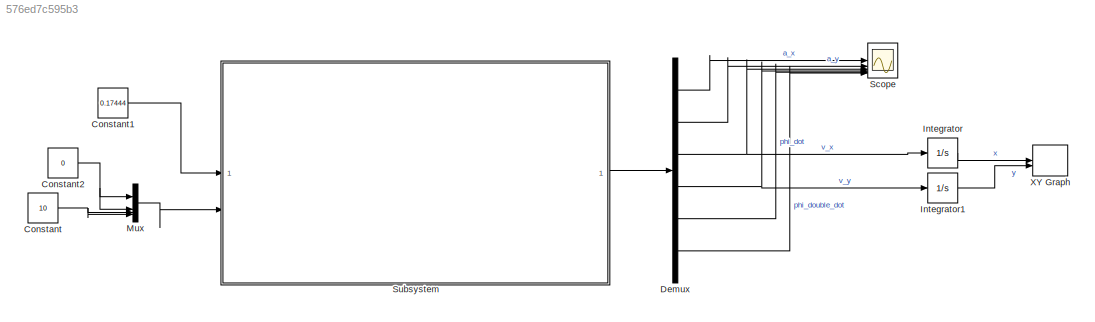
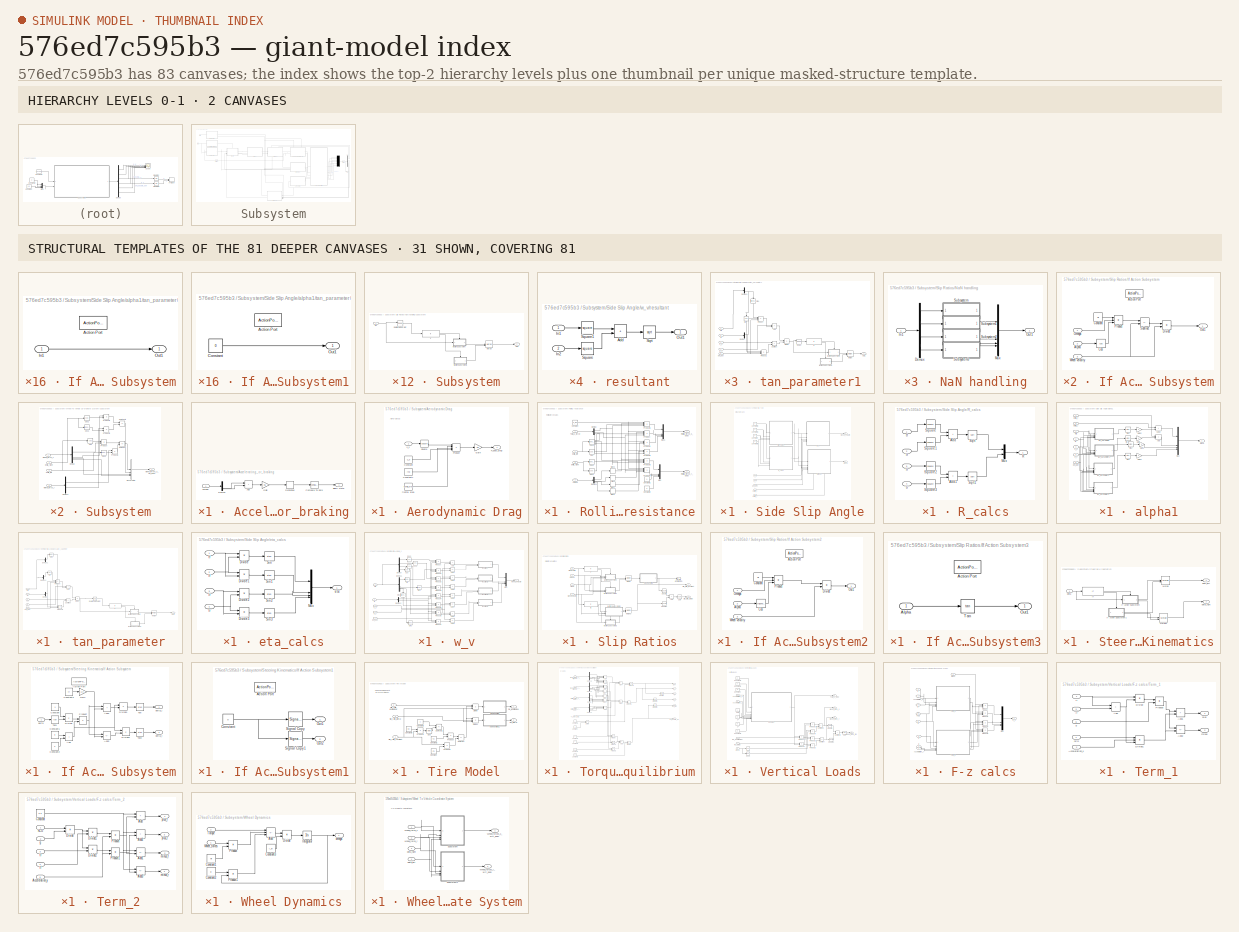
[diagram: thumbnail index - top-2 hierarchy levels (2 canvases) + 31 structural-template representatives of the remaining 81 canvases]
MODEL slx_576ed7c595b3
KIND model
CONFIG AbsTol = auto
CONFIG EnableMultiTasking = off
CONFIG FixedStep = auto
CONFIG MaxStep = 0.05
CONFIG MinStep = auto
CONFIG RelTol = 1e-3
CONFIG SampleTimeConstraint = Unconstrained
CONFIG SolverName = ode45
CONFIG StartTime = 0.0
CONFIG StopTime = 10
WORKSPACE source: external: MATLAB File  (data not in archive)
BLOCK [Constant] Constant
  Value = 10
BLOCK [Constant] Constant1
  Value = 0.17444
BLOCK [Constant] Constant2
  Value = 0
BLOCK [Demux] Demux
  Outputs = 6
BLOCK [Integrator] Integrator
BLOCK [Integrator] Integrator1
BLOCK [Mux] Mux
  DisplayOption = bar
BLOCK [Scope] Scope
  Floating = off
  NumInputPorts = 6
  ScopeSpecificationString = Simulink.scopes.TimeScopeBlockCfg('CurrentConfiguration', extmgr.ConfigurationSet(extmgr.Configuration('Core','General UI',true),extmgr.Configuration('Core','Source UI',true),extmgr.Configuration('Sources','WiredSimulink',true),extmgr.Configuration('Visuals','Time Domain',true,'SerializedDisplays',{struct('MinYLimReal','-1.00000','MaxYLimReal','1.00000','YLabelReal','','MinYLimMag','0.00000','MaxY...<+5350ch>
BLOCK [SubSystem] Subsystem
BLOCK [SubSystem] Subsystem/Accelerating_or_braking
BLOCK [Sum] Subsystem/Accelerating_or_braking/Add
  IconShape = rectangular
BLOCK [Outport] Subsystem/Accelerating_or_braking/Binary state
BLOCK [Reference] Subsystem/Accelerating_or_braking/Compare To Zero  REF=simulink/Logic and Bit
Operations/Compare
To Zero
  SourceBlock = simulink/Logic and Bit\nOperations/Compare\nTo Zero
  SourceType = Compare To Zero
BLOCK [Demux] Subsystem/Accelerating_or_braking/Demux
BLOCK [Derivative] Subsystem/Accelerating_or_braking/Derivative
BLOCK [Gain] Subsystem/Accelerating_or_braking/Gain
  Gain = 0.5
BLOCK [Inport] Subsystem/Accelerating_or_braking/Torque
BLOCK [SubSystem] Subsystem/Aerodynamic Drag
BLOCK [Constant] Subsystem/Aerodynamic Drag/Constant
  Value = C_d
BLOCK [Constant] Subsystem/Aerodynamic Drag/Constant1
  Value = rho
BLOCK [Outport] Subsystem/Aerodynamic Drag/F_body_drag
BLOCK [Gain] Subsystem/Aerodynamic Drag/Gain
  Gain = 0.5
BLOCK [Product] Subsystem/Aerodynamic Drag/Product
  Inputs = 4
BLOCK [Math] Subsystem/Aerodynamic Drag/Square
  Operator = square
BLOCK [Constant] Subsystem/Aerodynamic Drag/frontal area
  Value = frontal_area
BLOCK [Inport] Subsystem/Aerodynamic Drag/v_x
BLOCK [Demux] Subsystem/Demux
  Outputs = 6
BLOCK [Mux] Subsystem/Mux
  DisplayOption = signals
  Inputs = 6
BLOCK [Outport] Subsystem/Out1
BLOCK [SubSystem] Subsystem/Rolling resistance
BLOCK [Constant] Subsystem/Rolling resistance/Constant
  Value = C_roll
BLOCK [Constant] Subsystem/Rolling resistance/Constant1
  Value = 0
BLOCK [Constant] Subsystem/Rolling resistance/Constant2
  Value = 0
BLOCK [Trigonometry] Subsystem/Rolling resistance/Cos
  Operator = cos
BLOCK [Trigonometry] Subsystem/Rolling resistance/Cos1
  Operator = cos
BLOCK [Trigonometry] Subsystem/Rolling resistance/Cos2
BLOCK [Trigonometry] Subsystem/Rolling resistance/Cos3
BLOCK [Demux] Subsystem/Rolling resistance/Demux
BLOCK [Demux] Subsystem/Rolling resistance/Demux1
BLOCK [Mux] Subsystem/Rolling resistance/Mux
  DisplayOption = bar
BLOCK [Mux] Subsystem/Rolling resistance/Mux1
  DisplayOption = bar
BLOCK [Product] Subsystem/Rolling resistance/Product
  Inputs = 4
BLOCK [Product] Subsystem/Rolling resistance/Product1
  Inputs = 3
BLOCK [Product] Subsystem/Rolling resistance/Product2
  Inputs = 3
BLOCK [Product] Subsystem/Rolling resistance/Product3
  Inputs = 4
BLOCK [Product] Subsystem/Rolling resistance/Product4
  Inputs = 4
BLOCK [Product] Subsystem/Rolling resistance/Product5
  Inputs = 4
BLOCK [Outport] Subsystem/Rolling resistance/Rolling_force_x_body
BLOCK [Outport] Subsystem/Rolling resistance/Rolling_force_y_body
  Port = 2
BLOCK [Signum] Subsystem/Rolling resistance/Sign
BLOCK [Signum] Subsystem/Rolling resistance/Sign1
BLOCK [Signum] Subsystem/Rolling resistance/Sign2
BLOCK [Signum] Subsystem/Rolling resistance/Sign3
BLOCK [Inport] Subsystem/Rolling resistance/Total_z_force
BLOCK [Inport] Subsystem/Rolling resistance/delta_left
  Port = 2
BLOCK [Inport] Subsystem/Rolling resistance/delta_right
  Port = 3
BLOCK [Inport] Subsystem/Rolling resistance/omega
  Port = 4
BLOCK [SubSystem] Subsystem/Side Slip Angle
BLOCK [Constant] Subsystem/Side Slip Angle/Constant
  Value = lr
BLOCK [Constant] Subsystem/Side Slip Angle/Constant1
  Value = lf
BLOCK [Constant] Subsystem/Side Slip Angle/Constant2
  Value = tf
BLOCK [Constant] Subsystem/Side Slip Angle/Constant3
  Value = tr
BLOCK [SubSystem] Subsystem/Side Slip Angle/R_calcs
BLOCK [Sum] Subsystem/Side Slip Angle/R_calcs/Add
  IconShape = rectangular
BLOCK [Sum] Subsystem/Side Slip Angle/R_calcs/Add1
  IconShape = rectangular
BLOCK [Mux] Subsystem/Side Slip Angle/R_calcs/Mux
  DisplayOption = bar
  Inputs = 2
BLOCK [Outport] Subsystem/Side Slip Angle/R_calcs/R
BLOCK [Sqrt] Subsystem/Side Slip Angle/R_calcs/Sqrt
BLOCK [Sqrt] Subsystem/Side Slip Angle/R_calcs/Sqrt1
BLOCK [Math] Subsystem/Side Slip Angle/R_calcs/Square
  Operator = square
BLOCK [Math] Subsystem/Side Slip Angle/R_calcs/Square1
  Operator = square
BLOCK [Math] Subsystem/Side Slip Angle/R_calcs/Square2
  Operator = square
BLOCK [Math] Subsystem/Side Slip Angle/R_calcs/Square3
  Operator = square
BLOCK [Inport] Subsystem/Side Slip Angle/R_calcs/lf
  Port = 2
BLOCK [Inport] Subsystem/Side Slip Angle/R_calcs/lr
  Port = 3
BLOCK [Inport] Subsystem/Side Slip Angle/R_calcs/tf
BLOCK [Inport] Subsystem/Side Slip Angle/R_calcs/tr
  Port = 4
BLOCK [Outport] Subsystem/Side Slip Angle/Wheel_velocity
  Port = 2
BLOCK [Outport] Subsystem/Side Slip Angle/alpha
BLOCK [SubSystem] Subsystem/Side Slip Angle/alpha1
  PortSchema = {"entries":[{"content":{"sides":[{"content":{"connectorIds":["In1","In2","In3","In4","In5"]},"type":"ConnectorPlacement.EquallySpacedRectSide","uuid":"8658fdab-e6e4-4ff2-af71-2cb52fa4d16f"},{"content":{"connectorIds":["Out1"],"side":"RIGHT"},"type":"ConnectorPlacement.EquallySpacedRectSide","uuid":"0155b14f-1735-45fb-b67c-bf6dca8000dd"},{"content":{"side":"TOP"},"type":"ConnectorPlacement.EquallyS...<+401ch>
BLOCK [Sum] Subsystem/Side Slip Angle/alpha1/Add
  IconShape = rectangular
BLOCK [Sum] Subsystem/Side Slip Angle/alpha1/Add1
  IconShape = rectangular
BLOCK [Gain] Subsystem/Side Slip Angle/alpha1/Gain
  Gain = -1
BLOCK [Gain] Subsystem/Side Slip Angle/alpha1/Gain1
  Gain = -1
BLOCK [Gain] Subsystem/Side Slip Angle/alpha1/Gain2
  Gain = -1
BLOCK [Gain] Subsystem/Side Slip Angle/alpha1/Gain3
  Gain = -1
BLOCK [Mux] Subsystem/Side Slip Angle/alpha1/Mux
  DisplayOption = bar
BLOCK [Inport] Subsystem/Side Slip Angle/alpha1/R
  Port = 2
BLOCK [Trigonometry] Subsystem/Side Slip Angle/alpha1/Sin
  Operator = atan
BLOCK [Trigonometry] Subsystem/Side Slip Angle/alpha1/Sin1
  Operator = atan
BLOCK [Trigonometry] Subsystem/Side Slip Angle/alpha1/Sin2
  Operator = atan
BLOCK [Trigonometry] Subsystem/Side Slip Angle/alpha1/Sin3
  Operator = atan
BLOCK [Outport] Subsystem/Side Slip Angle/alpha1/alpha
BLOCK [Inport] Subsystem/Side Slip Angle/alpha1/delta_l
  Port = 6
BLOCK [Inport] Subsystem/Side Slip Angle/alpha1/delta_r
  Port = 7
BLOCK [Inport] Subsystem/Side Slip Angle/alpha1/eta
BLOCK [Inport] Subsystem/Side Slip Angle/alpha1/phi_dot
  Port = 5
BLOCK [SubSystem] Subsystem/Side Slip Angle/alpha1/tan_parameter
BLOCK [Sum] Subsystem/Side Slip Angle/alpha1/tan_parameter/Add
  IconShape = rectangular
BLOCK [Demux] Subsystem/Side Slip Angle/alpha1/tan_parameter/Demux
  Outputs = 2
BLOCK [Demux] Subsystem/Side Slip Angle/alpha1/tan_parameter/Demux1
BLOCK [Demux] Subsystem/Side Slip Angle/alpha1/tan_parameter/Demux2
BLOCK [Product] Subsystem/Side Slip Angle/alpha1/tan_parameter/Divide
  Inputs = */
BLOCK [If] Subsystem/Side Slip Angle/alpha1/tan_parameter/If
  IfExpression = u1 == 0
BLOCK [SubSystem] Subsystem/Side Slip Angle/alpha1/tan_parameter/If Action Subsystem
  TreatAsAtomicUnit = on
BLOCK [ActionPort] Subsystem/Side Slip Angle/alpha1/tan_parameter/If Action Subsystem/Action Port
  ActionPortLabel = if(u1 == 0)
  InitializeStates = reset
  PropagateVarSize = During execution
BLOCK [Inport] Subsystem/Side Slip Angle/alpha1/tan_parameter/If Action Subsystem/In1
BLOCK [Outport] Subsystem/Side Slip Angle/alpha1/tan_parameter/If Action Subsystem/Out1
BLOCK [SubSystem] Subsystem/Side Slip Angle/alpha1/tan_parameter/If Action Subsystem1
  TreatAsAtomicUnit = on
BLOCK [ActionPort] Subsystem/Side Slip Angle/alpha1/tan_parameter/If Action Subsystem1/Action Port
  ActionPortLabel = else
BLOCK [Constant] Subsystem/Side Slip Angle/alpha1/tan_parameter/If Action Subsystem1/Constant
  Value = 0
BLOCK [Outport] Subsystem/Side Slip Angle/alpha1/tan_parameter/If Action Subsystem1/Out1
BLOCK [Merge] Subsystem/Side Slip Angle/alpha1/tan_parameter/Merge
BLOCK [Outport] Subsystem/Side Slip Angle/alpha1/tan_parameter/Out1
BLOCK [Product] Subsystem/Side Slip Angle/alpha1/tan_parameter/Product
  Inputs = 3
BLOCK [Product] Subsystem/Side Slip Angle/alpha1/tan_parameter/Product1
  Inputs = 3
BLOCK [Inport] Subsystem/Side Slip Angle/alpha1/tan_parameter/R
  Port = 2
BLOCK [RelationalOperator] Subsystem/Side Slip Angle/alpha1/tan_parameter/Relational Operator
  InputSameDT = off
  Operator = isNaN
  OutDataTypeStr = boolean
  RndMeth = Simplest
BLOCK [Trigonometry] Subsystem/Side Slip Angle/alpha1/tan_parameter/Sin
  Operator = cos
BLOCK [Trigonometry] Subsystem/Side Slip Angle/alpha1/tan_parameter/Sin1
BLOCK [Sum] Subsystem/Side Slip Angle/alpha1/tan_parameter/Subtract
  IconShape = rectangular
  Inputs = +-
BLOCK [Inport] Subsystem/Side Slip Angle/alpha1/tan_parameter/eta
BLOCK [Inport] Subsystem/Side Slip Angle/alpha1/tan_parameter/phi_dot
  Port = 5
BLOCK [Inport] Subsystem/Side Slip Angle/alpha1/tan_parameter/v_x
  Port = 4
BLOCK [Inport] Subsystem/Side Slip Angle/alpha1/tan_parameter/v_y
  Port = 3
BLOCK [SubSystem] Subsystem/Side Slip Angle/alpha1/tan_parameter1
BLOCK [Sum] Subsystem/Side Slip Angle/alpha1/tan_parameter1/Add
  IconShape = rectangular
BLOCK [Demux] Subsystem/Side Slip Angle/alpha1/tan_parameter1/Demux
  Outputs = 2
BLOCK [Demux] Subsystem/Side Slip Angle/alpha1/tan_parameter1/Demux1
BLOCK [Product] Subsystem/Side Slip Angle/alpha1/tan_parameter1/Divide
  Inputs = */
BLOCK [If] Subsystem/Side Slip Angle/alpha1/tan_parameter1/If
  IfExpression = u1 == 0
BLOCK [SubSystem] Subsystem/Side Slip Angle/alpha1/tan_parameter1/If Action Subsystem
  TreatAsAtomicUnit = on
BLOCK [ActionPort] Subsystem/Side Slip Angle/alpha1/tan_parameter1/If Action Subsystem/Action Port
  ActionPortLabel = if(u1 == 0)
BLOCK [Inport] Subsystem/Side Slip Angle/alpha1/tan_parameter1/If Action Subsystem/In1
BLOCK [Outport] Subsystem/Side Slip Angle/alpha1/tan_parameter1/If Action Subsystem/Out1
BLOCK [SubSystem] Subsystem/Side Slip Angle/alpha1/tan_parameter1/If Action Subsystem1
  TreatAsAtomicUnit = on
BLOCK [ActionPort] Subsystem/Side Slip Angle/alpha1/tan_parameter1/If Action Subsystem1/Action Port
  ActionPortLabel = else
BLOCK [Constant] Subsystem/Side Slip Angle/alpha1/tan_parameter1/If Action Subsystem1/Constant
  Value = 0
BLOCK [Outport] Subsystem/Side Slip Angle/alpha1/tan_parameter1/If Action Subsystem1/Out1
BLOCK [RelationalOperator] Subsystem/Side Slip Angle/alpha1/tan_parameter1/IsNaN
  InputSameDT = off
  Operator = isNaN
  OutDataTypeStr = boolean
  RndMeth = Simplest
BLOCK [Merge] Subsystem/Side Slip Angle/alpha1/tan_parameter1/Merge
BLOCK [Outport] Subsystem/Side Slip Angle/alpha1/tan_parameter1/Out1
BLOCK [Product] Subsystem/Side Slip Angle/alpha1/tan_parameter1/Product
  Inputs = 3
BLOCK [Product] Subsystem/Side Slip Angle/alpha1/tan_parameter1/Product1
  Inputs = 3
BLOCK [Inport] Subsystem/Side Slip Angle/alpha1/tan_parameter1/R
  Port = 2
BLOCK [Trigonometry] Subsystem/Side Slip Angle/alpha1/tan_parameter1/Sin
  NameLocation = left
  Operator = cos
BLOCK [Trigonometry] Subsystem/Side Slip Angle/alpha1/tan_parameter1/Sin1
  NameLocation = left
BLOCK [Sum] Subsystem/Side Slip Angle/alpha1/tan_parameter1/Subtract
  IconShape = rectangular
BLOCK [Inport] Subsystem/Side Slip Angle/alpha1/tan_parameter1/eta
BLOCK [Inport] Subsystem/Side Slip Angle/alpha1/tan_parameter1/phi_dot
  Port = 5
BLOCK [Inport] Subsystem/Side Slip Angle/alpha1/tan_parameter1/v_x
  Port = 4
BLOCK [Inport] Subsystem/Side Slip Angle/alpha1/tan_parameter1/v_y
  Port = 3
BLOCK [SubSystem] Subsystem/Side Slip Angle/alpha1/tan_parameter2
BLOCK [Sum] Subsystem/Side Slip Angle/alpha1/tan_parameter2/Add
  IconShape = rectangular
  Inputs = +-
BLOCK [Demux] Subsystem/Side Slip Angle/alpha1/tan_parameter2/Demux
  Outputs = 2
BLOCK [Demux] Subsystem/Side Slip Angle/alpha1/tan_parameter2/Demux1
BLOCK [Product] Subsystem/Side Slip Angle/alpha1/tan_parameter2/Divide
  Inputs = */
BLOCK [If] Subsystem/Side Slip Angle/alpha1/tan_parameter2/If
  IfExpression = u1 == 0
BLOCK [SubSystem] Subsystem/Side Slip Angle/alpha1/tan_parameter2/If Action Subsystem
  TreatAsAtomicUnit = on
BLOCK [ActionPort] Subsystem/Side Slip Angle/alpha1/tan_parameter2/If Action Subsystem/Action Port
  ActionPortLabel = if(u1 == 0)
BLOCK [Inport] Subsystem/Side Slip Angle/alpha1/tan_parameter2/If Action Subsystem/In1
BLOCK [Outport] Subsystem/Side Slip Angle/alpha1/tan_parameter2/If Action Subsystem/Out1
BLOCK [SubSystem] Subsystem/Side Slip Angle/alpha1/tan_parameter2/If Action Subsystem1
  TreatAsAtomicUnit = on
BLOCK [ActionPort] Subsystem/Side Slip Angle/alpha1/tan_parameter2/If Action Subsystem1/Action Port
  ActionPortLabel = else
BLOCK [Constant] Subsystem/Side Slip Angle/alpha1/tan_parameter2/If Action Subsystem1/Constant
  Value = 0
BLOCK [Outport] Subsystem/Side Slip Angle/alpha1/tan_parameter2/If Action Subsystem1/Out1
BLOCK [RelationalOperator] Subsystem/Side Slip Angle/alpha1/tan_parameter2/IsNaN
  InputSameDT = off
  Operator = isNaN
  OutDataTypeStr = boolean
  RndMeth = Simplest
BLOCK [Merge] Subsystem/Side Slip Angle/alpha1/tan_parameter2/Merge
BLOCK [Outport] Subsystem/Side Slip Angle/alpha1/tan_parameter2/Out1
BLOCK [Product] Subsystem/Side Slip Angle/alpha1/tan_parameter2/Product
  Inputs = 3
BLOCK [Product] Subsystem/Side Slip Angle/alpha1/tan_parameter2/Product1
  Inputs = 3
BLOCK [Inport] Subsystem/Side Slip Angle/alpha1/tan_parameter2/R
  Port = 2
BLOCK [Trigonometry] Subsystem/Side Slip Angle/alpha1/tan_parameter2/Sin
  NameLocation = left
  Operator = cos
BLOCK [Trigonometry] Subsystem/Side Slip Angle/alpha1/tan_parameter2/Sin1
  NameLocation = left
BLOCK [Sum] Subsystem/Side Slip Angle/alpha1/tan_parameter2/Subtract
  IconShape = rectangular
  Inputs = +-
BLOCK [Inport] Subsystem/Side Slip Angle/alpha1/tan_parameter2/eta
BLOCK [Inport] Subsystem/Side Slip Angle/alpha1/tan_parameter2/phi_dot
  Port = 5
BLOCK [Inport] Subsystem/Side Slip Angle/alpha1/tan_parameter2/v_x
  Port = 4
BLOCK [Inport] Subsystem/Side Slip Angle/alpha1/tan_parameter2/v_y
  Port = 3
BLOCK [SubSystem] Subsystem/Side Slip Angle/alpha1/tan_parameter3
BLOCK [Sum] Subsystem/Side Slip Angle/alpha1/tan_parameter3/Add
  IconShape = rectangular
  Inputs = +-
BLOCK [Demux] Subsystem/Side Slip Angle/alpha1/tan_parameter3/Demux
  Outputs = 2
BLOCK [Demux] Subsystem/Side Slip Angle/alpha1/tan_parameter3/Demux1
BLOCK [Product] Subsystem/Side Slip Angle/alpha1/tan_parameter3/Divide
  Inputs = */
BLOCK [If] Subsystem/Side Slip Angle/alpha1/tan_parameter3/If
  IfExpression = u1 == 0
BLOCK [SubSystem] Subsystem/Side Slip Angle/alpha1/tan_parameter3/If Action Subsystem
  TreatAsAtomicUnit = on
BLOCK [ActionPort] Subsystem/Side Slip Angle/alpha1/tan_parameter3/If Action Subsystem/Action Port
  ActionPortLabel = if(u1 == 0)
BLOCK [Inport] Subsystem/Side Slip Angle/alpha1/tan_parameter3/If Action Subsystem/In1
BLOCK [Outport] Subsystem/Side Slip Angle/alpha1/tan_parameter3/If Action Subsystem/Out1
BLOCK [SubSystem] Subsystem/Side Slip Angle/alpha1/tan_parameter3/If Action Subsystem1
  TreatAsAtomicUnit = on
BLOCK [ActionPort] Subsystem/Side Slip Angle/alpha1/tan_parameter3/If Action Subsystem1/Action Port
  ActionPortLabel = else
BLOCK [Constant] Subsystem/Side Slip Angle/alpha1/tan_parameter3/If Action Subsystem1/Constant
  Value = 0
BLOCK [Outport] Subsystem/Side Slip Angle/alpha1/tan_parameter3/If Action Subsystem1/Out1
BLOCK [RelationalOperator] Subsystem/Side Slip Angle/alpha1/tan_parameter3/IsNaN
  InputSameDT = off
  Operator = isNaN
  OutDataTypeStr = boolean
  RndMeth = Simplest
BLOCK [Merge] Subsystem/Side Slip Angle/alpha1/tan_parameter3/Merge
BLOCK [Outport] Subsystem/Side Slip Angle/alpha1/tan_parameter3/Out1
BLOCK [Product] Subsystem/Side Slip Angle/alpha1/tan_parameter3/Product
  Inputs = 3
BLOCK [Product] Subsystem/Side Slip Angle/alpha1/tan_parameter3/Product1
  Inputs = 3
BLOCK [Inport] Subsystem/Side Slip Angle/alpha1/tan_parameter3/R
  Port = 2
BLOCK [Trigonometry] Subsystem/Side Slip Angle/alpha1/tan_parameter3/Sin
  NameLocation = left
  Operator = cos
BLOCK [Trigonometry] Subsystem/Side Slip Angle/alpha1/tan_parameter3/Sin1
  NameLocation = left
BLOCK [Sum] Subsystem/Side Slip Angle/alpha1/tan_parameter3/Subtract
  IconShape = rectangular
BLOCK [Inport] Subsystem/Side Slip Angle/alpha1/tan_parameter3/eta
BLOCK [Inport] Subsystem/Side Slip Angle/alpha1/tan_parameter3/phi_dot
  Port = 5
BLOCK [Inport] Subsystem/Side Slip Angle/alpha1/tan_parameter3/v_x
  Port = 4
BLOCK [Inport] Subsystem/Side Slip Angle/alpha1/tan_parameter3/v_y
  Port = 3
BLOCK [Inport] Subsystem/Side Slip Angle/alpha1/v_x
  Port = 3
BLOCK [Inport] Subsystem/Side Slip Angle/alpha1/v_y
  Port = 4
BLOCK [Inport] Subsystem/Side Slip Angle/delta_l
  Port = 4
BLOCK [Inport] Subsystem/Side Slip Angle/delta_r
  Port = 5
BLOCK [SubSystem] Subsystem/Side Slip Angle/eta_calcs
BLOCK [Product] Subsystem/Side Slip Angle/eta_calcs/Divide
  Inputs = */
BLOCK [Product] Subsystem/Side Slip Angle/eta_calcs/Divide1
  Inputs = */
BLOCK [Product] Subsystem/Side Slip Angle/eta_calcs/Divide2
  Inputs = */
BLOCK [Product] Subsystem/Side Slip Angle/eta_calcs/Divide3
  Inputs = */
BLOCK [Mux] Subsystem/Side Slip Angle/eta_calcs/Mux
  DisplayOption = bar
BLOCK [Trigonometry] Subsystem/Side Slip Angle/eta_calcs/Sin
  Operator = atan
BLOCK [Trigonometry] Subsystem/Side Slip Angle/eta_calcs/Sin1
  Operator = atan
BLOCK [Trigonometry] Subsystem/Side Slip Angle/eta_calcs/Sin2
  Operator = atan
BLOCK [Trigonometry] Subsystem/Side Slip Angle/eta_calcs/Sin3
  Operator = atan
BLOCK [Outport] Subsystem/Side Slip Angle/eta_calcs/eta
BLOCK [Inport] Subsystem/Side Slip Angle/eta_calcs/lf
  Port = 2
BLOCK [Inport] Subsystem/Side Slip Angle/eta_calcs/lr
  Port = 3
BLOCK [Inport] Subsystem/Side Slip Angle/eta_calcs/tf
BLOCK [Inport] Subsystem/Side Slip Angle/eta_calcs/tr
  Port = 4
BLOCK [Inport] Subsystem/Side Slip Angle/phi_dot
  Port = 3
BLOCK [Inport] Subsystem/Side Slip Angle/v_x
BLOCK [Inport] Subsystem/Side Slip Angle/v_y
  Port = 2
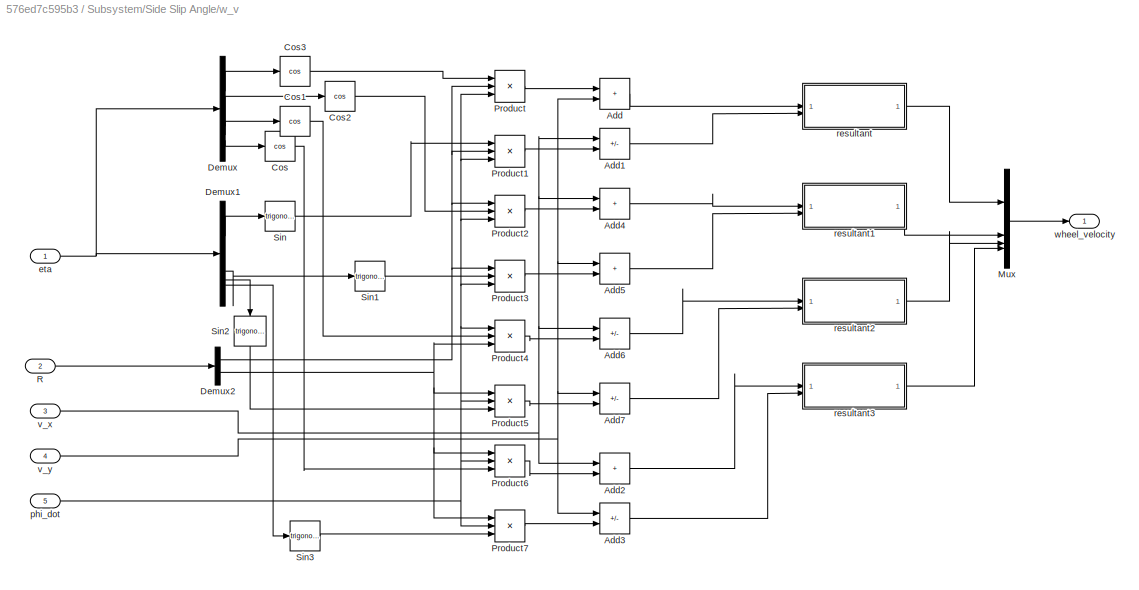
BLOCK [SubSystem] Subsystem/Side Slip Angle/w_v
BLOCK [Sum] Subsystem/Side Slip Angle/w_v/Add
  IconShape = rectangular
BLOCK [Sum] Subsystem/Side Slip Angle/w_v/Add1
  IconShape = rectangular
  Inputs = +-
BLOCK [Sum] Subsystem/Side Slip Angle/w_v/Add2
  IconShape = rectangular
BLOCK [Sum] Subsystem/Side Slip Angle/w_v/Add3
  IconShape = rectangular
  Inputs = +-
BLOCK [Sum] Subsystem/Side Slip Angle/w_v/Add4
  IconShape = rectangular
BLOCK [Sum] Subsystem/Side Slip Angle/w_v/Add5
  IconShape = rectangular
BLOCK [Sum] Subsystem/Side Slip Angle/w_v/Add6
  IconShape = rectangular
  Inputs = +-
BLOCK [Sum] Subsystem/Side Slip Angle/w_v/Add7
  IconShape = rectangular
  Inputs = +-
BLOCK [Trigonometry] Subsystem/Side Slip Angle/w_v/Cos
  Operator = cos
BLOCK [Trigonometry] Subsystem/Side Slip Angle/w_v/Cos1
  Operator = cos
BLOCK [Trigonometry] Subsystem/Side Slip Angle/w_v/Cos2
  Operator = cos
BLOCK [Trigonometry] Subsystem/Side Slip Angle/w_v/Cos3
  Operator = cos
BLOCK [Demux] Subsystem/Side Slip Angle/w_v/Demux
BLOCK [Demux] Subsystem/Side Slip Angle/w_v/Demux1
BLOCK [Demux] Subsystem/Side Slip Angle/w_v/Demux2
  Outputs = 2
BLOCK [Mux] Subsystem/Side Slip Angle/w_v/Mux
  DisplayOption = bar
BLOCK [Product] Subsystem/Side Slip Angle/w_v/Product
  Inputs = 3
BLOCK [Product] Subsystem/Side Slip Angle/w_v/Product1
  Inputs = 3
BLOCK [Product] Subsystem/Side Slip Angle/w_v/Product2
  Inputs = 3
BLOCK [Product] Subsystem/Side Slip Angle/w_v/Product3
  Inputs = 3
BLOCK [Product] Subsystem/Side Slip Angle/w_v/Product4
  Inputs = 3
BLOCK [Product] Subsystem/Side Slip Angle/w_v/Product5
  Inputs = 3
BLOCK [Product] Subsystem/Side Slip Angle/w_v/Product6
  Inputs = 3
BLOCK [Product] Subsystem/Side Slip Angle/w_v/Product7
  Inputs = 3
BLOCK [Inport] Subsystem/Side Slip Angle/w_v/R
  Port = 2
BLOCK [Trigonometry] Subsystem/Side Slip Angle/w_v/Sin
BLOCK [Trigonometry] Subsystem/Side Slip Angle/w_v/Sin1
BLOCK [Trigonometry] Subsystem/Side Slip Angle/w_v/Sin2
  NameLocation = left
BLOCK [Trigonometry] Subsystem/Side Slip Angle/w_v/Sin3
BLOCK [Inport] Subsystem/Side Slip Angle/w_v/eta
BLOCK [Inport] Subsystem/Side Slip Angle/w_v/phi_dot
  Port = 5
BLOCK [SubSystem] Subsystem/Side Slip Angle/w_v/resultant
BLOCK [Sum] Subsystem/Side Slip Angle/w_v/resultant/Add
  IconShape = rectangular
BLOCK [Inport] Subsystem/Side Slip Angle/w_v/resultant/In1
BLOCK [Inport] Subsystem/Side Slip Angle/w_v/resultant/In2
  Port = 2
BLOCK [Outport] Subsystem/Side Slip Angle/w_v/resultant/Out1
BLOCK [Sqrt] Subsystem/Side Slip Angle/w_v/resultant/Sqrt
BLOCK [Math] Subsystem/Side Slip Angle/w_v/resultant/Square
  Operator = square
BLOCK [Math] Subsystem/Side Slip Angle/w_v/resultant/Square1
  Operator = square
BLOCK [SubSystem] Subsystem/Side Slip Angle/w_v/resultant1
BLOCK [Sum] Subsystem/Side Slip Angle/w_v/resultant1/Add
  IconShape = rectangular
BLOCK [Inport] Subsystem/Side Slip Angle/w_v/resultant1/In1
BLOCK [Inport] Subsystem/Side Slip Angle/w_v/resultant1/In2
  Port = 2
BLOCK [Outport] Subsystem/Side Slip Angle/w_v/resultant1/Out1
BLOCK [Sqrt] Subsystem/Side Slip Angle/w_v/resultant1/Sqrt
BLOCK [Math] Subsystem/Side Slip Angle/w_v/resultant1/Square
  Operator = square
BLOCK [Math] Subsystem/Side Slip Angle/w_v/resultant1/Square1
  Operator = square
BLOCK [SubSystem] Subsystem/Side Slip Angle/w_v/resultant2
BLOCK [Sum] Subsystem/Side Slip Angle/w_v/resultant2/Add
  IconShape = rectangular
BLOCK [Inport] Subsystem/Side Slip Angle/w_v/resultant2/In1
BLOCK [Inport] Subsystem/Side Slip Angle/w_v/resultant2/In2
  Port = 2
BLOCK [Outport] Subsystem/Side Slip Angle/w_v/resultant2/Out1
BLOCK [Sqrt] Subsystem/Side Slip Angle/w_v/resultant2/Sqrt
BLOCK [Math] Subsystem/Side Slip Angle/w_v/resultant2/Square
  Operator = square
BLOCK [Math] Subsystem/Side Slip Angle/w_v/resultant2/Square1
  Operator = square
BLOCK [SubSystem] Subsystem/Side Slip Angle/w_v/resultant3
BLOCK [Sum] Subsystem/Side Slip Angle/w_v/resultant3/Add
  IconShape = rectangular
BLOCK [Inport] Subsystem/Side Slip Angle/w_v/resultant3/In1
BLOCK [Inport] Subsystem/Side Slip Angle/w_v/resultant3/In2
  Port = 2
BLOCK [Outport] Subsystem/Side Slip Angle/w_v/resultant3/Out1
BLOCK [Sqrt] Subsystem/Side Slip Angle/w_v/resultant3/Sqrt
BLOCK [Math] Subsystem/Side Slip Angle/w_v/resultant3/Square
  Operator = square
BLOCK [Math] Subsystem/Side Slip Angle/w_v/resultant3/Square1
  Operator = square
BLOCK [Inport] Subsystem/Side Slip Angle/w_v/v_x
  Port = 3
BLOCK [Inport] Subsystem/Side Slip Angle/w_v/v_y
  Port = 4
BLOCK [Outport] Subsystem/Side Slip Angle/w_v/wheel_velocity
BLOCK [SubSystem] Subsystem/Slip Ratios
  PortSchema = {"entries":[{"content":{"sides":[{"content":{"connectorIds":["In1","In2","In3"]},"type":"ConnectorPlacement.EquallySpacedRectSide","uuid":"f68f1183-9c60-479b-925c-3d4ffcaa1183"},{"content":{"connectorIds":["Out1","Out2","Out3"],"side":"RIGHT"},"type":"ConnectorPlacement.EquallySpacedRectSide","uuid":"3ccc78e5-55f6-4f64-bd15-35f9b9c5843d"},{"content":{"connectorIds":["In4"],"side":"TOP"},"type":"Co...<+271ch>
BLOCK [Sum] Subsystem/Slip Ratios/Add
  IconShape = rectangular
BLOCK [Inport] Subsystem/Slip Ratios/Alpha
  Port = 2
BLOCK [Inport] Subsystem/Slip Ratios/Binary state
  Port = 4
BLOCK [If] Subsystem/Slip Ratios/If
  IfExpression = u1 == 0
BLOCK [SubSystem] Subsystem/Slip Ratios/If Action Subsystem
  TreatAsAtomicUnit = on
BLOCK [ActionPort] Subsystem/Slip Ratios/If Action Subsystem/Action Port
  ActionPortLabel = if(u1 == 0)
BLOCK [Inport] Subsystem/Slip Ratios/If Action Subsystem/Alpha
  Port = 2
BLOCK [Constant] Subsystem/Slip Ratios/If Action Subsystem/Constant
  Value = wr
BLOCK [Trigonometry] Subsystem/Slip Ratios/If Action Subsystem/Cos
  Operator = cos
BLOCK [Product] Subsystem/Slip Ratios/If Action Subsystem/Divide
  Inputs = */
BLOCK [Inport] Subsystem/Slip Ratios/If Action Subsystem/Omega
BLOCK [Outport] Subsystem/Slip Ratios/If Action Subsystem/Out1
BLOCK [Product] Subsystem/Slip Ratios/If Action Subsystem/Product
  Inputs = 3
BLOCK [Sum] Subsystem/Slip Ratios/If Action Subsystem/Subtract
  IconShape = rectangular
  Inputs = +-
BLOCK [Inport] Subsystem/Slip Ratios/If Action Subsystem/Wheel velocity
  Port = 3
BLOCK [SubSystem] Subsystem/Slip Ratios/If Action Subsystem1
  TreatAsAtomicUnit = on
BLOCK [ActionPort] Subsystem/Slip Ratios/If Action Subsystem1/Action Port
  ActionPortLabel = else
BLOCK [Inport] Subsystem/Slip Ratios/If Action Subsystem1/Alpha
  Port = 2
BLOCK [Constant] Subsystem/Slip Ratios/If Action Subsystem1/Constant
  Value = wr
BLOCK [Trigonometry] Subsystem/Slip Ratios/If Action Subsystem1/Cos
  Operator = cos
BLOCK [Product] Subsystem/Slip Ratios/If Action Subsystem1/Divide
  Inputs = */
BLOCK [Inport] Subsystem/Slip Ratios/If Action Subsystem1/Omega
BLOCK [Outport] Subsystem/Slip Ratios/If Action Subsystem1/Out1
BLOCK [Product] Subsystem/Slip Ratios/If Action Subsystem1/Product
  Inputs = 3
BLOCK [Sum] Subsystem/Slip Ratios/If Action Subsystem1/Subtract
  IconShape = rectangular
  Inputs = +-
BLOCK [Inport] Subsystem/Slip Ratios/If Action Subsystem1/Wheel velocity
  Port = 3
BLOCK [SubSystem] Subsystem/Slip Ratios/If Action Subsystem2
  TreatAsAtomicUnit = on
BLOCK [ActionPort] Subsystem/Slip Ratios/If Action Subsystem2/Action Port
  ActionPortLabel = if(u1 == 0)
BLOCK [Inport] Subsystem/Slip Ratios/If Action Subsystem2/Alpha
  Port = 2
BLOCK [Constant] Subsystem/Slip Ratios/If Action Subsystem2/Constant
  Value = wr
BLOCK [Trigonometry] Subsystem/Slip Ratios/If Action Subsystem2/Cos
BLOCK [Product] Subsystem/Slip Ratios/If Action Subsystem2/Divide
  Inputs = */
BLOCK [Inport] Subsystem/Slip Ratios/If Action Subsystem2/Omega
BLOCK [Outport] Subsystem/Slip Ratios/If Action Subsystem2/Out1
BLOCK [Product] Subsystem/Slip Ratios/If Action Subsystem2/Product
  Inputs = 3
BLOCK [Inport] Subsystem/Slip Ratios/If Action Subsystem2/Wheel velocity
  Port = 3
BLOCK [SubSystem] Subsystem/Slip Ratios/If Action Subsystem3
  TreatAsAtomicUnit = on
BLOCK [ActionPort] Subsystem/Slip Ratios/If Action Subsystem3/Action Port
  ActionPortLabel = else
BLOCK [Inport] Subsystem/Slip Ratios/If Action Subsystem3/Alpha
BLOCK [Outport] Subsystem/Slip Ratios/If Action Subsystem3/Out1
BLOCK [Trigonometry] Subsystem/Slip Ratios/If Action Subsystem3/Tan
  Operator = tan
BLOCK [If] Subsystem/Slip Ratios/If1
  IfExpression = u1 == 0
BLOCK [Merge] Subsystem/Slip Ratios/Merge
BLOCK [Merge] Subsystem/Slip Ratios/Merge1
BLOCK [SubSystem] Subsystem/Slip Ratios/NaN handling
BLOCK [Demux] Subsystem/Slip Ratios/NaN handling/Demux
BLOCK [Inport] Subsystem/Slip Ratios/NaN handling/In1
BLOCK [Mux] Subsystem/Slip Ratios/NaN handling/Mux
  DisplayOption = bar
BLOCK [Outport] Subsystem/Slip Ratios/NaN handling/Out1
BLOCK [SubSystem] Subsystem/Slip Ratios/NaN handling/Subsystem
BLOCK [If] Subsystem/Slip Ratios/NaN handling/Subsystem/If
  IfExpression = u1 == 0
BLOCK [SubSystem] Subsystem/Slip Ratios/NaN handling/Subsystem/If Action Subsystem
  TreatAsAtomicUnit = on
BLOCK [ActionPort] Subsystem/Slip Ratios/NaN handling/Subsystem/If Action Subsystem/Action Port
  ActionPortLabel = if(u1 == 0)
  InitializeStates = reset
  PropagateVarSize = During execution
BLOCK [Inport] Subsystem/Slip Ratios/NaN handling/Subsystem/If Action Subsystem/In1
BLOCK [Outport] Subsystem/Slip Ratios/NaN handling/Subsystem/If Action Subsystem/Out1
BLOCK [SubSystem] Subsystem/Slip Ratios/NaN handling/Subsystem/If Action Subsystem1
  TreatAsAtomicUnit = on
BLOCK [ActionPort] Subsystem/Slip Ratios/NaN handling/Subsystem/If Action Subsystem1/Action Port
  ActionPortLabel = else
BLOCK [Constant] Subsystem/Slip Ratios/NaN handling/Subsystem/If Action Subsystem1/Constant
  Value = 0
BLOCK [Outport] Subsystem/Slip Ratios/NaN handling/Subsystem/If Action Subsystem1/Out1
BLOCK [Inport] Subsystem/Slip Ratios/NaN handling/Subsystem/In1
BLOCK [Merge] Subsystem/Slip Ratios/NaN handling/Subsystem/Merge
BLOCK [Outport] Subsystem/Slip Ratios/NaN handling/Subsystem/Out1
BLOCK [RelationalOperator] Subsystem/Slip Ratios/NaN handling/Subsystem/Relational Operator
  InputSameDT = off
  Operator = isNaN
  OutDataTypeStr = boolean
  RndMeth = Simplest
BLOCK [SubSystem] Subsystem/Slip Ratios/NaN handling/Subsystem1
BLOCK [If] Subsystem/Slip Ratios/NaN handling/Subsystem1/If
  IfExpression = u1 == 0
BLOCK [SubSystem] Subsystem/Slip Ratios/NaN handling/Subsystem1/If Action Subsystem
  TreatAsAtomicUnit = on
BLOCK [ActionPort] Subsystem/Slip Ratios/NaN handling/Subsystem1/If Action Subsystem/Action Port
  ActionPortLabel = if(u1 == 0)
  InitializeStates = reset
  PropagateVarSize = During execution
BLOCK [Inport] Subsystem/Slip Ratios/NaN handling/Subsystem1/If Action Subsystem/In1
BLOCK [Outport] Subsystem/Slip Ratios/NaN handling/Subsystem1/If Action Subsystem/Out1
BLOCK [SubSystem] Subsystem/Slip Ratios/NaN handling/Subsystem1/If Action Subsystem1
  TreatAsAtomicUnit = on
BLOCK [ActionPort] Subsystem/Slip Ratios/NaN handling/Subsystem1/If Action Subsystem1/Action Port
  ActionPortLabel = else
BLOCK [Constant] Subsystem/Slip Ratios/NaN handling/Subsystem1/If Action Subsystem1/Constant
  Value = 0
BLOCK [Outport] Subsystem/Slip Ratios/NaN handling/Subsystem1/If Action Subsystem1/Out1
BLOCK [Inport] Subsystem/Slip Ratios/NaN handling/Subsystem1/In1
BLOCK [Merge] Subsystem/Slip Ratios/NaN handling/Subsystem1/Merge
BLOCK [Outport] Subsystem/Slip Ratios/NaN handling/Subsystem1/Out1
BLOCK [RelationalOperator] Subsystem/Slip Ratios/NaN handling/Subsystem1/Relational Operator
  InputSameDT = off
  Operator = isNaN
  OutDataTypeStr = boolean
  RndMeth = Simplest
BLOCK [SubSystem] Subsystem/Slip Ratios/NaN handling/Subsystem2
BLOCK [If] Subsystem/Slip Ratios/NaN handling/Subsystem2/If
  IfExpression = u1 == 0
BLOCK [SubSystem] Subsystem/Slip Ratios/NaN handling/Subsystem2/If Action Subsystem
  TreatAsAtomicUnit = on
BLOCK [ActionPort] Subsystem/Slip Ratios/NaN handling/Subsystem2/If Action Subsystem/Action Port
  ActionPortLabel = if(u1 == 0)
  InitializeStates = reset
  PropagateVarSize = During execution
BLOCK [Inport] Subsystem/Slip Ratios/NaN handling/Subsystem2/If Action Subsystem/In1
BLOCK [Outport] Subsystem/Slip Ratios/NaN handling/Subsystem2/If Action Subsystem/Out1
BLOCK [SubSystem] Subsystem/Slip Ratios/NaN handling/Subsystem2/If Action Subsystem1
  TreatAsAtomicUnit = on
BLOCK [ActionPort] Subsystem/Slip Ratios/NaN handling/Subsystem2/If Action Subsystem1/Action Port
  ActionPortLabel = else
BLOCK [Constant] Subsystem/Slip Ratios/NaN handling/Subsystem2/If Action Subsystem1/Constant
  Value = 0
BLOCK [Outport] Subsystem/Slip Ratios/NaN handling/Subsystem2/If Action Subsystem1/Out1
BLOCK [Inport] Subsystem/Slip Ratios/NaN handling/Subsystem2/In1
BLOCK [Merge] Subsystem/Slip Ratios/NaN handling/Subsystem2/Merge
BLOCK [Outport] Subsystem/Slip Ratios/NaN handling/Subsystem2/Out1
BLOCK [RelationalOperator] Subsystem/Slip Ratios/NaN handling/Subsystem2/Relational Operator
  InputSameDT = off
  Operator = isNaN
  OutDataTypeStr = boolean
  RndMeth = Simplest
BLOCK [SubSystem] Subsystem/Slip Ratios/NaN handling/Subsystem3
BLOCK [If] Subsystem/Slip Ratios/NaN handling/Subsystem3/If
  IfExpression = u1 == 0
BLOCK [SubSystem] Subsystem/Slip Ratios/NaN handling/Subsystem3/If Action Subsystem
  TreatAsAtomicUnit = on
BLOCK [ActionPort] Subsystem/Slip Ratios/NaN handling/Subsystem3/If Action Subsystem/Action Port
  ActionPortLabel = if(u1 == 0)
  InitializeStates = reset
  PropagateVarSize = During execution
BLOCK [Inport] Subsystem/Slip Ratios/NaN handling/Subsystem3/If Action Subsystem/In1
BLOCK [Outport] Subsystem/Slip Ratios/NaN handling/Subsystem3/If Action Subsystem/Out1
BLOCK [SubSystem] Subsystem/Slip Ratios/NaN handling/Subsystem3/If Action Subsystem1
  TreatAsAtomicUnit = on
BLOCK [ActionPort] Subsystem/Slip Ratios/NaN handling/Subsystem3/If Action Subsystem1/Action Port
  ActionPortLabel = else
BLOCK [Constant] Subsystem/Slip Ratios/NaN handling/Subsystem3/If Action Subsystem1/Constant
  Value = 0
BLOCK [Outport] Subsystem/Slip Ratios/NaN handling/Subsystem3/If Action Subsystem1/Out1
BLOCK [Inport] Subsystem/Slip Ratios/NaN handling/Subsystem3/In1
BLOCK [Merge] Subsystem/Slip Ratios/NaN handling/Subsystem3/Merge
BLOCK [Outport] Subsystem/Slip Ratios/NaN handling/Subsystem3/Out1
BLOCK [RelationalOperator] Subsystem/Slip Ratios/NaN handling/Subsystem3/Relational Operator
  InputSameDT = off
  Operator = isNaN
  OutDataTypeStr = boolean
  RndMeth = Simplest
BLOCK [Inport] Subsystem/Slip Ratios/Omega
BLOCK [Outport] Subsystem/Slip Ratios/Slip_ratio_lateral
  Port = 3
BLOCK [Outport] Subsystem/Slip Ratios/Slip_ratio_longitudinal
  Port = 2
BLOCK [Outport] Subsystem/Slip Ratios/Slip_ratio_resultant
BLOCK [Sqrt] Subsystem/Slip Ratios/Sqrt
BLOCK [Math] Subsystem/Slip Ratios/Square
  Operator = square
BLOCK [Math] Subsystem/Slip Ratios/Square1
  Operator = square
BLOCK [Inport] Subsystem/Slip Ratios/Wheel velocity
  Port = 3
BLOCK [SubSystem] Subsystem/Steering Kinematics
BLOCK [If] Subsystem/Steering Kinematics/If
  IfExpression = u1 ~= 0
BLOCK [SubSystem] Subsystem/Steering Kinematics/If Action Subsystem
  TreatAsAtomicUnit = on
BLOCK [ActionPort] Subsystem/Steering Kinematics/If Action Subsystem/Action Port
  ActionPortLabel = if(u1 ~= 0)
BLOCK [Sum] Subsystem/Steering Kinematics/If Action Subsystem/Add
  IconShape = rectangular
BLOCK [Sum] Subsystem/Steering Kinematics/If Action Subsystem/Add1
  IconShape = rectangular
BLOCK [Sum] Subsystem/Steering Kinematics/If Action Subsystem/Add2
  IconShape = rectangular
  Inputs = +-
BLOCK [Constant] Subsystem/Steering Kinematics/If Action Subsystem/Constant
BLOCK [Constant] Subsystem/Steering Kinematics/If Action Subsystem/Constant1
  Value = lf
BLOCK [Constant] Subsystem/Steering Kinematics/If Action Subsystem/Constant2
  Value = lr
BLOCK [Constant] Subsystem/Steering Kinematics/If Action Subsystem/Constant3
  Value = tf
BLOCK [Product] Subsystem/Steering Kinematics/If Action Subsystem/Divide
  Inputs = */
BLOCK [Product] Subsystem/Steering Kinematics/If Action Subsystem/Divide1
  Inputs = */
BLOCK [Product] Subsystem/Steering Kinematics/If Action Subsystem/Divide2
  Inputs = */
BLOCK [Gain] Subsystem/Steering Kinematics/If Action Subsystem/Gain
  Gain = 1/2
BLOCK [Product] Subsystem/Steering Kinematics/If Action Subsystem/Product
BLOCK [Trigonometry] Subsystem/Steering Kinematics/If Action Subsystem/Tan
  Operator = atan
BLOCK [Trigonometry] Subsystem/Steering Kinematics/If Action Subsystem/Tan1
  Operator = tan
BLOCK [Trigonometry] Subsystem/Steering Kinematics/If Action Subsystem/Tan2
  Operator = atan
BLOCK [Inport] Subsystem/Steering Kinematics/If Action Subsystem/delta
BLOCK [Outport] Subsystem/Steering Kinematics/If Action Subsystem/delta_l
BLOCK [Outport] Subsystem/Steering Kinematics/If Action Subsystem/delta_r
  Port = 2
BLOCK [SubSystem] Subsystem/Steering Kinematics/If Action Subsystem1
  TreatAsAtomicUnit = on
BLOCK [ActionPort] Subsystem/Steering Kinematics/If Action Subsystem1/Action Port
  ActionPortLabel = else
BLOCK [Constant] Subsystem/Steering Kinematics/If Action Subsystem1/Constant
  Value = 0
BLOCK [Outport] Subsystem/Steering Kinematics/If Action Subsystem1/Out1
BLOCK [Outport] Subsystem/Steering Kinematics/If Action Subsystem1/Out2
  Port = 2
BLOCK [SignalConversion] Subsystem/Steering Kinematics/If Action Subsystem1/Signal Copy
  OverrideOpt = off
BLOCK [SignalConversion] Subsystem/Steering Kinematics/If Action Subsystem1/Signal Copy1
  OverrideOpt = off
BLOCK [Merge] Subsystem/Steering Kinematics/Merge
BLOCK [Merge] Subsystem/Steering Kinematics/Merge1
BLOCK [Inport] Subsystem/Steering Kinematics/delta
BLOCK [Outport] Subsystem/Steering Kinematics/delta_left
BLOCK [Outport] Subsystem/Steering Kinematics/delta_right
  Port = 2
BLOCK [SubSystem] Subsystem/Tire Model
BLOCK [Constant] Subsystem/Tire Model/Constant
  Value = C3
BLOCK [Constant] Subsystem/Tire Model/Constant1
  Value = C1
BLOCK [Constant] Subsystem/Tire Model/Constant2
BLOCK [Constant] Subsystem/Tire Model/Constant3
  Value = -C2
BLOCK [Product] Subsystem/Tire Model/Divide
  Inputs = **/
BLOCK [Product] Subsystem/Tire Model/Divide1
  Inputs = **/
BLOCK [Math] Subsystem/Tire Model/Exp
BLOCK [SubSystem] Subsystem/Tire Model/NaN handling
BLOCK [Demux] Subsystem/Tire Model/NaN handling/Demux
BLOCK [Inport] Subsystem/Tire Model/NaN handling/In1
BLOCK [Mux] Subsystem/Tire Model/NaN handling/Mux
  DisplayOption = bar
BLOCK [SubSystem] Subsystem/Tire Model/NaN handling/Subsystem
BLOCK [If] Subsystem/Tire Model/NaN handling/Subsystem/If
  IfExpression = u1 == 0
BLOCK [SubSystem] Subsystem/Tire Model/NaN handling/Subsystem/If Action Subsystem
  TreatAsAtomicUnit = on
BLOCK [ActionPort] Subsystem/Tire Model/NaN handling/Subsystem/If Action Subsystem/Action Port
  ActionPortLabel = if(u1 == 0)
  InitializeStates = reset
  PropagateVarSize = During execution
BLOCK [Inport] Subsystem/Tire Model/NaN handling/Subsystem/If Action Subsystem/In1
BLOCK [Outport] Subsystem/Tire Model/NaN handling/Subsystem/If Action Subsystem/Out1
BLOCK [SubSystem] Subsystem/Tire Model/NaN handling/Subsystem/If Action Subsystem1
  TreatAsAtomicUnit = on
BLOCK [ActionPort] Subsystem/Tire Model/NaN handling/Subsystem/If Action Subsystem1/Action Port
  ActionPortLabel = else
BLOCK [Constant] Subsystem/Tire Model/NaN handling/Subsystem/If Action Subsystem1/Constant
  Value = 0
BLOCK [Outport] Subsystem/Tire Model/NaN handling/Subsystem/If Action Subsystem1/Out1
BLOCK [Inport] Subsystem/Tire Model/NaN handling/Subsystem/In1
BLOCK [Merge] Subsystem/Tire Model/NaN handling/Subsystem/Merge
BLOCK [Outport] Subsystem/Tire Model/NaN handling/Subsystem/Out1
BLOCK [RelationalOperator] Subsystem/Tire Model/NaN handling/Subsystem/Relational Operator
  InputSameDT = off
  Operator = isNaN
  OutDataTypeStr = boolean
  RndMeth = Simplest
BLOCK [SubSystem] Subsystem/Tire Model/NaN handling/Subsystem1
BLOCK [If] Subsystem/Tire Model/NaN handling/Subsystem1/If
  IfExpression = u1 == 0
BLOCK [SubSystem] Subsystem/Tire Model/NaN handling/Subsystem1/If Action Subsystem
  TreatAsAtomicUnit = on
BLOCK [ActionPort] Subsystem/Tire Model/NaN handling/Subsystem1/If Action Subsystem/Action Port
  ActionPortLabel = if(u1 == 0)
  InitializeStates = reset
  PropagateVarSize = During execution
BLOCK [Inport] Subsystem/Tire Model/NaN handling/Subsystem1/If Action Subsystem/In1
BLOCK [Outport] Subsystem/Tire Model/NaN handling/Subsystem1/If Action Subsystem/Out1
BLOCK [SubSystem] Subsystem/Tire Model/NaN handling/Subsystem1/If Action Subsystem1
  TreatAsAtomicUnit = on
BLOCK [ActionPort] Subsystem/Tire Model/NaN handling/Subsystem1/If Action Subsystem1/Action Port
  ActionPortLabel = else
BLOCK [Constant] Subsystem/Tire Model/NaN handling/Subsystem1/If Action Subsystem1/Constant
  Value = 0
BLOCK [Outport] Subsystem/Tire Model/NaN handling/Subsystem1/If Action Subsystem1/Out1
BLOCK [Inport] Subsystem/Tire Model/NaN handling/Subsystem1/In1
BLOCK [Merge] Subsystem/Tire Model/NaN handling/Subsystem1/Merge
BLOCK [Outport] Subsystem/Tire Model/NaN handling/Subsystem1/Out1
BLOCK [RelationalOperator] Subsystem/Tire Model/NaN handling/Subsystem1/Relational Operator
  InputSameDT = off
  Operator = isNaN
  OutDataTypeStr = boolean
  RndMeth = Simplest
BLOCK [SubSystem] Subsystem/Tire Model/NaN handling/Subsystem2
BLOCK [If] Subsystem/Tire Model/NaN handling/Subsystem2/If
  IfExpression = u1 == 0
BLOCK [SubSystem] Subsystem/Tire Model/NaN handling/Subsystem2/If Action Subsystem
  TreatAsAtomicUnit = on
BLOCK [ActionPort] Subsystem/Tire Model/NaN handling/Subsystem2/If Action Subsystem/Action Port
  ActionPortLabel = if(u1 == 0)
  InitializeStates = reset
  PropagateVarSize = During execution
BLOCK [Inport] Subsystem/Tire Model/NaN handling/Subsystem2/If Action Subsystem/In1
BLOCK [Outport] Subsystem/Tire Model/NaN handling/Subsystem2/If Action Subsystem/Out1
BLOCK [SubSystem] Subsystem/Tire Model/NaN handling/Subsystem2/If Action Subsystem1
  TreatAsAtomicUnit = on
BLOCK [ActionPort] Subsystem/Tire Model/NaN handling/Subsystem2/If Action Subsystem1/Action Port
  ActionPortLabel = else
BLOCK [Constant] Subsystem/Tire Model/NaN handling/Subsystem2/If Action Subsystem1/Constant
  Value = 0
BLOCK [Outport] Subsystem/Tire Model/NaN handling/Subsystem2/If Action Subsystem1/Out1
BLOCK [Inport] Subsystem/Tire Model/NaN handling/Subsystem2/In1
BLOCK [Merge] Subsystem/Tire Model/NaN handling/Subsystem2/Merge
BLOCK [Outport] Subsystem/Tire Model/NaN handling/Subsystem2/Out1
BLOCK [RelationalOperator] Subsystem/Tire Model/NaN handling/Subsystem2/Relational Operator
  InputSameDT = off
  Operator = isNaN
  OutDataTypeStr = boolean
  RndMeth = Simplest
BLOCK [SubSystem] Subsystem/Tire Model/NaN handling/Subsystem3
BLOCK [If] Subsystem/Tire Model/NaN handling/Subsystem3/If
  IfExpression = u1 == 0
BLOCK [SubSystem] Subsystem/Tire Model/NaN handling/Subsystem3/If Action Subsystem
  TreatAsAtomicUnit = on
BLOCK [ActionPort] Subsystem/Tire Model/NaN handling/Subsystem3/If Action Subsystem/Action Port
  ActionPortLabel = if(u1 == 0)
  InitializeStates = reset
  PropagateVarSize = During execution
BLOCK [Inport] Subsystem/Tire Model/NaN handling/Subsystem3/If Action Subsystem/In1
BLOCK [Outport] Subsystem/Tire Model/NaN handling/Subsystem3/If Action Subsystem/Out1
BLOCK [SubSystem] Subsystem/Tire Model/NaN handling/Subsystem3/If Action Subsystem1
  TreatAsAtomicUnit = on
BLOCK [ActionPort] Subsystem/Tire Model/NaN handling/Subsystem3/If Action Subsystem1/Action Port
  ActionPortLabel = else
BLOCK [Constant] Subsystem/Tire Model/NaN handling/Subsystem3/If Action Subsystem1/Constant
  Value = 0
BLOCK [Outport] Subsystem/Tire Model/NaN handling/Subsystem3/If Action Subsystem1/Out1
BLOCK [Inport] Subsystem/Tire Model/NaN handling/Subsystem3/In1
BLOCK [Merge] Subsystem/Tire Model/NaN handling/Subsystem3/Merge
BLOCK [Outport] Subsystem/Tire Model/NaN handling/Subsystem3/Out1
BLOCK [RelationalOperator] Subsystem/Tire Model/NaN handling/Subsystem3/Relational Operator
  InputSameDT = off
  Operator = isNaN
  OutDataTypeStr = boolean
  RndMeth = Simplest
BLOCK [Outport] Subsystem/Tire Model/NaN handling/mu_longitudinal
BLOCK [SubSystem] Subsystem/Tire Model/NaN handling1
BLOCK [Demux] Subsystem/Tire Model/NaN handling1/Demux
BLOCK [Inport] Subsystem/Tire Model/NaN handling1/In1
BLOCK [Mux] Subsystem/Tire Model/NaN handling1/Mux
  DisplayOption = bar
BLOCK [SubSystem] Subsystem/Tire Model/NaN handling1/Subsystem
BLOCK [If] Subsystem/Tire Model/NaN handling1/Subsystem/If
  IfExpression = u1 == 0
BLOCK [SubSystem] Subsystem/Tire Model/NaN handling1/Subsystem/If Action Subsystem
  TreatAsAtomicUnit = on
BLOCK [ActionPort] Subsystem/Tire Model/NaN handling1/Subsystem/If Action Subsystem/Action Port
  ActionPortLabel = if(u1 == 0)
  InitializeStates = reset
  PropagateVarSize = During execution
BLOCK [Inport] Subsystem/Tire Model/NaN handling1/Subsystem/If Action Subsystem/In1
BLOCK [Outport] Subsystem/Tire Model/NaN handling1/Subsystem/If Action Subsystem/Out1
BLOCK [SubSystem] Subsystem/Tire Model/NaN handling1/Subsystem/If Action Subsystem1
  TreatAsAtomicUnit = on
BLOCK [ActionPort] Subsystem/Tire Model/NaN handling1/Subsystem/If Action Subsystem1/Action Port
  ActionPortLabel = else
BLOCK [Constant] Subsystem/Tire Model/NaN handling1/Subsystem/If Action Subsystem1/Constant
  Value = 0
BLOCK [Outport] Subsystem/Tire Model/NaN handling1/Subsystem/If Action Subsystem1/Out1
BLOCK [Inport] Subsystem/Tire Model/NaN handling1/Subsystem/In1
BLOCK [Merge] Subsystem/Tire Model/NaN handling1/Subsystem/Merge
BLOCK [Outport] Subsystem/Tire Model/NaN handling1/Subsystem/Out1
BLOCK [RelationalOperator] Subsystem/Tire Model/NaN handling1/Subsystem/Relational Operator
  InputSameDT = off
  Operator = isNaN
  OutDataTypeStr = boolean
  RndMeth = Simplest
BLOCK [SubSystem] Subsystem/Tire Model/NaN handling1/Subsystem1
BLOCK [If] Subsystem/Tire Model/NaN handling1/Subsystem1/If
  IfExpression = u1 == 0
BLOCK [SubSystem] Subsystem/Tire Model/NaN handling1/Subsystem1/If Action Subsystem
  TreatAsAtomicUnit = on
BLOCK [ActionPort] Subsystem/Tire Model/NaN handling1/Subsystem1/If Action Subsystem/Action Port
  ActionPortLabel = if(u1 == 0)
  InitializeStates = reset
  PropagateVarSize = During execution
BLOCK [Inport] Subsystem/Tire Model/NaN handling1/Subsystem1/If Action Subsystem/In1
BLOCK [Outport] Subsystem/Tire Model/NaN handling1/Subsystem1/If Action Subsystem/Out1
BLOCK [SubSystem] Subsystem/Tire Model/NaN handling1/Subsystem1/If Action Subsystem1
  TreatAsAtomicUnit = on
BLOCK [ActionPort] Subsystem/Tire Model/NaN handling1/Subsystem1/If Action Subsystem1/Action Port
  ActionPortLabel = else
BLOCK [Constant] Subsystem/Tire Model/NaN handling1/Subsystem1/If Action Subsystem1/Constant
  Value = 0
BLOCK [Outport] Subsystem/Tire Model/NaN handling1/Subsystem1/If Action Subsystem1/Out1
BLOCK [Inport] Subsystem/Tire Model/NaN handling1/Subsystem1/In1
BLOCK [Merge] Subsystem/Tire Model/NaN handling1/Subsystem1/Merge
BLOCK [Outport] Subsystem/Tire Model/NaN handling1/Subsystem1/Out1
BLOCK [RelationalOperator] Subsystem/Tire Model/NaN handling1/Subsystem1/Relational Operator
  InputSameDT = off
  Operator = isNaN
  OutDataTypeStr = boolean
  RndMeth = Simplest
BLOCK [SubSystem] Subsystem/Tire Model/NaN handling1/Subsystem2
BLOCK [If] Subsystem/Tire Model/NaN handling1/Subsystem2/If
  IfExpression = u1 == 0
BLOCK [SubSystem] Subsystem/Tire Model/NaN handling1/Subsystem2/If Action Subsystem
  TreatAsAtomicUnit = on
BLOCK [ActionPort] Subsystem/Tire Model/NaN handling1/Subsystem2/If Action Subsystem/Action Port
  ActionPortLabel = if(u1 == 0)
  InitializeStates = reset
  PropagateVarSize = During execution
BLOCK [Inport] Subsystem/Tire Model/NaN handling1/Subsystem2/If Action Subsystem/In1
BLOCK [Outport] Subsystem/Tire Model/NaN handling1/Subsystem2/If Action Subsystem/Out1
BLOCK [SubSystem] Subsystem/Tire Model/NaN handling1/Subsystem2/If Action Subsystem1
  TreatAsAtomicUnit = on
BLOCK [ActionPort] Subsystem/Tire Model/NaN handling1/Subsystem2/If Action Subsystem1/Action Port
  ActionPortLabel = else
BLOCK [Constant] Subsystem/Tire Model/NaN handling1/Subsystem2/If Action Subsystem1/Constant
  Value = 0
BLOCK [Outport] Subsystem/Tire Model/NaN handling1/Subsystem2/If Action Subsystem1/Out1
BLOCK [Inport] Subsystem/Tire Model/NaN handling1/Subsystem2/In1
BLOCK [Merge] Subsystem/Tire Model/NaN handling1/Subsystem2/Merge
BLOCK [Outport] Subsystem/Tire Model/NaN handling1/Subsystem2/Out1
BLOCK [RelationalOperator] Subsystem/Tire Model/NaN handling1/Subsystem2/Relational Operator
  InputSameDT = off
  Operator = isNaN
  OutDataTypeStr = boolean
  RndMeth = Simplest
BLOCK [SubSystem] Subsystem/Tire Model/NaN handling1/Subsystem3
BLOCK [If] Subsystem/Tire Model/NaN handling1/Subsystem3/If
  IfExpression = u1 == 0
BLOCK [SubSystem] Subsystem/Tire Model/NaN handling1/Subsystem3/If Action Subsystem
  TreatAsAtomicUnit = on
BLOCK [ActionPort] Subsystem/Tire Model/NaN handling1/Subsystem3/If Action Subsystem/Action Port
  ActionPortLabel = if(u1 == 0)
  InitializeStates = reset
  PropagateVarSize = During execution
BLOCK [Inport] Subsystem/Tire Model/NaN handling1/Subsystem3/If Action Subsystem/In1
BLOCK [Outport] Subsystem/Tire Model/NaN handling1/Subsystem3/If Action Subsystem/Out1
BLOCK [SubSystem] Subsystem/Tire Model/NaN handling1/Subsystem3/If Action Subsystem1
  TreatAsAtomicUnit = on
BLOCK [ActionPort] Subsystem/Tire Model/NaN handling1/Subsystem3/If Action Subsystem1/Action Port
  ActionPortLabel = else
BLOCK [Constant] Subsystem/Tire Model/NaN handling1/Subsystem3/If Action Subsystem1/Constant
  Value = 0
BLOCK [Outport] Subsystem/Tire Model/NaN handling1/Subsystem3/If Action Subsystem1/Out1
BLOCK [Inport] Subsystem/Tire Model/NaN handling1/Subsystem3/In1
BLOCK [Merge] Subsystem/Tire Model/NaN handling1/Subsystem3/Merge
BLOCK [Outport] Subsystem/Tire Model/NaN handling1/Subsystem3/Out1
BLOCK [RelationalOperator] Subsystem/Tire Model/NaN handling1/Subsystem3/Relational Operator
  InputSameDT = off
  Operator = isNaN
  OutDataTypeStr = boolean
  RndMeth = Simplest
BLOCK [Outport] Subsystem/Tire Model/NaN handling1/mu_lateral
BLOCK [Product] Subsystem/Tire Model/Product
BLOCK [Product] Subsystem/Tire Model/Product1
BLOCK [Product] Subsystem/Tire Model/Product2
BLOCK [Inport] Subsystem/Tire Model/Slip_ratio_lateral
  Port = 3
BLOCK [Inport] Subsystem/Tire Model/Slip_ratio_longitudinal
  Port = 2
BLOCK [Inport] Subsystem/Tire Model/Slip_ratio_resultant
BLOCK [Sum] Subsystem/Tire Model/Subtract
  IconShape = rectangular
  Inputs = +-
BLOCK [Sum] Subsystem/Tire Model/Subtract1
  IconShape = rectangular
  Inputs = +-
BLOCK [Outport] Subsystem/Tire Model/mu_lateral
  Port = 2
BLOCK [Outport] Subsystem/Tire Model/mu_longitudinal
BLOCK [Inport] Subsystem/Torque
  Port = 2
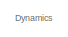
[diagram: Subsystem/Torque and force equilibrium - part 1/2, top left region]
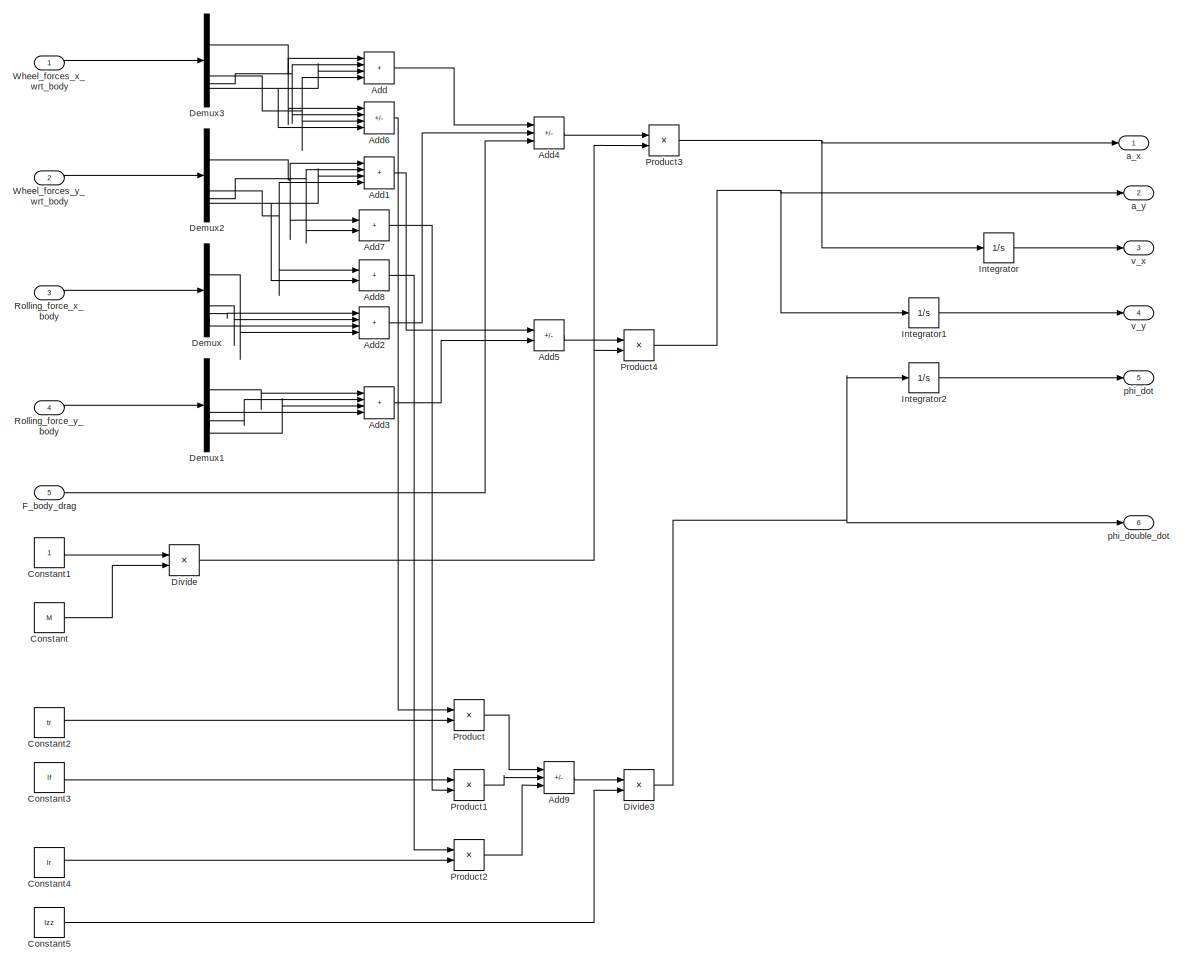
[diagram: Subsystem/Torque and force equilibrium - part 2/2, most of the canvas]
BLOCK [SubSystem] Subsystem/Torque and force equilibrium
BLOCK [Sum] Subsystem/Torque and force equilibrium/Add
  IconShape = rectangular
  Inputs = ++++
BLOCK [Sum] Subsystem/Torque and force equilibrium/Add1
  IconShape = rectangular
  Inputs = ++++
BLOCK [Sum] Subsystem/Torque and force equilibrium/Add2
  IconShape = rectangular
  Inputs = ++++
BLOCK [Sum] Subsystem/Torque and force equilibrium/Add3
  IconShape = rectangular
  Inputs = ++++
BLOCK [Sum] Subsystem/Torque and force equilibrium/Add4
  IconShape = rectangular
  Inputs = +--
BLOCK [Sum] Subsystem/Torque and force equilibrium/Add5
  IconShape = rectangular
  Inputs = +-
BLOCK [Sum] Subsystem/Torque and force equilibrium/Add6
  IconShape = rectangular
  Inputs = -+-+
BLOCK [Sum] Subsystem/Torque and force equilibrium/Add7
  IconShape = rectangular
BLOCK [Sum] Subsystem/Torque and force equilibrium/Add8
  IconShape = rectangular
BLOCK [Sum] Subsystem/Torque and force equilibrium/Add9
  IconShape = rectangular
  Inputs = ++-
BLOCK [Constant] Subsystem/Torque and force equilibrium/Constant
  Value = M
BLOCK [Constant] Subsystem/Torque and force equilibrium/Constant1
BLOCK [Constant] Subsystem/Torque and force equilibrium/Constant2
  Value = tr
BLOCK [Constant] Subsystem/Torque and force equilibrium/Constant3
  Value = lf
BLOCK [Constant] Subsystem/Torque and force equilibrium/Constant4
  Value = lr
BLOCK [Constant] Subsystem/Torque and force equilibrium/Constant5
  Value = Izz
BLOCK [Demux] Subsystem/Torque and force equilibrium/Demux
BLOCK [Demux] Subsystem/Torque and force equilibrium/Demux1
BLOCK [Demux] Subsystem/Torque and force equilibrium/Demux2
BLOCK [Demux] Subsystem/Torque and force equilibrium/Demux3
BLOCK [Product] Subsystem/Torque and force equilibrium/Divide
  Inputs = */
BLOCK [Product] Subsystem/Torque and force equilibrium/Divide3
  Inputs = */
BLOCK [Inport] Subsystem/Torque and force equilibrium/F_body_drag
  Port = 5
BLOCK [Integrator] Subsystem/Torque and force equilibrium/Integrator
BLOCK [Integrator] Subsystem/Torque and force equilibrium/Integrator1
BLOCK [Integrator] Subsystem/Torque and force equilibrium/Integrator2
BLOCK [Product] Subsystem/Torque and force equilibrium/Product
BLOCK [Product] Subsystem/Torque and force equilibrium/Product1
BLOCK [Product] Subsystem/Torque and force equilibrium/Product2
BLOCK [Product] Subsystem/Torque and force equilibrium/Product3
BLOCK [Product] Subsystem/Torque and force equilibrium/Product4
BLOCK [Inport] Subsystem/Torque and force equilibrium/Rolling_force_x_body
  Port = 3
BLOCK [Inport] Subsystem/Torque and force equilibrium/Rolling_force_y_body
  Port = 4
BLOCK [Inport] Subsystem/Torque and force equilibrium/Wheel_forces_x_wrt_body
BLOCK [Inport] Subsystem/Torque and force equilibrium/Wheel_forces_y_wrt_body
  Port = 2
BLOCK [Outport] Subsystem/Torque and force equilibrium/a_x
BLOCK [Outport] Subsystem/Torque and force equilibrium/a_y
  Port = 2
BLOCK [Outport] Subsystem/Torque and force equilibrium/phi_dot
  Port = 5
BLOCK [Outport] Subsystem/Torque and force equilibrium/phi_double_dot
  Port = 6
BLOCK [Outport] Subsystem/Torque and force equilibrium/v_x
  Port = 3
BLOCK [Outport] Subsystem/Torque and force equilibrium/v_y
  Port = 4
BLOCK [UnitDelay] Subsystem/Unit Delay
  HasFrameUpgradeWarning = on
  SampleTime = -1
BLOCK [UnitDelay] Subsystem/Unit Delay2
  HasFrameUpgradeWarning = on
  SampleTime = -1
BLOCK [SubSystem] Subsystem/Vertical Loads
  PortSchema = {"entries":[{"content":{"sides":[{"content":{"connectorIds":["In1","In2"]},"type":"ConnectorPlacement.EquallySpacedRectSide","uuid":"420474dd-77ae-41a3-b184-b8a376845dee"},{"content":{"connectorIds":["Out1","Out2","Out3"],"side":"RIGHT"},"type":"ConnectorPlacement.EquallySpacedRectSide","uuid":"e98bfd49-6816-4384-b726-feedfd108428"},{"content":{"connectorIds":["In3","In4"],"side":"TOP"},"type":"Co...<+427ch>
BLOCK [Inport] Subsystem/Vertical Loads/Acceleration_x
  Port = 4
BLOCK [Inport] Subsystem/Vertical Loads/Acceleration_y
  Port = 3
BLOCK [Constant] Subsystem/Vertical Loads/Constant
  Value = M
BLOCK [Constant] Subsystem/Vertical Loads/Constant1
  Value = lf
BLOCK [Constant] Subsystem/Vertical Loads/Constant2
  Value = lr
BLOCK [Constant] Subsystem/Vertical Loads/Constant3
  Value = g
BLOCK [Trigonometry] Subsystem/Vertical Loads/Cos
  Operator = cos
BLOCK [Trigonometry] Subsystem/Vertical Loads/Cos1
BLOCK [SubSystem] Subsystem/Vertical Loads/F-z calcs
  NameLocation = top
BLOCK [Inport] Subsystem/Vertical Loads/F-z calcs/Acceleration_x
  Port = 4
BLOCK [Inport] Subsystem/Vertical Loads/F-z calcs/Acceleration_y
  Port = 5
BLOCK [Outport] Subsystem/Vertical Loads/F-z calcs/F_z
BLOCK [Inport] Subsystem/Vertical Loads/F-z calcs/Mass
  Port = 3
BLOCK [Mux] Subsystem/Vertical Loads/F-z calcs/Mux
  DisplayOption = bar
BLOCK [Product] Subsystem/Vertical Loads/F-z calcs/Product
  Inputs = 3
BLOCK [Product] Subsystem/Vertical Loads/F-z calcs/Product1
  Inputs = 3
BLOCK [Product] Subsystem/Vertical Loads/F-z calcs/Product2
  Inputs = 3
BLOCK [Product] Subsystem/Vertical Loads/F-z calcs/Product3
  Inputs = 3
BLOCK [SubSystem] Subsystem/Vertical Loads/F-z calcs/Term_1
BLOCK [Inport] Subsystem/Vertical Loads/F-z calcs/Term_1/Acceleration_x
  Port = 2
BLOCK [Sum] Subsystem/Vertical Loads/F-z calcs/Term_1/Add
  IconShape = rectangular
BLOCK [Sum] Subsystem/Vertical Loads/F-z calcs/Term_1/Add1
  IconShape = rectangular
BLOCK [Sum] Subsystem/Vertical Loads/F-z calcs/Term_1/Add2
  IconShape = rectangular
  Inputs = +-
BLOCK [Product] Subsystem/Vertical Loads/F-z calcs/Term_1/Divide
  Inputs = */
BLOCK [Product] Subsystem/Vertical Loads/F-z calcs/Term_1/Divide1
  Inputs = **/
BLOCK [Product] Subsystem/Vertical Loads/F-z calcs/Term_1/Product
BLOCK [Inport] Subsystem/Vertical Loads/F-z calcs/Term_1/g
  Port = 5
BLOCK [Inport] Subsystem/Vertical Loads/F-z calcs/Term_1/hCG
  Port = 4
BLOCK [Inport] Subsystem/Vertical Loads/F-z calcs/Term_1/lf
  Port = 3
BLOCK [Inport] Subsystem/Vertical Loads/F-z calcs/Term_1/lr
BLOCK [Outport] Subsystem/Vertical Loads/F-z calcs/Term_1/minus
  Port = 2
BLOCK [Outport] Subsystem/Vertical Loads/F-z calcs/Term_1/plus
BLOCK [SubSystem] Subsystem/Vertical Loads/F-z calcs/Term_2
BLOCK [Inport] Subsystem/Vertical Loads/F-z calcs/Term_2/Acceleration_y
  Port = 5
BLOCK [Sum] Subsystem/Vertical Loads/F-z calcs/Term_2/Add
  IconShape = rectangular
BLOCK [Sum] Subsystem/Vertical Loads/F-z calcs/Term_2/Add1
  IconShape = rectangular
  Inputs = +-
BLOCK [Sum] Subsystem/Vertical Loads/F-z calcs/Term_2/Add2
  IconShape = rectangular
BLOCK [Sum] Subsystem/Vertical Loads/F-z calcs/Term_2/Add3
  IconShape = rectangular
  Inputs = +-
BLOCK [Constant] Subsystem/Vertical Loads/F-z calcs/Term_2/Constant
  Value = 0.5
BLOCK [Product] Subsystem/Vertical Loads/F-z calcs/Term_2/Divide
  Inputs = */
BLOCK [Product] Subsystem/Vertical Loads/F-z calcs/Term_2/Divide1
  Inputs = */
BLOCK [Product] Subsystem/Vertical Loads/F-z calcs/Term_2/Divide2
  Inputs = */
BLOCK [Product] Subsystem/Vertical Loads/F-z calcs/Term_2/Product
BLOCK [Product] Subsystem/Vertical Loads/F-z calcs/Term_2/Product1
BLOCK [Inport] Subsystem/Vertical Loads/F-z calcs/Term_2/g
  Port = 2
BLOCK [Inport] Subsystem/Vertical Loads/F-z calcs/Term_2/hCG
BLOCK [Outport] Subsystem/Vertical Loads/F-z calcs/Term_2/minus_f
  Port = 2
BLOCK [Outport] Subsystem/Vertical Loads/F-z calcs/Term_2/minus_r
  Port = 4
BLOCK [Outport] Subsystem/Vertical Loads/F-z calcs/Term_2/plus_f
BLOCK [Outport] Subsystem/Vertical Loads/F-z calcs/Term_2/plus_r
  Port = 3
BLOCK [Inport] Subsystem/Vertical Loads/F-z calcs/Term_2/tf
  Port = 4
BLOCK [Inport] Subsystem/Vertical Loads/F-z calcs/Term_2/tr
  Port = 3
BLOCK [Inport] Subsystem/Vertical Loads/F-z calcs/g
  Port = 9
BLOCK [Inport] Subsystem/Vertical Loads/F-z calcs/hCG
  Port = 6
BLOCK [Inport] Subsystem/Vertical Loads/F-z calcs/lf
  Port = 2
BLOCK [Inport] Subsystem/Vertical Loads/F-z calcs/lr
BLOCK [Inport] Subsystem/Vertical Loads/F-z calcs/tf
  Port = 7
BLOCK [Inport] Subsystem/Vertical Loads/F-z calcs/tr
  Port = 8
BLOCK [Product] Subsystem/Vertical Loads/Product
BLOCK [Product] Subsystem/Vertical Loads/Product1
BLOCK [Product] Subsystem/Vertical Loads/Product2
BLOCK [Product] Subsystem/Vertical Loads/Product3
BLOCK [Product] Subsystem/Vertical Loads/Product4
BLOCK [Product] Subsystem/Vertical Loads/Product5
BLOCK [Sqrt] Subsystem/Vertical Loads/Sqrt
BLOCK [Math] Subsystem/Vertical Loads/Square
  Operator = square
BLOCK [Math] Subsystem/Vertical Loads/Square1
  Operator = square
BLOCK [Sum] Subsystem/Vertical Loads/Subtract
  IconShape = rectangular
  Inputs = +-
BLOCK [Sum] Subsystem/Vertical Loads/Subtract1
  IconShape = rectangular
BLOCK [Sum] Subsystem/Vertical Loads/Subtract2
  IconShape = rectangular
BLOCK [Outport] Subsystem/Vertical Loads/Total_z_force
  Port = 4
BLOCK [Outport] Subsystem/Vertical Loads/Wheel_force_res
  Port = 3
BLOCK [Outport] Subsystem/Vertical Loads/Wheel_force_x
BLOCK [Outport] Subsystem/Vertical Loads/Wheel_force_y
  Port = 2
BLOCK [Inport] Subsystem/Vertical Loads/alpha
  Port = 5
BLOCK [Constant] Subsystem/Vertical Loads/hCG
BLOCK [Inport] Subsystem/Vertical Loads/mu_lateral
  Port = 2
BLOCK [Inport] Subsystem/Vertical Loads/mu_longitudinal
BLOCK [Constant] Subsystem/Vertical Loads/t_f
  Value = tf
BLOCK [Constant] Subsystem/Vertical Loads/t_r
  Value = tr
BLOCK [SubSystem] Subsystem/Wheel Dynamics
BLOCK [Sum] Subsystem/Wheel Dynamics/Add
  IconShape = rectangular
  Inputs = +--
BLOCK [Constant] Subsystem/Wheel Dynamics/Constant1
  Value = wr
BLOCK [Constant] Subsystem/Wheel Dynamics/Constant2
  Value = b
BLOCK [Constant] Subsystem/Wheel Dynamics/Constant3
  NameLocation = top
  Value = I_w
BLOCK [Product] Subsystem/Wheel Dynamics/Divide
  Inputs = */
BLOCK [Integrator] Subsystem/Wheel Dynamics/Integrator
BLOCK [Product] Subsystem/Wheel Dynamics/Product
BLOCK [Product] Subsystem/Wheel Dynamics/Product1
BLOCK [Inport] Subsystem/Wheel Dynamics/Torque
  Port = 2
BLOCK [Inport] Subsystem/Wheel Dynamics/Wheel_forces
BLOCK [Outport] Subsystem/Wheel Dynamics/omega
BLOCK [SubSystem] Subsystem/Wheel To Vehicle Co-ordinate System
  PortSchema = {"entries":[{"content":{"sides":[{"content":{"connectorIds":["In1","In2"]},"type":"ConnectorPlacement.EquallySpacedRectSide","uuid":"1d639fc9-362c-4114-a9a5-2cccb0aa4f8f"},{"content":{"connectorIds":["Out1","Out2"],"side":"RIGHT"},"type":"ConnectorPlacement.EquallySpacedRectSide","uuid":"af7b8bc1-4639-4e57-ae25-0425d451201b"},{"content":{"connectorIds":["In3","In4"],"side":"TOP"},"type":"Connector...<+264ch>
BLOCK [SubSystem] Subsystem/Wheel To Vehicle Co-ordinate System/Subsystem
BLOCK [BusCreator] Subsystem/Wheel To Vehicle Co-ordinate System/Subsystem/Bus Creator
  DisplayOption = bar
  InheritFromInputs = on
  Inputs = 4
BLOCK [Trigonometry] Subsystem/Wheel To Vehicle Co-ordinate System/Subsystem/Cos
  Operator = cos
BLOCK [Trigonometry] Subsystem/Wheel To Vehicle Co-ordinate System/Subsystem/Cos1
BLOCK [Trigonometry] Subsystem/Wheel To Vehicle Co-ordinate System/Subsystem/Cos2
  Operator = cos
BLOCK [Trigonometry] Subsystem/Wheel To Vehicle Co-ordinate System/Subsystem/Cos3
BLOCK [Demux] Subsystem/Wheel To Vehicle Co-ordinate System/Subsystem/Demux
BLOCK [Demux] Subsystem/Wheel To Vehicle Co-ordinate System/Subsystem/Demux1
BLOCK [Product] Subsystem/Wheel To Vehicle Co-ordinate System/Subsystem/Product
BLOCK [Product] Subsystem/Wheel To Vehicle Co-ordinate System/Subsystem/Product1
BLOCK [Product] Subsystem/Wheel To Vehicle Co-ordinate System/Subsystem/Product2
BLOCK [Product] Subsystem/Wheel To Vehicle Co-ordinate System/Subsystem/Product3
BLOCK [Sum] Subsystem/Wheel To Vehicle Co-ordinate System/Subsystem/Subtract
  IconShape = rectangular
  Inputs = +-
BLOCK [Sum] Subsystem/Wheel To Vehicle Co-ordinate System/Subsystem/Subtract1
  IconShape = rectangular
  Inputs = +-
BLOCK [Inport] Subsystem/Wheel To Vehicle Co-ordinate System/Subsystem/Wheel_force_x
BLOCK [Inport] Subsystem/Wheel To Vehicle Co-ordinate System/Subsystem/Wheel_force_y
  Port = 2
BLOCK [Outport] Subsystem/Wheel To Vehicle Co-ordinate System/Subsystem/Wheel_forces_x_wrt_body
BLOCK [Inport] Subsystem/Wheel To Vehicle Co-ordinate System/Subsystem/delta_left
  Port = 4
BLOCK [Inport] Subsystem/Wheel To Vehicle Co-ordinate System/Subsystem/delta_right
  Port = 3
BLOCK [SubSystem] Subsystem/Wheel To Vehicle Co-ordinate System/Subsystem1
BLOCK [Sum] Subsystem/Wheel To Vehicle Co-ordinate System/Subsystem1/Add
  IconShape = rectangular
BLOCK [Sum] Subsystem/Wheel To Vehicle Co-ordinate System/Subsystem1/Add1
  IconShape = rectangular
BLOCK [BusCreator] Subsystem/Wheel To Vehicle Co-ordinate System/Subsystem1/Bus Creator
  DisplayOption = bar
  InheritFromInputs = on
  Inputs = 4
BLOCK [Demux] Subsystem/Wheel To Vehicle Co-ordinate System/Subsystem1/Demux
BLOCK [Demux] Subsystem/Wheel To Vehicle Co-ordinate System/Subsystem1/Demux1
BLOCK [Product] Subsystem/Wheel To Vehicle Co-ordinate System/Subsystem1/Product
BLOCK [Product] Subsystem/Wheel To Vehicle Co-ordinate System/Subsystem1/Product1
BLOCK [Product] Subsystem/Wheel To Vehicle Co-ordinate System/Subsystem1/Product2
BLOCK [Product] Subsystem/Wheel To Vehicle Co-ordinate System/Subsystem1/Product3
BLOCK [Trigonometry] Subsystem/Wheel To Vehicle Co-ordinate System/Subsystem1/Sin
  Operator = cos
BLOCK [Trigonometry] Subsystem/Wheel To Vehicle Co-ordinate System/Subsystem1/Sin1
BLOCK [Trigonometry] Subsystem/Wheel To Vehicle Co-ordinate System/Subsystem1/Sin2
BLOCK [Trigonometry] Subsystem/Wheel To Vehicle Co-ordinate System/Subsystem1/Sin3
  Operator = cos
BLOCK [Inport] Subsystem/Wheel To Vehicle Co-ordinate System/Subsystem1/Wheel_force_x
BLOCK [Inport] Subsystem/Wheel To Vehicle Co-ordinate System/Subsystem1/Wheel_force_y
  Port = 2
BLOCK [Outport] Subsystem/Wheel To Vehicle Co-ordinate System/Subsystem1/Wheel_forces_y_wrt_body
BLOCK [Inport] Subsystem/Wheel To Vehicle Co-ordinate System/Subsystem1/delta_left
  Port = 4
BLOCK [Inport] Subsystem/Wheel To Vehicle Co-ordinate System/Subsystem1/delta_right
  Port = 3
BLOCK [Inport] Subsystem/Wheel To Vehicle Co-ordinate System/Wheel_force_x
BLOCK [Inport] Subsystem/Wheel To Vehicle Co-ordinate System/Wheel_force_y
  Port = 2
BLOCK [Outport] Subsystem/Wheel To Vehicle Co-ordinate System/Wheel_forces_x_wrt_body
BLOCK [Outport] Subsystem/Wheel To Vehicle Co-ordinate System/Wheel_forces_y_wrt_body
  Port = 2
BLOCK [Inport] Subsystem/Wheel To Vehicle Co-ordinate System/delta_left
  Port = 4
BLOCK [Inport] Subsystem/Wheel To Vehicle Co-ordinate System/delta_right
  Port = 3
BLOCK [Inport] Subsystem/delta
BLOCK [Record] XY Graph
  CompatibilityTag = XY
  FileSettingsInternal = {"entries":[{"content":{"excelSettings":{"content":{},"type":"Streamout.ExcelSettings"}},"type":"Streamout.FileSettingStorage","uuid":""}],"packageUris":["http:\/\/schema.mathworks.com\/mf0\/streamout_blocks\/R2020a"],"version":"1.0"}
  Layout = [1 1]
  SignalsInternal = {"entries":[{"content":{"signals":[{"content":{"blockPath":[],"dimensions":[1],"domain":"","lineColor":"#a2142f","plots":[ 1 ],"port":1,"sid":[""],"signalID":1,"signalName":"x"},"type":"RecordBlkView.Signal","uuid":""},{"content":{"blockPath":[],"dimensions":[1],"domain":"","lineColor":"#139fff","plots":[ 1 ],"port":2,"sid":[""],"signalID":2,"signalName":"y"},"type":"RecordBlkView.Signal","uuid":"...<+148ch>
  VisualizationBindings = {"xyplotplugin":{"info":[{"series":[{"bindingParametersList":[{"parameter":"X-Axis","signalID":1,"signalName":"x"},{"parameter":"Y-Axis","signalID":2,"signalName":"y"}],"seriesID":0}],"subplotID":1}]}}
ANNOTATION Subsystem/Aerodynamic Drag: Aero calcs
ANNOTATION Subsystem/Rolling resistance: Rolling force calcs
ANNOTATION Subsystem/Side Slip Angle: Slip angle calcs
ANNOTATION Subsystem/Slip Ratios: Slip ratio calculations
ANNOTATION Subsystem/Tire Model: Magic Model implement? Bruckhardt model
ANNOTATION Subsystem/Torque and force equilibrium: Dynamics
ANNOTATION Subsystem/Vertical Loads: Vertical loads
ANNOTATION Subsystem/Wheel To Vehicle Co-ordinate System: Co-ordinate calculations
LINE Constant1:1 -> Subsystem:1
NET Constant2:1 -> Mux:1, Mux:2
NET Constant:1 -> Mux:3, Mux:4
LINE Demux:1 -> Scope:1
LINE Demux:2 -> Scope:2
NET Demux:3 -> Integrator:1, Scope:3
NET Demux:4 -> Integrator1:1, Scope:4
LINE Demux:5 -> Scope:5
LINE Demux:6 -> Scope:6
LINE Integrator1:1 -> XY Graph:2
LINE Integrator:1 -> XY Graph:1
LINE Mux:1 -> Subsystem:2
LINE Subsystem/Accelerating_or_braking/Add:1 -> Subsystem/Accelerating_or_braking/Gain:1
LINE Subsystem/Accelerating_or_braking/Compare To Zero:1 -> Subsystem/Accelerating_or_braking/Binary state:1
LINE Subsystem/Accelerating_or_braking/Demux:3 -> Subsystem/Accelerating_or_braking/Add:1
LINE Subsystem/Accelerating_or_braking/Demux:4 -> Subsystem/Accelerating_or_braking/Add:2
LINE Subsystem/Accelerating_or_braking/Derivative:1 -> Subsystem/Accelerating_or_braking/Compare To Zero:1
LINE Subsystem/Accelerating_or_braking/Gain:1 -> Subsystem/Accelerating_or_braking/Derivative:1
LINE Subsystem/Accelerating_or_braking/Torque:1 -> Subsystem/Accelerating_or_braking/Demux:1
LINE Subsystem/Accelerating_or_braking:1 -> Subsystem/Slip Ratios:4
LINE Subsystem/Aerodynamic Drag/Constant1:1 -> Subsystem/Aerodynamic Drag/Product:3
LINE Subsystem/Aerodynamic Drag/Constant:1 -> Subsystem/Aerodynamic Drag/Product:4
LINE Subsystem/Aerodynamic Drag/Gain:1 -> Subsystem/Aerodynamic Drag/F_body_drag:1
LINE Subsystem/Aerodynamic Drag/Product:1 -> Subsystem/Aerodynamic Drag/Gain:1
LINE Subsystem/Aerodynamic Drag/Square:1 -> Subsystem/Aerodynamic Drag/Product:1
LINE Subsystem/Aerodynamic Drag/frontal area:1 -> Subsystem/Aerodynamic Drag/Product:2
LINE Subsystem/Aerodynamic Drag/v_x:1 -> Subsystem/Aerodynamic Drag/Square:1
LINE Subsystem/Aerodynamic Drag:1 -> Subsystem/Torque and force equilibrium:5
LINE Subsystem/Demux:1 -> Subsystem/Vertical Loads:4
LINE Subsystem/Demux:2 -> Subsystem/Vertical Loads:3
NET Subsystem/Demux:3 -> Subsystem/Aerodynamic Drag:1, Subsystem/Side Slip Angle:1
LINE Subsystem/Demux:4 -> Subsystem/Side Slip Angle:2
LINE Subsystem/Demux:5 -> Subsystem/Side Slip Angle:3
LINE Subsystem/Mux:1 -> Subsystem/Unit Delay:1
LINE Subsystem/Rolling resistance/Constant1:1 -> Subsystem/Rolling resistance/Mux:3
LINE Subsystem/Rolling resistance/Constant2:1 -> Subsystem/Rolling resistance/Mux:4
NET Subsystem/Rolling resistance/Constant:1 -> Subsystem/Rolling resistance/Product1:1, Subsystem/Rolling resistance/Product2:1, Subsystem/Rolling resistance/Product3:3, Subsystem/Rolling resistance/Product4:1, Subsystem/Rolling resistance/Product5:1, Subsystem/Rolling resistance/Product:1
LINE Subsystem/Rolling resistance/Cos1:1 -> Subsystem/Rolling resistance/Product:3
LINE Subsystem/Rolling resistance/Cos2:1 -> Subsystem/Rolling resistance/Product4:2
LINE Subsystem/Rolling resistance/Cos3:1 -> Subsystem/Rolling resistance/Product3:2
LINE Subsystem/Rolling resistance/Cos:1 -> Subsystem/Rolling resistance/Product5:3
LINE Subsystem/Rolling resistance/Demux1:1 -> Subsystem/Rolling resistance/Sign3:1
LINE Subsystem/Rolling resistance/Demux1:2 -> Subsystem/Rolling resistance/Sign:1
LINE Subsystem/Rolling resistance/Demux1:3 -> Subsystem/Rolling resistance/Sign1:1
LINE Subsystem/Rolling resistance/Demux1:4 -> Subsystem/Rolling resistance/Sign2:1
NET Subsystem/Rolling resistance/Demux:1 -> Subsystem/Rolling resistance/Product3:4, Subsystem/Rolling resistance/Product5:4
NET Subsystem/Rolling resistance/Demux:2 -> Subsystem/Rolling resistance/Product4:3, Subsystem/Rolling resistance/Product:4
LINE Subsystem/Rolling resistance/Demux:3 -> Subsystem/Rolling resistance/Product1:3
LINE Subsystem/Rolling resistance/Demux:4 -> Subsystem/Rolling resistance/Product2:3
LINE Subsystem/Rolling resistance/Mux1:1 -> Subsystem/Rolling resistance/Rolling_force_x_body:1
LINE Subsystem/Rolling resistance/Mux:1 -> Subsystem/Rolling resistance/Rolling_force_y_body:1
LINE Subsystem/Rolling resistance/Product1:1 -> Subsystem/Rolling resistance/Mux1:3
LINE Subsystem/Rolling resistance/Product2:1 -> Subsystem/Rolling resistance/Mux1:4
LINE Subsystem/Rolling resistance/Product3:1 -> Subsystem/Rolling resistance/Mux:1
LINE Subsystem/Rolling resistance/Product4:1 -> Subsystem/Rolling resistance/Mux:2
LINE Subsystem/Rolling resistance/Product5:1 -> Subsystem/Rolling resistance/Mux1:1
LINE Subsystem/Rolling resistance/Product:1 -> Subsystem/Rolling resistance/Mux1:2
LINE Subsystem/Rolling resistance/Sign1:1 -> Subsystem/Rolling resistance/Product1:2
LINE Subsystem/Rolling resistance/Sign2:1 -> Subsystem/Rolling resistance/Product2:2
NET Subsystem/Rolling resistance/Sign3:1 -> Subsystem/Rolling resistance/Product3:1, Subsystem/Rolling resistance/Product5:2
NET Subsystem/Rolling resistance/Sign:1 -> Subsystem/Rolling resistance/Product4:4, Subsystem/Rolling resistance/Product:2
LINE Subsystem/Rolling resistance/Total_z_force:1 -> Subsystem/Rolling resistance/Demux:1
NET Subsystem/Rolling resistance/delta_left:1 -> Subsystem/Rolling resistance/Cos3:1, Subsystem/Rolling resistance/Cos:1
NET Subsystem/Rolling resistance/delta_right:1 -> Subsystem/Rolling resistance/Cos1:1, Subsystem/Rolling resistance/Cos2:1
LINE Subsystem/Rolling resistance/omega:1 -> Subsystem/Rolling resistance/Demux1:1
LINE Subsystem/Rolling resistance:1 -> Subsystem/Torque and force equilibrium:3
LINE Subsystem/Rolling resistance:2 -> Subsystem/Torque and force equilibrium:4
NET Subsystem/Side Slip Angle/Constant1:1 -> Subsystem/Side Slip Angle/R_calcs:2, Subsystem/Side Slip Angle/eta_calcs:2
NET Subsystem/Side Slip Angle/Constant2:1 -> Subsystem/Side Slip Angle/R_calcs:1, Subsystem/Side Slip Angle/eta_calcs:1
NET Subsystem/Side Slip Angle/Constant3:1 -> Subsystem/Side Slip Angle/R_calcs:4, Subsystem/Side Slip Angle/eta_calcs:4
NET Subsystem/Side Slip Angle/Constant:1 -> Subsystem/Side Slip Angle/R_calcs:3, Subsystem/Side Slip Angle/eta_calcs:3
LINE Subsystem/Side Slip Angle/R_calcs/Add1:1 -> Subsystem/Side Slip Angle/R_calcs/Sqrt1:1
LINE Subsystem/Side Slip Angle/R_calcs/Add:1 -> Subsystem/Side Slip Angle/R_calcs/Sqrt:1
LINE Subsystem/Side Slip Angle/R_calcs/Mux:1 -> Subsystem/Side Slip Angle/R_calcs/R:1
LINE Subsystem/Side Slip Angle/R_calcs/Sqrt1:1 -> Subsystem/Side Slip Angle/R_calcs/Mux:2
LINE Subsystem/Side Slip Angle/R_calcs/Sqrt:1 -> Subsystem/Side Slip Angle/R_calcs/Mux:1
LINE Subsystem/Side Slip Angle/R_calcs/Square1:1 -> Subsystem/Side Slip Angle/R_calcs/Add:2
LINE Subsystem/Side Slip Angle/R_calcs/Square2:1 -> Subsystem/Side Slip Angle/R_calcs/Add1:1
LINE Subsystem/Side Slip Angle/R_calcs/Square3:1 -> Subsystem/Side Slip Angle/R_calcs/Add1:2
LINE Subsystem/Side Slip Angle/R_calcs/Square:1 -> Subsystem/Side Slip Angle/R_calcs/Add:1
LINE Subsystem/Side Slip Angle/R_calcs/lf:1 -> Subsystem/Side Slip Angle/R_calcs/Square1:1
LINE Subsystem/Side Slip Angle/R_calcs/lr:1 -> Subsystem/Side Slip Angle/R_calcs/Square2:1
LINE Subsystem/Side Slip Angle/R_calcs/tf:1 -> Subsystem/Side Slip Angle/R_calcs/Square:1
LINE Subsystem/Side Slip Angle/R_calcs/tr:1 -> Subsystem/Side Slip Angle/R_calcs/Square3:1
NET Subsystem/Side Slip Angle/R_calcs:1 -> Subsystem/Side Slip Angle/alpha1:2, Subsystem/Side Slip Angle/w_v:2
LINE Subsystem/Side Slip Angle/alpha1/Add1:1 -> Subsystem/Side Slip Angle/alpha1/Mux:1
LINE Subsystem/Side Slip Angle/alpha1/Add:1 -> Subsystem/Side Slip Angle/alpha1/Mux:2
LINE Subsystem/Side Slip Angle/alpha1/Gain1:1 -> Subsystem/Side Slip Angle/alpha1/Mux:3
LINE Subsystem/Side Slip Angle/alpha1/Gain2:1 -> Subsystem/Side Slip Angle/alpha1/Add1:2
LINE Subsystem/Side Slip Angle/alpha1/Gain3:1 -> Subsystem/Side Slip Angle/alpha1/Mux:4
LINE Subsystem/Side Slip Angle/alpha1/Gain:1 -> Subsystem/Side Slip Angle/alpha1/Add:2
LINE Subsystem/Side Slip Angle/alpha1/Mux:1 -> Subsystem/Side Slip Angle/alpha1/alpha:1
NET Subsystem/Side Slip Angle/alpha1/R:1 -> Subsystem/Side Slip Angle/alpha1/tan_parameter1:2, Subsystem/Side Slip Angle/alpha1/tan_parameter2:2, Subsystem/Side Slip Angle/alpha1/tan_parameter3:2, Subsystem/Side Slip Angle/alpha1/tan_parameter:2
LINE Subsystem/Side Slip Angle/alpha1/Sin1:1 -> Subsystem/Side Slip Angle/alpha1/Gain1:1
LINE Subsystem/Side Slip Angle/alpha1/Sin2:1 -> Subsystem/Side Slip Angle/alpha1/Gain2:1
LINE Subsystem/Side Slip Angle/alpha1/Sin3:1 -> Subsystem/Side Slip Angle/alpha1/Gain3:1
LINE Subsystem/Side Slip Angle/alpha1/Sin:1 -> Subsystem/Side Slip Angle/alpha1/Gain:1
LINE Subsystem/Side Slip Angle/alpha1/delta_l:1 -> Subsystem/Side Slip Angle/alpha1/Add1:1
LINE Subsystem/Side Slip Angle/alpha1/delta_r:1 -> Subsystem/Side Slip Angle/alpha1/Add:1
NET Subsystem/Side Slip Angle/alpha1/eta:1 -> Subsystem/Side Slip Angle/alpha1/tan_parameter1:1, Subsystem/Side Slip Angle/alpha1/tan_parameter2:1, Subsystem/Side Slip Angle/alpha1/tan_parameter3:1, Subsystem/Side Slip Angle/alpha1/tan_parameter:1
NET Subsystem/Side Slip Angle/alpha1/phi_dot:1 -> Subsystem/Side Slip Angle/alpha1/tan_parameter1:5, Subsystem/Side Slip Angle/alpha1/tan_parameter2:5, Subsystem/Side Slip Angle/alpha1/tan_parameter3:5, Subsystem/Side Slip Angle/alpha1/tan_parameter:5
LINE Subsystem/Side Slip Angle/alpha1/tan_parameter/Add:1 -> Subsystem/Side Slip Angle/alpha1/tan_parameter/Divide:1
LINE Subsystem/Side Slip Angle/alpha1/tan_parameter/Demux1:1 -> Subsystem/Side Slip Angle/alpha1/tan_parameter/Sin1:1
LINE Subsystem/Side Slip Angle/alpha1/tan_parameter/Demux2:1 -> Subsystem/Side Slip Angle/alpha1/tan_parameter/Sin:1
NET Subsystem/Side Slip Angle/alpha1/tan_parameter/Demux:1 -> Subsystem/Side Slip Angle/alpha1/tan_parameter/Product1:2, Subsystem/Side Slip Angle/alpha1/tan_parameter/Product:2
NET Subsystem/Side Slip Angle/alpha1/tan_parameter/Divide:1 -> Subsystem/Side Slip Angle/alpha1/tan_parameter/If Action Subsystem:1, Subsystem/Side Slip Angle/alpha1/tan_parameter/Relational Operator:1
LINE Subsystem/Side Slip Angle/alpha1/tan_parameter/If Action Subsystem/In1:1 -> Subsystem/Side Slip Angle/alpha1/tan_parameter/If Action Subsystem/Out1:1
LINE Subsystem/Side Slip Angle/alpha1/tan_parameter/If Action Subsystem1/Constant:1 -> Subsystem/Side Slip Angle/alpha1/tan_parameter/If Action Subsystem1/Out1:1
LINE Subsystem/Side Slip Angle/alpha1/tan_parameter/If Action Subsystem1:1 -> Subsystem/Side Slip Angle/alpha1/tan_parameter/Merge:2
LINE Subsystem/Side Slip Angle/alpha1/tan_parameter/If Action Subsystem:1 -> Subsystem/Side Slip Angle/alpha1/tan_parameter/Merge:1
LINE Subsystem/Side Slip Angle/alpha1/tan_parameter/If:1 -> Subsystem/Side Slip Angle/alpha1/tan_parameter/If Action Subsystem:ifaction
LINE Subsystem/Side Slip Angle/alpha1/tan_parameter/If:2 -> Subsystem/Side Slip Angle/alpha1/tan_parameter/If Action Subsystem1:ifaction
LINE Subsystem/Side Slip Angle/alpha1/tan_parameter/Merge:1 -> Subsystem/Side Slip Angle/alpha1/tan_parameter/Out1:1
LINE Subsystem/Side Slip Angle/alpha1/tan_parameter/Product1:1 -> Subsystem/Side Slip Angle/alpha1/tan_parameter/Subtract:2
LINE Subsystem/Side Slip Angle/alpha1/tan_parameter/Product:1 -> Subsystem/Side Slip Angle/alpha1/tan_parameter/Add:2
LINE Subsystem/Side Slip Angle/alpha1/tan_parameter/R:1 -> Subsystem/Side Slip Angle/alpha1/tan_parameter/Demux:1
LINE Subsystem/Side Slip Angle/alpha1/tan_parameter/Relational Operator:1 -> Subsystem/Side Slip Angle/alpha1/tan_parameter/If:1
LINE Subsystem/Side Slip Angle/alpha1/tan_parameter/Sin1:1 -> Subsystem/Side Slip Angle/alpha1/tan_parameter/Product1:1
LINE Subsystem/Side Slip Angle/alpha1/tan_parameter/Sin:1 -> Subsystem/Side Slip Angle/alpha1/tan_parameter/Product:1
LINE Subsystem/Side Slip Angle/alpha1/tan_parameter/Subtract:1 -> Subsystem/Side Slip Angle/alpha1/tan_parameter/Divide:2
NET Subsystem/Side Slip Angle/alpha1/tan_parameter/eta:1 -> Subsystem/Side Slip Angle/alpha1/tan_parameter/Demux1:1, Subsystem/Side Slip Angle/alpha1/tan_parameter/Demux2:1
NET Subsystem/Side Slip Angle/alpha1/tan_parameter/phi_dot:1 -> Subsystem/Side Slip Angle/alpha1/tan_parameter/Product1:3, Subsystem/Side Slip Angle/alpha1/tan_parameter/Product:3
LINE Subsystem/Side Slip Angle/alpha1/tan_parameter/v_x:1 -> Subsystem/Side Slip Angle/alpha1/tan_parameter/Subtract:1
LINE Subsystem/Side Slip Angle/alpha1/tan_parameter/v_y:1 -> Subsystem/Side Slip Angle/alpha1/tan_parameter/Add:1
LINE Subsystem/Side Slip Angle/alpha1/tan_parameter1/Add:1 -> Subsystem/Side Slip Angle/alpha1/tan_parameter1/Divide:1
NET Subsystem/Side Slip Angle/alpha1/tan_parameter1/Demux1:2 -> Subsystem/Side Slip Angle/alpha1/tan_parameter1/Sin1:1, Subsystem/Side Slip Angle/alpha1/tan_parameter1/Sin:1
NET Subsystem/Side Slip Angle/alpha1/tan_parameter1/Demux:1 -> Subsystem/Side Slip Angle/alpha1/tan_parameter1/Product1:2, Subsystem/Side Slip Angle/alpha1/tan_parameter1/Product:2
NET Subsystem/Side Slip Angle/alpha1/tan_parameter1/Divide:1 -> Subsystem/Side Slip Angle/alpha1/tan_parameter1/If Action Subsystem:1, Subsystem/Side Slip Angle/alpha1/tan_parameter1/IsNaN:1
LINE Subsystem/Side Slip Angle/alpha1/tan_parameter1/If Action Subsystem/In1:1 -> Subsystem/Side Slip Angle/alpha1/tan_parameter1/If Action Subsystem/Out1:1
LINE Subsystem/Side Slip Angle/alpha1/tan_parameter1/If Action Subsystem1/Constant:1 -> Subsystem/Side Slip Angle/alpha1/tan_parameter1/If Action Subsystem1/Out1:1
LINE Subsystem/Side Slip Angle/alpha1/tan_parameter1/If Action Subsystem1:1 -> Subsystem/Side Slip Angle/alpha1/tan_parameter1/Merge:2
LINE Subsystem/Side Slip Angle/alpha1/tan_parameter1/If Action Subsystem:1 -> Subsystem/Side Slip Angle/alpha1/tan_parameter1/Merge:1
LINE Subsystem/Side Slip Angle/alpha1/tan_parameter1/If:1 -> Subsystem/Side Slip Angle/alpha1/tan_parameter1/If Action Subsystem:ifaction
LINE Subsystem/Side Slip Angle/alpha1/tan_parameter1/If:2 -> Subsystem/Side Slip Angle/alpha1/tan_parameter1/If Action Subsystem1:ifaction
LINE Subsystem/Side Slip Angle/alpha1/tan_parameter1/IsNaN:1 -> Subsystem/Side Slip Angle/alpha1/tan_parameter1/If:1
LINE Subsystem/Side Slip Angle/alpha1/tan_parameter1/Merge:1 -> Subsystem/Side Slip Angle/alpha1/tan_parameter1/Out1:1
LINE Subsystem/Side Slip Angle/alpha1/tan_parameter1/Product1:1 -> Subsystem/Side Slip Angle/alpha1/tan_parameter1/Subtract:2
LINE Subsystem/Side Slip Angle/alpha1/tan_parameter1/Product:1 -> Subsystem/Side Slip Angle/alpha1/tan_parameter1/Add:2
LINE Subsystem/Side Slip Angle/alpha1/tan_parameter1/R:1 -> Subsystem/Side Slip Angle/alpha1/tan_parameter1/Demux:1
LINE Subsystem/Side Slip Angle/alpha1/tan_parameter1/Sin1:1 -> Subsystem/Side Slip Angle/alpha1/tan_parameter1/Product:1
LINE Subsystem/Side Slip Angle/alpha1/tan_parameter1/Sin:1 -> Subsystem/Side Slip Angle/alpha1/tan_parameter1/Product1:1
LINE Subsystem/Side Slip Angle/alpha1/tan_parameter1/Subtract:1 -> Subsystem/Side Slip Angle/alpha1/tan_parameter1/Divide:2
LINE Subsystem/Side Slip Angle/alpha1/tan_parameter1/eta:1 -> Subsystem/Side Slip Angle/alpha1/tan_parameter1/Demux1:1
NET Subsystem/Side Slip Angle/alpha1/tan_parameter1/phi_dot:1 -> Subsystem/Side Slip Angle/alpha1/tan_parameter1/Product1:3, Subsystem/Side Slip Angle/alpha1/tan_parameter1/Product:3
LINE Subsystem/Side Slip Angle/alpha1/tan_parameter1/v_x:1 -> Subsystem/Side Slip Angle/alpha1/tan_parameter1/Subtract:1
LINE Subsystem/Side Slip Angle/alpha1/tan_parameter1/v_y:1 -> Subsystem/Side Slip Angle/alpha1/tan_parameter1/Add:1
LINE Subsystem/Side Slip Angle/alpha1/tan_parameter1:1 -> Subsystem/Side Slip Angle/alpha1/Sin:1
LINE Subsystem/Side Slip Angle/alpha1/tan_parameter2/Add:1 -> Subsystem/Side Slip Angle/alpha1/tan_parameter2/Divide:1
NET Subsystem/Side Slip Angle/alpha1/tan_parameter2/Demux1:3 -> Subsystem/Side Slip Angle/alpha1/tan_parameter2/Sin1:1, Subsystem/Side Slip Angle/alpha1/tan_parameter2/Sin:1
NET Subsystem/Side Slip Angle/alpha1/tan_parameter2/Demux:1 -> Subsystem/Side Slip Angle/alpha1/tan_parameter2/Product1:2, Subsystem/Side Slip Angle/alpha1/tan_parameter2/Product:2
NET Subsystem/Side Slip Angle/alpha1/tan_parameter2/Divide:1 -> Subsystem/Side Slip Angle/alpha1/tan_parameter2/If Action Subsystem:1, Subsystem/Side Slip Angle/alpha1/tan_parameter2/IsNaN:1
LINE Subsystem/Side Slip Angle/alpha1/tan_parameter2/If Action Subsystem/In1:1 -> Subsystem/Side Slip Angle/alpha1/tan_parameter2/If Action Subsystem/Out1:1
LINE Subsystem/Side Slip Angle/alpha1/tan_parameter2/If Action Subsystem1/Constant:1 -> Subsystem/Side Slip Angle/alpha1/tan_parameter2/If Action Subsystem1/Out1:1
LINE Subsystem/Side Slip Angle/alpha1/tan_parameter2/If Action Subsystem1:1 -> Subsystem/Side Slip Angle/alpha1/tan_parameter2/Merge:2
LINE Subsystem/Side Slip Angle/alpha1/tan_parameter2/If Action Subsystem:1 -> Subsystem/Side Slip Angle/alpha1/tan_parameter2/Merge:1
LINE Subsystem/Side Slip Angle/alpha1/tan_parameter2/If:1 -> Subsystem/Side Slip Angle/alpha1/tan_parameter2/If Action Subsystem:ifaction
LINE Subsystem/Side Slip Angle/alpha1/tan_parameter2/If:2 -> Subsystem/Side Slip Angle/alpha1/tan_parameter2/If Action Subsystem1:ifaction
LINE Subsystem/Side Slip Angle/alpha1/tan_parameter2/IsNaN:1 -> Subsystem/Side Slip Angle/alpha1/tan_parameter2/If:1
LINE Subsystem/Side Slip Angle/alpha1/tan_parameter2/Merge:1 -> Subsystem/Side Slip Angle/alpha1/tan_parameter2/Out1:1
LINE Subsystem/Side Slip Angle/alpha1/tan_parameter2/Product1:1 -> Subsystem/Side Slip Angle/alpha1/tan_parameter2/Subtract:2
LINE Subsystem/Side Slip Angle/alpha1/tan_parameter2/Product:1 -> Subsystem/Side Slip Angle/alpha1/tan_parameter2/Add:2
LINE Subsystem/Side Slip Angle/alpha1/tan_parameter2/R:1 -> Subsystem/Side Slip Angle/alpha1/tan_parameter2/Demux:1
LINE Subsystem/Side Slip Angle/alpha1/tan_parameter2/Sin1:1 -> Subsystem/Side Slip Angle/alpha1/tan_parameter2/Product:1
LINE Subsystem/Side Slip Angle/alpha1/tan_parameter2/Sin:1 -> Subsystem/Side Slip Angle/alpha1/tan_parameter2/Product1:1
LINE Subsystem/Side Slip Angle/alpha1/tan_parameter2/Subtract:1 -> Subsystem/Side Slip Angle/alpha1/tan_parameter2/Divide:2
LINE Subsystem/Side Slip Angle/alpha1/tan_parameter2/eta:1 -> Subsystem/Side Slip Angle/alpha1/tan_parameter2/Demux1:1
NET Subsystem/Side Slip Angle/alpha1/tan_parameter2/phi_dot:1 -> Subsystem/Side Slip Angle/alpha1/tan_parameter2/Product1:3, Subsystem/Side Slip Angle/alpha1/tan_parameter2/Product:3
LINE Subsystem/Side Slip Angle/alpha1/tan_parameter2/v_x:1 -> Subsystem/Side Slip Angle/alpha1/tan_parameter2/Subtract:1
LINE Subsystem/Side Slip Angle/alpha1/tan_parameter2/v_y:1 -> Subsystem/Side Slip Angle/alpha1/tan_parameter2/Add:1
LINE Subsystem/Side Slip Angle/alpha1/tan_parameter2:1 -> Subsystem/Side Slip Angle/alpha1/Sin1:1
LINE Subsystem/Side Slip Angle/alpha1/tan_parameter3/Add:1 -> Subsystem/Side Slip Angle/alpha1/tan_parameter3/Divide:1
NET Subsystem/Side Slip Angle/alpha1/tan_parameter3/Demux1:4 -> Subsystem/Side Slip Angle/alpha1/tan_parameter3/Sin1:1, Subsystem/Side Slip Angle/alpha1/tan_parameter3/Sin:1
NET Subsystem/Side Slip Angle/alpha1/tan_parameter3/Demux:1 -> Subsystem/Side Slip Angle/alpha1/tan_parameter3/Product1:2, Subsystem/Side Slip Angle/alpha1/tan_parameter3/Product:2
NET Subsystem/Side Slip Angle/alpha1/tan_parameter3/Divide:1 -> Subsystem/Side Slip Angle/alpha1/tan_parameter3/If Action Subsystem:1, Subsystem/Side Slip Angle/alpha1/tan_parameter3/IsNaN:1
LINE Subsystem/Side Slip Angle/alpha1/tan_parameter3/If Action Subsystem/In1:1 -> Subsystem/Side Slip Angle/alpha1/tan_parameter3/If Action Subsystem/Out1:1
LINE Subsystem/Side Slip Angle/alpha1/tan_parameter3/If Action Subsystem1/Constant:1 -> Subsystem/Side Slip Angle/alpha1/tan_parameter3/If Action Subsystem1/Out1:1
LINE Subsystem/Side Slip Angle/alpha1/tan_parameter3/If Action Subsystem1:1 -> Subsystem/Side Slip Angle/alpha1/tan_parameter3/Merge:2
LINE Subsystem/Side Slip Angle/alpha1/tan_parameter3/If Action Subsystem:1 -> Subsystem/Side Slip Angle/alpha1/tan_parameter3/Merge:1
LINE Subsystem/Side Slip Angle/alpha1/tan_parameter3/If:1 -> Subsystem/Side Slip Angle/alpha1/tan_parameter3/If Action Subsystem:ifaction
LINE Subsystem/Side Slip Angle/alpha1/tan_parameter3/If:2 -> Subsystem/Side Slip Angle/alpha1/tan_parameter3/If Action Subsystem1:ifaction
LINE Subsystem/Side Slip Angle/alpha1/tan_parameter3/IsNaN:1 -> Subsystem/Side Slip Angle/alpha1/tan_parameter3/If:1
LINE Subsystem/Side Slip Angle/alpha1/tan_parameter3/Merge:1 -> Subsystem/Side Slip Angle/alpha1/tan_parameter3/Out1:1
LINE Subsystem/Side Slip Angle/alpha1/tan_parameter3/Product1:1 -> Subsystem/Side Slip Angle/alpha1/tan_parameter3/Subtract:2
LINE Subsystem/Side Slip Angle/alpha1/tan_parameter3/Product:1 -> Subsystem/Side Slip Angle/alpha1/tan_parameter3/Add:2
LINE Subsystem/Side Slip Angle/alpha1/tan_parameter3/R:1 -> Subsystem/Side Slip Angle/alpha1/tan_parameter3/Demux:1
LINE Subsystem/Side Slip Angle/alpha1/tan_parameter3/Sin1:1 -> Subsystem/Side Slip Angle/alpha1/tan_parameter3/Product1:1
LINE Subsystem/Side Slip Angle/alpha1/tan_parameter3/Sin:1 -> Subsystem/Side Slip Angle/alpha1/tan_parameter3/Product:1
LINE Subsystem/Side Slip Angle/alpha1/tan_parameter3/Subtract:1 -> Subsystem/Side Slip Angle/alpha1/tan_parameter3/Divide:2
LINE Subsystem/Side Slip Angle/alpha1/tan_parameter3/eta:1 -> Subsystem/Side Slip Angle/alpha1/tan_parameter3/Demux1:1
NET Subsystem/Side Slip Angle/alpha1/tan_parameter3/phi_dot:1 -> Subsystem/Side Slip Angle/alpha1/tan_parameter3/Product1:3, Subsystem/Side Slip Angle/alpha1/tan_parameter3/Product:3
LINE Subsystem/Side Slip Angle/alpha1/tan_parameter3/v_x:1 -> Subsystem/Side Slip Angle/alpha1/tan_parameter3/Subtract:1
LINE Subsystem/Side Slip Angle/alpha1/tan_parameter3/v_y:1 -> Subsystem/Side Slip Angle/alpha1/tan_parameter3/Add:1
LINE Subsystem/Side Slip Angle/alpha1/tan_parameter3:1 -> Subsystem/Side Slip Angle/alpha1/Sin3:1
LINE Subsystem/Side Slip Angle/alpha1/tan_parameter:1 -> Subsystem/Side Slip Angle/alpha1/Sin2:1
NET Subsystem/Side Slip Angle/alpha1/v_x:1 -> Subsystem/Side Slip Angle/alpha1/tan_parameter1:4, Subsystem/Side Slip Angle/alpha1/tan_parameter2:4, Subsystem/Side Slip Angle/alpha1/tan_parameter3:4, Subsystem/Side Slip Angle/alpha1/tan_parameter:4
NET Subsystem/Side Slip Angle/alpha1/v_y:1 -> Subsystem/Side Slip Angle/alpha1/tan_parameter1:3, Subsystem/Side Slip Angle/alpha1/tan_parameter2:3, Subsystem/Side Slip Angle/alpha1/tan_parameter3:3, Subsystem/Side Slip Angle/alpha1/tan_parameter:3
LINE Subsystem/Side Slip Angle/alpha1:1 -> Subsystem/Side Slip Angle/alpha:1
LINE Subsystem/Side Slip Angle/delta_l:1 -> Subsystem/Side Slip Angle/alpha1:6
LINE Subsystem/Side Slip Angle/delta_r:1 -> Subsystem/Side Slip Angle/alpha1:7
LINE Subsystem/Side Slip Angle/eta_calcs/Divide1:1 -> Subsystem/Side Slip Angle/eta_calcs/Sin1:1
LINE Subsystem/Side Slip Angle/eta_calcs/Divide2:1 -> Subsystem/Side Slip Angle/eta_calcs/Sin2:1
LINE Subsystem/Side Slip Angle/eta_calcs/Divide3:1 -> Subsystem/Side Slip Angle/eta_calcs/Sin3:1
LINE Subsystem/Side Slip Angle/eta_calcs/Divide:1 -> Subsystem/Side Slip Angle/eta_calcs/Sin:1
LINE Subsystem/Side Slip Angle/eta_calcs/Mux:1 -> Subsystem/Side Slip Angle/eta_calcs/eta:1
LINE Subsystem/Side Slip Angle/eta_calcs/Sin1:1 -> Subsystem/Side Slip Angle/eta_calcs/Mux:2
LINE Subsystem/Side Slip Angle/eta_calcs/Sin2:1 -> Subsystem/Side Slip Angle/eta_calcs/Mux:3
LINE Subsystem/Side Slip Angle/eta_calcs/Sin3:1 -> Subsystem/Side Slip Angle/eta_calcs/Mux:4
LINE Subsystem/Side Slip Angle/eta_calcs/Sin:1 -> Subsystem/Side Slip Angle/eta_calcs/Mux:1
NET Subsystem/Side Slip Angle/eta_calcs/lf:1 -> Subsystem/Side Slip Angle/eta_calcs/Divide1:1, Subsystem/Side Slip Angle/eta_calcs/Divide:2
NET Subsystem/Side Slip Angle/eta_calcs/lr:1 -> Subsystem/Side Slip Angle/eta_calcs/Divide2:1, Subsystem/Side Slip Angle/eta_calcs/Divide3:2
NET Subsystem/Side Slip Angle/eta_calcs/tf:1 -> Subsystem/Side Slip Angle/eta_calcs/Divide1:2, Subsystem/Side Slip Angle/eta_calcs/Divide:1
NET Subsystem/Side Slip Angle/eta_calcs/tr:1 -> Subsystem/Side Slip Angle/eta_calcs/Divide2:2, Subsystem/Side Slip Angle/eta_calcs/Divide3:1
NET Subsystem/Side Slip Angle/eta_calcs:1 -> Subsystem/Side Slip Angle/alpha1:1, Subsystem/Side Slip Angle/w_v:1
NET Subsystem/Side Slip Angle/phi_dot:1 -> Subsystem/Side Slip Angle/alpha1:5, Subsystem/Side Slip Angle/w_v:5
NET Subsystem/Side Slip Angle/v_x:1 -> Subsystem/Side Slip Angle/alpha1:3, Subsystem/Side Slip Angle/w_v:3
NET Subsystem/Side Slip Angle/v_y:1 -> Subsystem/Side Slip Angle/alpha1:4, Subsystem/Side Slip Angle/w_v:4
LINE Subsystem/Side Slip Angle/w_v/Add1:1 -> Subsystem/Side Slip Angle/w_v/resultant:2
LINE Subsystem/Side Slip Angle/w_v/Add2:1 -> Subsystem/Side Slip Angle/w_v/resultant3:1
LINE Subsystem/Side Slip Angle/w_v/Add3:1 -> Subsystem/Side Slip Angle/w_v/resultant3:2
LINE Subsystem/Side Slip Angle/w_v/Add4:1 -> Subsystem/Side Slip Angle/w_v/resultant1:1
LINE Subsystem/Side Slip Angle/w_v/Add5:1 -> Subsystem/Side Slip Angle/w_v/resultant1:2
LINE Subsystem/Side Slip Angle/w_v/Add6:1 -> Subsystem/Side Slip Angle/w_v/resultant2:1
LINE Subsystem/Side Slip Angle/w_v/Add7:1 -> Subsystem/Side Slip Angle/w_v/resultant2:2
LINE Subsystem/Side Slip Angle/w_v/Add:1 -> Subsystem/Side Slip Angle/w_v/resultant:1
LINE Subsystem/Side Slip Angle/w_v/Cos1:1 -> Subsystem/Side Slip Angle/w_v/Product4:2
LINE Subsystem/Side Slip Angle/w_v/Cos2:1 -> Subsystem/Side Slip Angle/w_v/Product2:2
LINE Subsystem/Side Slip Angle/w_v/Cos3:1 -> Subsystem/Side Slip Angle/w_v/Product:1
LINE Subsystem/Side Slip Angle/w_v/Cos:1 -> Subsystem/Side Slip Angle/w_v/Product6:3
LINE Subsystem/Side Slip Angle/w_v/Demux1:1 -> Subsystem/Side Slip Angle/w_v/Sin:1
LINE Subsystem/Side Slip Angle/w_v/Demux1:2 -> Subsystem/Side Slip Angle/w_v/Sin1:1
LINE Subsystem/Side Slip Angle/w_v/Demux1:3 -> Subsystem/Side Slip Angle/w_v/Sin2:1
LINE Subsystem/Side Slip Angle/w_v/Demux1:4 -> Subsystem/Side Slip Angle/w_v/Sin3:1
NET Subsystem/Side Slip Angle/w_v/Demux2:1 -> Subsystem/Side Slip Angle/w_v/Product1:2, Subsystem/Side Slip Angle/w_v/Product2:1, Subsystem/Side Slip Angle/w_v/Product3:1, Subsystem/Side Slip Angle/w_v/Product:2
NET Subsystem/Side Slip Angle/w_v/Demux2:2 -> Subsystem/Side Slip Angle/w_v/Product4:3, Subsystem/Side Slip Angle/w_v/Product5:1, Subsystem/Side Slip Angle/w_v/Product6:1, Subsystem/Side Slip Angle/w_v/Product7:1
LINE Subsystem/Side Slip Angle/w_v/Demux:1 -> Subsystem/Side Slip Angle/w_v/Cos3:1
LINE Subsystem/Side Slip Angle/w_v/Demux:2 -> Subsystem/Side Slip Angle/w_v/Cos2:1
LINE Subsystem/Side Slip Angle/w_v/Demux:3 -> Subsystem/Side Slip Angle/w_v/Cos1:1
LINE Subsystem/Side Slip Angle/w_v/Demux:4 -> Subsystem/Side Slip Angle/w_v/Cos:1
LINE Subsystem/Side Slip Angle/w_v/Mux:1 -> Subsystem/Side Slip Angle/w_v/wheel_velocity:1
LINE Subsystem/Side Slip Angle/w_v/Product1:1 -> Subsystem/Side Slip Angle/w_v/Add1:2
LINE Subsystem/Side Slip Angle/w_v/Product2:1 -> Subsystem/Side Slip Angle/w_v/Add4:2
LINE Subsystem/Side Slip Angle/w_v/Product3:1 -> Subsystem/Side Slip Angle/w_v/Add5:2
LINE Subsystem/Side Slip Angle/w_v/Product4:1 -> Subsystem/Side Slip Angle/w_v/Add6:2
LINE Subsystem/Side Slip Angle/w_v/Product5:1 -> Subsystem/Side Slip Angle/w_v/Add7:2
LINE Subsystem/Side Slip Angle/w_v/Product6:1 -> Subsystem/Side Slip Angle/w_v/Add2:2
LINE Subsystem/Side Slip Angle/w_v/Product7:1 -> Subsystem/Side Slip Angle/w_v/Add3:2
LINE Subsystem/Side Slip Angle/w_v/Product:1 -> Subsystem/Side Slip Angle/w_v/Add:1
LINE Subsystem/Side Slip Angle/w_v/R:1 -> Subsystem/Side Slip Angle/w_v/Demux2:1
LINE Subsystem/Side Slip Angle/w_v/Sin1:1 -> Subsystem/Side Slip Angle/w_v/Product3:2
LINE Subsystem/Side Slip Angle/w_v/Sin2:1 -> Subsystem/Side Slip Angle/w_v/Product5:3
LINE Subsystem/Side Slip Angle/w_v/Sin3:1 -> Subsystem/Side Slip Angle/w_v/Product7:3
LINE Subsystem/Side Slip Angle/w_v/Sin:1 -> Subsystem/Side Slip Angle/w_v/Product1:1
NET Subsystem/Side Slip Angle/w_v/eta:1 -> Subsystem/Side Slip Angle/w_v/Demux1:1, Subsystem/Side Slip Angle/w_v/Demux:1
NET Subsystem/Side Slip Angle/w_v/phi_dot:1 -> Subsystem/Side Slip Angle/w_v/Product1:3, Subsystem/Side Slip Angle/w_v/Product2:3, Subsystem/Side Slip Angle/w_v/Product3:3, Subsystem/Side Slip Angle/w_v/Product4:1, Subsystem/Side Slip Angle/w_v/Product5:2, Subsystem/Side Slip Angle/w_v/Product6:2, Subsystem/Side Slip Angle/w_v/Product7:2, Subsystem/Side Slip Angle/w_v/Product:3
LINE Subsystem/Side Slip Angle/w_v/resultant/Add:1 -> Subsystem/Side Slip Angle/w_v/resultant/Sqrt:1
LINE Subsystem/Side Slip Angle/w_v/resultant/In1:1 -> Subsystem/Side Slip Angle/w_v/resultant/Square1:1
LINE Subsystem/Side Slip Angle/w_v/resultant/In2:1 -> Subsystem/Side Slip Angle/w_v/resultant/Square:1
LINE Subsystem/Side Slip Angle/w_v/resultant/Sqrt:1 -> Subsystem/Side Slip Angle/w_v/resultant/Out1:1
LINE Subsystem/Side Slip Angle/w_v/resultant/Square1:1 -> Subsystem/Side Slip Angle/w_v/resultant/Add:1
LINE Subsystem/Side Slip Angle/w_v/resultant/Square:1 -> Subsystem/Side Slip Angle/w_v/resultant/Add:2
LINE Subsystem/Side Slip Angle/w_v/resultant1/Add:1 -> Subsystem/Side Slip Angle/w_v/resultant1/Sqrt:1
LINE Subsystem/Side Slip Angle/w_v/resultant1/In1:1 -> Subsystem/Side Slip Angle/w_v/resultant1/Square1:1
LINE Subsystem/Side Slip Angle/w_v/resultant1/In2:1 -> Subsystem/Side Slip Angle/w_v/resultant1/Square:1
LINE Subsystem/Side Slip Angle/w_v/resultant1/Sqrt:1 -> Subsystem/Side Slip Angle/w_v/resultant1/Out1:1
LINE Subsystem/Side Slip Angle/w_v/resultant1/Square1:1 -> Subsystem/Side Slip Angle/w_v/resultant1/Add:1
LINE Subsystem/Side Slip Angle/w_v/resultant1/Square:1 -> Subsystem/Side Slip Angle/w_v/resultant1/Add:2
LINE Subsystem/Side Slip Angle/w_v/resultant1:1 -> Subsystem/Side Slip Angle/w_v/Mux:2
LINE Subsystem/Side Slip Angle/w_v/resultant2/Add:1 -> Subsystem/Side Slip Angle/w_v/resultant2/Sqrt:1
LINE Subsystem/Side Slip Angle/w_v/resultant2/In1:1 -> Subsystem/Side Slip Angle/w_v/resultant2/Square1:1
LINE Subsystem/Side Slip Angle/w_v/resultant2/In2:1 -> Subsystem/Side Slip Angle/w_v/resultant2/Square:1
LINE Subsystem/Side Slip Angle/w_v/resultant2/Sqrt:1 -> Subsystem/Side Slip Angle/w_v/resultant2/Out1:1
LINE Subsystem/Side Slip Angle/w_v/resultant2/Square1:1 -> Subsystem/Side Slip Angle/w_v/resultant2/Add:1
LINE Subsystem/Side Slip Angle/w_v/resultant2/Square:1 -> Subsystem/Side Slip Angle/w_v/resultant2/Add:2
LINE Subsystem/Side Slip Angle/w_v/resultant2:1 -> Subsystem/Side Slip Angle/w_v/Mux:3
LINE Subsystem/Side Slip Angle/w_v/resultant3/Add:1 -> Subsystem/Side Slip Angle/w_v/resultant3/Sqrt:1
LINE Subsystem/Side Slip Angle/w_v/resultant3/In1:1 -> Subsystem/Side Slip Angle/w_v/resultant3/Square1:1
LINE Subsystem/Side Slip Angle/w_v/resultant3/In2:1 -> Subsystem/Side Slip Angle/w_v/resultant3/Square:1
LINE Subsystem/Side Slip Angle/w_v/resultant3/Sqrt:1 -> Subsystem/Side Slip Angle/w_v/resultant3/Out1:1
LINE Subsystem/Side Slip Angle/w_v/resultant3/Square1:1 -> Subsystem/Side Slip Angle/w_v/resultant3/Add:1
LINE Subsystem/Side Slip Angle/w_v/resultant3/Square:1 -> Subsystem/Side Slip Angle/w_v/resultant3/Add:2
LINE Subsystem/Side Slip Angle/w_v/resultant3:1 -> Subsystem/Side Slip Angle/w_v/Mux:4
LINE Subsystem/Side Slip Angle/w_v/resultant:1 -> Subsystem/Side Slip Angle/w_v/Mux:1
NET Subsystem/Side Slip Angle/w_v/v_x:1 -> Subsystem/Side Slip Angle/w_v/Add1:1, Subsystem/Side Slip Angle/w_v/Add2:1, Subsystem/Side Slip Angle/w_v/Add4:1, Subsystem/Side Slip Angle/w_v/Add6:1
NET Subsystem/Side Slip Angle/w_v/v_y:1 -> Subsystem/Side Slip Angle/w_v/Add3:1, Subsystem/Side Slip Angle/w_v/Add5:1, Subsystem/Side Slip Angle/w_v/Add7:1, Subsystem/Side Slip Angle/w_v/Add:2
LINE Subsystem/Side Slip Angle/w_v:1 -> Subsystem/Side Slip Angle/Wheel_velocity:1
NET Subsystem/Side Slip Angle:1 -> Subsystem/Slip Ratios:2, Subsystem/Vertical Loads:5
LINE Subsystem/Side Slip Angle:2 -> Subsystem/Slip Ratios:3
LINE Subsystem/Slip Ratios/Add:1 -> Subsystem/Slip Ratios/Sqrt:1
NET Subsystem/Slip Ratios/Alpha:1 -> Subsystem/Slip Ratios/If Action Subsystem1:2, Subsystem/Slip Ratios/If Action Subsystem2:2, Subsystem/Slip Ratios/If Action Subsystem3:1, Subsystem/Slip Ratios/If Action Subsystem:2
NET Subsystem/Slip Ratios/Binary state:1 -> Subsystem/Slip Ratios/If1:1, Subsystem/Slip Ratios/If:1
LINE Subsystem/Slip Ratios/If Action Subsystem/Alpha:1 -> Subsystem/Slip Ratios/If Action Subsystem/Cos:1
LINE Subsystem/Slip Ratios/If Action Subsystem/Constant:1 -> Subsystem/Slip Ratios/If Action Subsystem/Product:1
LINE Subsystem/Slip Ratios/If Action Subsystem/Cos:1 -> Subsystem/Slip Ratios/If Action Subsystem/Product:3
LINE Subsystem/Slip Ratios/If Action Subsystem/Divide:1 -> Subsystem/Slip Ratios/If Action Subsystem/Out1:1
LINE Subsystem/Slip Ratios/If Action Subsystem/Omega:1 -> Subsystem/Slip Ratios/If Action Subsystem/Product:2
LINE Subsystem/Slip Ratios/If Action Subsystem/Product:1 -> Subsystem/Slip Ratios/If Action Subsystem/Subtract:1
LINE Subsystem/Slip Ratios/If Action Subsystem/Subtract:1 -> Subsystem/Slip Ratios/If Action Subsystem/Divide:1
NET Subsystem/Slip Ratios/If Action Subsystem/Wheel velocity:1 -> Subsystem/Slip Ratios/If Action Subsystem/Divide:2, Subsystem/Slip Ratios/If Action Subsystem/Subtract:2
LINE Subsystem/Slip Ratios/If Action Subsystem1/Alpha:1 -> Subsystem/Slip Ratios/If Action Subsystem1/Cos:1
LINE Subsystem/Slip Ratios/If Action Subsystem1/Constant:1 -> Subsystem/Slip Ratios/If Action Subsystem1/Product:1
LINE Subsystem/Slip Ratios/If Action Subsystem1/Cos:1 -> Subsystem/Slip Ratios/If Action Subsystem1/Product:3
LINE Subsystem/Slip Ratios/If Action Subsystem1/Divide:1 -> Subsystem/Slip Ratios/If Action Subsystem1/Out1:1
LINE Subsystem/Slip Ratios/If Action Subsystem1/Omega:1 -> Subsystem/Slip Ratios/If Action Subsystem1/Product:2
NET Subsystem/Slip Ratios/If Action Subsystem1/Product:1 -> Subsystem/Slip Ratios/If Action Subsystem1/Divide:2, Subsystem/Slip Ratios/If Action Subsystem1/Subtract:1
LINE Subsystem/Slip Ratios/If Action Subsystem1/Subtract:1 -> Subsystem/Slip Ratios/If Action Subsystem1/Divide:1
LINE Subsystem/Slip Ratios/If Action Subsystem1/Wheel velocity:1 -> Subsystem/Slip Ratios/If Action Subsystem1/Subtract:2
LINE Subsystem/Slip Ratios/If Action Subsystem1:1 -> Subsystem/Slip Ratios/Merge:2
LINE Subsystem/Slip Ratios/If Action Subsystem2/Alpha:1 -> Subsystem/Slip Ratios/If Action Subsystem2/Cos:1
LINE Subsystem/Slip Ratios/If Action Subsystem2/Constant:1 -> Subsystem/Slip Ratios/If Action Subsystem2/Product:1
LINE Subsystem/Slip Ratios/If Action Subsystem2/Cos:1 -> Subsystem/Slip Ratios/If Action Subsystem2/Product:3
LINE Subsystem/Slip Ratios/If Action Subsystem2/Divide:1 -> Subsystem/Slip Ratios/If Action Subsystem2/Out1:1
LINE Subsystem/Slip Ratios/If Action Subsystem2/Omega:1 -> Subsystem/Slip Ratios/If Action Subsystem2/Product:2
LINE Subsystem/Slip Ratios/If Action Subsystem2/Product:1 -> Subsystem/Slip Ratios/If Action Subsystem2/Divide:1
LINE Subsystem/Slip Ratios/If Action Subsystem2/Wheel velocity:1 -> Subsystem/Slip Ratios/If Action Subsystem2/Divide:2
LINE Subsystem/Slip Ratios/If Action Subsystem2:1 -> Subsystem/Slip Ratios/Merge1:1
LINE Subsystem/Slip Ratios/If Action Subsystem3/Alpha:1 -> Subsystem/Slip Ratios/If Action Subsystem3/Tan:1
LINE Subsystem/Slip Ratios/If Action Subsystem3/Tan:1 -> Subsystem/Slip Ratios/If Action Subsystem3/Out1:1
LINE Subsystem/Slip Ratios/If Action Subsystem3:1 -> Subsystem/Slip Ratios/Merge1:2
LINE Subsystem/Slip Ratios/If Action Subsystem:1 -> Subsystem/Slip Ratios/Merge:1
LINE Subsystem/Slip Ratios/If1:1 -> Subsystem/Slip Ratios/If Action Subsystem2:ifaction
LINE Subsystem/Slip Ratios/If1:2 -> Subsystem/Slip Ratios/If Action Subsystem3:ifaction
LINE Subsystem/Slip Ratios/If:1 -> Subsystem/Slip Ratios/If Action Subsystem:ifaction
LINE Subsystem/Slip Ratios/If:2 -> Subsystem/Slip Ratios/If Action Subsystem1:ifaction
NET Subsystem/Slip Ratios/Merge1:1 -> Subsystem/Slip Ratios/Slip_ratio_resultant:1, Subsystem/Slip Ratios/Square1:1
LINE Subsystem/Slip Ratios/Merge:1 -> Subsystem/Slip Ratios/NaN handling:1
LINE Subsystem/Slip Ratios/NaN handling/Demux:1 -> Subsystem/Slip Ratios/NaN handling/Subsystem:1
LINE Subsystem/Slip Ratios/NaN handling/Demux:2 -> Subsystem/Slip Ratios/NaN handling/Subsystem1:1
LINE Subsystem/Slip Ratios/NaN handling/Demux:3 -> Subsystem/Slip Ratios/NaN handling/Subsystem2:1
LINE Subsystem/Slip Ratios/NaN handling/Demux:4 -> Subsystem/Slip Ratios/NaN handling/Subsystem3:1
LINE Subsystem/Slip Ratios/NaN handling/In1:1 -> Subsystem/Slip Ratios/NaN handling/Demux:1
LINE Subsystem/Slip Ratios/NaN handling/Mux:1 -> Subsystem/Slip Ratios/NaN handling/Out1:1
LINE Subsystem/Slip Ratios/NaN handling/Subsystem/If Action Subsystem/In1:1 -> Subsystem/Slip Ratios/NaN handling/Subsystem/If Action Subsystem/Out1:1
LINE Subsystem/Slip Ratios/NaN handling/Subsystem/If Action Subsystem1/Constant:1 -> Subsystem/Slip Ratios/NaN handling/Subsystem/If Action Subsystem1/Out1:1
LINE Subsystem/Slip Ratios/NaN handling/Subsystem/If Action Subsystem1:1 -> Subsystem/Slip Ratios/NaN handling/Subsystem/Merge:2
LINE Subsystem/Slip Ratios/NaN handling/Subsystem/If Action Subsystem:1 -> Subsystem/Slip Ratios/NaN handling/Subsystem/Merge:1
LINE Subsystem/Slip Ratios/NaN handling/Subsystem/If:1 -> Subsystem/Slip Ratios/NaN handling/Subsystem/If Action Subsystem:ifaction
LINE Subsystem/Slip Ratios/NaN handling/Subsystem/If:2 -> Subsystem/Slip Ratios/NaN handling/Subsystem/If Action Subsystem1:ifaction
NET Subsystem/Slip Ratios/NaN handling/Subsystem/In1:1 -> Subsystem/Slip Ratios/NaN handling/Subsystem/If Action Subsystem:1, Subsystem/Slip Ratios/NaN handling/Subsystem/Relational Operator:1
LINE Subsystem/Slip Ratios/NaN handling/Subsystem/Merge:1 -> Subsystem/Slip Ratios/NaN handling/Subsystem/Out1:1
LINE Subsystem/Slip Ratios/NaN handling/Subsystem/Relational Operator:1 -> Subsystem/Slip Ratios/NaN handling/Subsystem/If:1
LINE Subsystem/Slip Ratios/NaN handling/Subsystem1/If Action Subsystem/In1:1 -> Subsystem/Slip Ratios/NaN handling/Subsystem1/If Action Subsystem/Out1:1
LINE Subsystem/Slip Ratios/NaN handling/Subsystem1/If Action Subsystem1/Constant:1 -> Subsystem/Slip Ratios/NaN handling/Subsystem1/If Action Subsystem1/Out1:1
LINE Subsystem/Slip Ratios/NaN handling/Subsystem1/If Action Subsystem1:1 -> Subsystem/Slip Ratios/NaN handling/Subsystem1/Merge:2
LINE Subsystem/Slip Ratios/NaN handling/Subsystem1/If Action Subsystem:1 -> Subsystem/Slip Ratios/NaN handling/Subsystem1/Merge:1
LINE Subsystem/Slip Ratios/NaN handling/Subsystem1/If:1 -> Subsystem/Slip Ratios/NaN handling/Subsystem1/If Action Subsystem:ifaction
LINE Subsystem/Slip Ratios/NaN handling/Subsystem1/If:2 -> Subsystem/Slip Ratios/NaN handling/Subsystem1/If Action Subsystem1:ifaction
NET Subsystem/Slip Ratios/NaN handling/Subsystem1/In1:1 -> Subsystem/Slip Ratios/NaN handling/Subsystem1/If Action Subsystem:1, Subsystem/Slip Ratios/NaN handling/Subsystem1/Relational Operator:1
LINE Subsystem/Slip Ratios/NaN handling/Subsystem1/Merge:1 -> Subsystem/Slip Ratios/NaN handling/Subsystem1/Out1:1
LINE Subsystem/Slip Ratios/NaN handling/Subsystem1/Relational Operator:1 -> Subsystem/Slip Ratios/NaN handling/Subsystem1/If:1
LINE Subsystem/Slip Ratios/NaN handling/Subsystem1:1 -> Subsystem/Slip Ratios/NaN handling/Mux:2
LINE Subsystem/Slip Ratios/NaN handling/Subsystem2/If Action Subsystem/In1:1 -> Subsystem/Slip Ratios/NaN handling/Subsystem2/If Action Subsystem/Out1:1
LINE Subsystem/Slip Ratios/NaN handling/Subsystem2/If Action Subsystem1/Constant:1 -> Subsystem/Slip Ratios/NaN handling/Subsystem2/If Action Subsystem1/Out1:1
LINE Subsystem/Slip Ratios/NaN handling/Subsystem2/If Action Subsystem1:1 -> Subsystem/Slip Ratios/NaN handling/Subsystem2/Merge:2
LINE Subsystem/Slip Ratios/NaN handling/Subsystem2/If Action Subsystem:1 -> Subsystem/Slip Ratios/NaN handling/Subsystem2/Merge:1
LINE Subsystem/Slip Ratios/NaN handling/Subsystem2/If:1 -> Subsystem/Slip Ratios/NaN handling/Subsystem2/If Action Subsystem:ifaction
LINE Subsystem/Slip Ratios/NaN handling/Subsystem2/If:2 -> Subsystem/Slip Ratios/NaN handling/Subsystem2/If Action Subsystem1:ifaction
NET Subsystem/Slip Ratios/NaN handling/Subsystem2/In1:1 -> Subsystem/Slip Ratios/NaN handling/Subsystem2/If Action Subsystem:1, Subsystem/Slip Ratios/NaN handling/Subsystem2/Relational Operator:1
LINE Subsystem/Slip Ratios/NaN handling/Subsystem2/Merge:1 -> Subsystem/Slip Ratios/NaN handling/Subsystem2/Out1:1
LINE Subsystem/Slip Ratios/NaN handling/Subsystem2/Relational Operator:1 -> Subsystem/Slip Ratios/NaN handling/Subsystem2/If:1
LINE Subsystem/Slip Ratios/NaN handling/Subsystem2:1 -> Subsystem/Slip Ratios/NaN handling/Mux:3
LINE Subsystem/Slip Ratios/NaN handling/Subsystem3/If Action Subsystem/In1:1 -> Subsystem/Slip Ratios/NaN handling/Subsystem3/If Action Subsystem/Out1:1
LINE Subsystem/Slip Ratios/NaN handling/Subsystem3/If Action Subsystem1/Constant:1 -> Subsystem/Slip Ratios/NaN handling/Subsystem3/If Action Subsystem1/Out1:1
LINE Subsystem/Slip Ratios/NaN handling/Subsystem3/If Action Subsystem1:1 -> Subsystem/Slip Ratios/NaN handling/Subsystem3/Merge:2
LINE Subsystem/Slip Ratios/NaN handling/Subsystem3/If Action Subsystem:1 -> Subsystem/Slip Ratios/NaN handling/Subsystem3/Merge:1
LINE Subsystem/Slip Ratios/NaN handling/Subsystem3/If:1 -> Subsystem/Slip Ratios/NaN handling/Subsystem3/If Action Subsystem:ifaction
LINE Subsystem/Slip Ratios/NaN handling/Subsystem3/If:2 -> Subsystem/Slip Ratios/NaN handling/Subsystem3/If Action Subsystem1:ifaction
NET Subsystem/Slip Ratios/NaN handling/Subsystem3/In1:1 -> Subsystem/Slip Ratios/NaN handling/Subsystem3/If Action Subsystem:1, Subsystem/Slip Ratios/NaN handling/Subsystem3/Relational Operator:1
LINE Subsystem/Slip Ratios/NaN handling/Subsystem3/Merge:1 -> Subsystem/Slip Ratios/NaN handling/Subsystem3/Out1:1
LINE Subsystem/Slip Ratios/NaN handling/Subsystem3/Relational Operator:1 -> Subsystem/Slip Ratios/NaN handling/Subsystem3/If:1
LINE Subsystem/Slip Ratios/NaN handling/Subsystem3:1 -> Subsystem/Slip Ratios/NaN handling/Mux:4
LINE Subsystem/Slip Ratios/NaN handling/Subsystem:1 -> Subsystem/Slip Ratios/NaN handling/Mux:1
NET Subsystem/Slip Ratios/NaN handling:1 -> Subsystem/Slip Ratios/Slip_ratio_longitudinal:1, Subsystem/Slip Ratios/Square:1
NET Subsystem/Slip Ratios/Omega:1 -> Subsystem/Slip Ratios/If Action Subsystem1:1, Subsystem/Slip Ratios/If Action Subsystem2:1, Subsystem/Slip Ratios/If Action Subsystem:1
LINE Subsystem/Slip Ratios/Sqrt:1 -> Subsystem/Slip Ratios/Slip_ratio_lateral:1
LINE Subsystem/Slip Ratios/Square1:1 -> Subsystem/Slip Ratios/Add:2
LINE Subsystem/Slip Ratios/Square:1 -> Subsystem/Slip Ratios/Add:1
NET Subsystem/Slip Ratios/Wheel velocity:1 -> Subsystem/Slip Ratios/If Action Subsystem1:3, Subsystem/Slip Ratios/If Action Subsystem2:3, Subsystem/Slip Ratios/If Action Subsystem:3
LINE Subsystem/Slip Ratios:1 -> Subsystem/Tire Model:1
LINE Subsystem/Slip Ratios:2 -> Subsystem/Tire Model:2
LINE Subsystem/Slip Ratios:3 -> Subsystem/Tire Model:3
LINE Subsystem/Steering Kinematics/If Action Subsystem/Add1:1 -> Subsystem/Steering Kinematics/If Action Subsystem/Divide1:2
LINE Subsystem/Steering Kinematics/If Action Subsystem/Add2:1 -> Subsystem/Steering Kinematics/If Action Subsystem/Divide2:2
NET Subsystem/Steering Kinematics/If Action Subsystem/Add:1 -> Subsystem/Steering Kinematics/If Action Subsystem/Divide1:1, Subsystem/Steering Kinematics/If Action Subsystem/Divide2:1, Subsystem/Steering Kinematics/If Action Subsystem/Product:2
LINE Subsystem/Steering Kinematics/If Action Subsystem/Constant1:1 -> Subsystem/Steering Kinematics/If Action Subsystem/Add:1
LINE Subsystem/Steering Kinematics/If Action Subsystem/Constant2:1 -> Subsystem/Steering Kinematics/If Action Subsystem/Add:2
LINE Subsystem/Steering Kinematics/If Action Subsystem/Constant3:1 -> Subsystem/Steering Kinematics/If Action Subsystem/Gain:1
LINE Subsystem/Steering Kinematics/If Action Subsystem/Constant:1 -> Subsystem/Steering Kinematics/If Action Subsystem/Divide:1
LINE Subsystem/Steering Kinematics/If Action Subsystem/Divide1:1 -> Subsystem/Steering Kinematics/If Action Subsystem/Tan:1
LINE Subsystem/Steering Kinematics/If Action Subsystem/Divide2:1 -> Subsystem/Steering Kinematics/If Action Subsystem/Tan2:1
LINE Subsystem/Steering Kinematics/If Action Subsystem/Divide:1 -> Subsystem/Steering Kinematics/If Action Subsystem/Product:1
NET Subsystem/Steering Kinematics/If Action Subsystem/Gain:1 -> Subsystem/Steering Kinematics/If Action Subsystem/Add1:2, Subsystem/Steering Kinematics/If Action Subsystem/Add2:2
NET Subsystem/Steering Kinematics/If Action Subsystem/Product:1 -> Subsystem/Steering Kinematics/If Action Subsystem/Add1:1, Subsystem/Steering Kinematics/If Action Subsystem/Add2:1
LINE Subsystem/Steering Kinematics/If Action Subsystem/Tan1:1 -> Subsystem/Steering Kinematics/If Action Subsystem/Divide:2
LINE Subsystem/Steering Kinematics/If Action Subsystem/Tan2:1 -> Subsystem/Steering Kinematics/If Action Subsystem/delta_r:1
LINE Subsystem/Steering Kinematics/If Action Subsystem/Tan:1 -> Subsystem/Steering Kinematics/If Action Subsystem/delta_l:1
LINE Subsystem/Steering Kinematics/If Action Subsystem/delta:1 -> Subsystem/Steering Kinematics/If Action Subsystem/Tan1:1
NET Subsystem/Steering Kinematics/If Action Subsystem1/Constant:1 -> Subsystem/Steering Kinematics/If Action Subsystem1/Signal Copy1:1, Subsystem/Steering Kinematics/If Action Subsystem1/Signal Copy:1
LINE Subsystem/Steering Kinematics/If Action Subsystem1/Signal Copy1:1 -> Subsystem/Steering Kinematics/If Action Subsystem1/Out2:1
LINE Subsystem/Steering Kinematics/If Action Subsystem1/Signal Copy:1 -> Subsystem/Steering Kinematics/If Action Subsystem1/Out1:1
LINE Subsystem/Steering Kinematics/If Action Subsystem1:1 -> Subsystem/Steering Kinematics/Merge:2
LINE Subsystem/Steering Kinematics/If Action Subsystem1:2 -> Subsystem/Steering Kinematics/Merge1:2
LINE Subsystem/Steering Kinematics/If Action Subsystem:1 -> Subsystem/Steering Kinematics/Merge:1
LINE Subsystem/Steering Kinematics/If Action Subsystem:2 -> Subsystem/Steering Kinematics/Merge1:1
LINE Subsystem/Steering Kinematics/If:1 -> Subsystem/Steering Kinematics/If Action Subsystem:ifaction
LINE Subsystem/Steering Kinematics/If:2 -> Subsystem/Steering Kinematics/If Action Subsystem1:ifaction
LINE Subsystem/Steering Kinematics/Merge1:1 -> Subsystem/Steering Kinematics/delta_right:1
LINE Subsystem/Steering Kinematics/Merge:1 -> Subsystem/Steering Kinematics/delta_left:1
NET Subsystem/Steering Kinematics/delta:1 -> Subsystem/Steering Kinematics/If Action Subsystem:1, Subsystem/Steering Kinematics/If:1
NET Subsystem/Steering Kinematics:1 -> Subsystem/Rolling resistance:2, Subsystem/Side Slip Angle:4, Subsystem/Wheel To Vehicle Co-ordinate System:4
NET Subsystem/Steering Kinematics:2 -> Subsystem/Rolling resistance:3, Subsystem/Side Slip Angle:5, Subsystem/Wheel To Vehicle Co-ordinate System:3
LINE Subsystem/Tire Model/Constant1:1 -> Subsystem/Tire Model/Product:2
LINE Subsystem/Tire Model/Constant2:1 -> Subsystem/Tire Model/Subtract1:1
LINE Subsystem/Tire Model/Constant3:1 -> Subsystem/Tire Model/Product2:1
LINE Subsystem/Tire Model/Constant:1 -> Subsystem/Tire Model/Product1:2
LINE Subsystem/Tire Model/Divide1:1 -> Subsystem/Tire Model/NaN handling1:1
LINE Subsystem/Tire Model/Divide:1 -> Subsystem/Tire Model/NaN handling:1
LINE Subsystem/Tire Model/Exp:1 -> Subsystem/Tire Model/Subtract1:2
LINE Subsystem/Tire Model/NaN handling/Demux:1 -> Subsystem/Tire Model/NaN handling/Subsystem:1
LINE Subsystem/Tire Model/NaN handling/Demux:2 -> Subsystem/Tire Model/NaN handling/Subsystem1:1
LINE Subsystem/Tire Model/NaN handling/Demux:3 -> Subsystem/Tire Model/NaN handling/Subsystem2:1
LINE Subsystem/Tire Model/NaN handling/Demux:4 -> Subsystem/Tire Model/NaN handling/Subsystem3:1
LINE Subsystem/Tire Model/NaN handling/In1:1 -> Subsystem/Tire Model/NaN handling/Demux:1
LINE Subsystem/Tire Model/NaN handling/Mux:1 -> Subsystem/Tire Model/NaN handling/mu_longitudinal:1
LINE Subsystem/Tire Model/NaN handling/Subsystem/If Action Subsystem/In1:1 -> Subsystem/Tire Model/NaN handling/Subsystem/If Action Subsystem/Out1:1
LINE Subsystem/Tire Model/NaN handling/Subsystem/If Action Subsystem1/Constant:1 -> Subsystem/Tire Model/NaN handling/Subsystem/If Action Subsystem1/Out1:1
LINE Subsystem/Tire Model/NaN handling/Subsystem/If Action Subsystem1:1 -> Subsystem/Tire Model/NaN handling/Subsystem/Merge:2
LINE Subsystem/Tire Model/NaN handling/Subsystem/If Action Subsystem:1 -> Subsystem/Tire Model/NaN handling/Subsystem/Merge:1
LINE Subsystem/Tire Model/NaN handling/Subsystem/If:1 -> Subsystem/Tire Model/NaN handling/Subsystem/If Action Subsystem:ifaction
LINE Subsystem/Tire Model/NaN handling/Subsystem/If:2 -> Subsystem/Tire Model/NaN handling/Subsystem/If Action Subsystem1:ifaction
NET Subsystem/Tire Model/NaN handling/Subsystem/In1:1 -> Subsystem/Tire Model/NaN handling/Subsystem/If Action Subsystem:1, Subsystem/Tire Model/NaN handling/Subsystem/Relational Operator:1
LINE Subsystem/Tire Model/NaN handling/Subsystem/Merge:1 -> Subsystem/Tire Model/NaN handling/Subsystem/Out1:1
LINE Subsystem/Tire Model/NaN handling/Subsystem/Relational Operator:1 -> Subsystem/Tire Model/NaN handling/Subsystem/If:1
LINE Subsystem/Tire Model/NaN handling/Subsystem1/If Action Subsystem/In1:1 -> Subsystem/Tire Model/NaN handling/Subsystem1/If Action Subsystem/Out1:1
LINE Subsystem/Tire Model/NaN handling/Subsystem1/If Action Subsystem1/Constant:1 -> Subsystem/Tire Model/NaN handling/Subsystem1/If Action Subsystem1/Out1:1
LINE Subsystem/Tire Model/NaN handling/Subsystem1/If Action Subsystem1:1 -> Subsystem/Tire Model/NaN handling/Subsystem1/Merge:2
LINE Subsystem/Tire Model/NaN handling/Subsystem1/If Action Subsystem:1 -> Subsystem/Tire Model/NaN handling/Subsystem1/Merge:1
LINE Subsystem/Tire Model/NaN handling/Subsystem1/If:1 -> Subsystem/Tire Model/NaN handling/Subsystem1/If Action Subsystem:ifaction
LINE Subsystem/Tire Model/NaN handling/Subsystem1/If:2 -> Subsystem/Tire Model/NaN handling/Subsystem1/If Action Subsystem1:ifaction
NET Subsystem/Tire Model/NaN handling/Subsystem1/In1:1 -> Subsystem/Tire Model/NaN handling/Subsystem1/If Action Subsystem:1, Subsystem/Tire Model/NaN handling/Subsystem1/Relational Operator:1
LINE Subsystem/Tire Model/NaN handling/Subsystem1/Merge:1 -> Subsystem/Tire Model/NaN handling/Subsystem1/Out1:1
LINE Subsystem/Tire Model/NaN handling/Subsystem1/Relational Operator:1 -> Subsystem/Tire Model/NaN handling/Subsystem1/If:1
LINE Subsystem/Tire Model/NaN handling/Subsystem1:1 -> Subsystem/Tire Model/NaN handling/Mux:2
LINE Subsystem/Tire Model/NaN handling/Subsystem2/If Action Subsystem/In1:1 -> Subsystem/Tire Model/NaN handling/Subsystem2/If Action Subsystem/Out1:1
LINE Subsystem/Tire Model/NaN handling/Subsystem2/If Action Subsystem1/Constant:1 -> Subsystem/Tire Model/NaN handling/Subsystem2/If Action Subsystem1/Out1:1
LINE Subsystem/Tire Model/NaN handling/Subsystem2/If Action Subsystem1:1 -> Subsystem/Tire Model/NaN handling/Subsystem2/Merge:2
LINE Subsystem/Tire Model/NaN handling/Subsystem2/If Action Subsystem:1 -> Subsystem/Tire Model/NaN handling/Subsystem2/Merge:1
LINE Subsystem/Tire Model/NaN handling/Subsystem2/If:1 -> Subsystem/Tire Model/NaN handling/Subsystem2/If Action Subsystem:ifaction
LINE Subsystem/Tire Model/NaN handling/Subsystem2/If:2 -> Subsystem/Tire Model/NaN handling/Subsystem2/If Action Subsystem1:ifaction
NET Subsystem/Tire Model/NaN handling/Subsystem2/In1:1 -> Subsystem/Tire Model/NaN handling/Subsystem2/If Action Subsystem:1, Subsystem/Tire Model/NaN handling/Subsystem2/Relational Operator:1
LINE Subsystem/Tire Model/NaN handling/Subsystem2/Merge:1 -> Subsystem/Tire Model/NaN handling/Subsystem2/Out1:1
LINE Subsystem/Tire Model/NaN handling/Subsystem2/Relational Operator:1 -> Subsystem/Tire Model/NaN handling/Subsystem2/If:1
LINE Subsystem/Tire Model/NaN handling/Subsystem2:1 -> Subsystem/Tire Model/NaN handling/Mux:3
LINE Subsystem/Tire Model/NaN handling/Subsystem3/If Action Subsystem/In1:1 -> Subsystem/Tire Model/NaN handling/Subsystem3/If Action Subsystem/Out1:1
LINE Subsystem/Tire Model/NaN handling/Subsystem3/If Action Subsystem1/Constant:1 -> Subsystem/Tire Model/NaN handling/Subsystem3/If Action Subsystem1/Out1:1
LINE Subsystem/Tire Model/NaN handling/Subsystem3/If Action Subsystem1:1 -> Subsystem/Tire Model/NaN handling/Subsystem3/Merge:2
LINE Subsystem/Tire Model/NaN handling/Subsystem3/If Action Subsystem:1 -> Subsystem/Tire Model/NaN handling/Subsystem3/Merge:1
LINE Subsystem/Tire Model/NaN handling/Subsystem3/If:1 -> Subsystem/Tire Model/NaN handling/Subsystem3/If Action Subsystem:ifaction
LINE Subsystem/Tire Model/NaN handling/Subsystem3/If:2 -> Subsystem/Tire Model/NaN handling/Subsystem3/If Action Subsystem1:ifaction
NET Subsystem/Tire Model/NaN handling/Subsystem3/In1:1 -> Subsystem/Tire Model/NaN handling/Subsystem3/If Action Subsystem:1, Subsystem/Tire Model/NaN handling/Subsystem3/Relational Operator:1
LINE Subsystem/Tire Model/NaN handling/Subsystem3/Merge:1 -> Subsystem/Tire Model/NaN handling/Subsystem3/Out1:1
LINE Subsystem/Tire Model/NaN handling/Subsystem3/Relational Operator:1 -> Subsystem/Tire Model/NaN handling/Subsystem3/If:1
LINE Subsystem/Tire Model/NaN handling/Subsystem3:1 -> Subsystem/Tire Model/NaN handling/Mux:4
LINE Subsystem/Tire Model/NaN handling/Subsystem:1 -> Subsystem/Tire Model/NaN handling/Mux:1
LINE Subsystem/Tire Model/NaN handling1/Demux:1 -> Subsystem/Tire Model/NaN handling1/Subsystem:1
LINE Subsystem/Tire Model/NaN handling1/Demux:2 -> Subsystem/Tire Model/NaN handling1/Subsystem1:1
LINE Subsystem/Tire Model/NaN handling1/Demux:3 -> Subsystem/Tire Model/NaN handling1/Subsystem2:1
LINE Subsystem/Tire Model/NaN handling1/Demux:4 -> Subsystem/Tire Model/NaN handling1/Subsystem3:1
LINE Subsystem/Tire Model/NaN handling1/In1:1 -> Subsystem/Tire Model/NaN handling1/Demux:1
LINE Subsystem/Tire Model/NaN handling1/Mux:1 -> Subsystem/Tire Model/NaN handling1/mu_lateral:1
LINE Subsystem/Tire Model/NaN handling1/Subsystem/If Action Subsystem/In1:1 -> Subsystem/Tire Model/NaN handling1/Subsystem/If Action Subsystem/Out1:1
LINE Subsystem/Tire Model/NaN handling1/Subsystem/If Action Subsystem1/Constant:1 -> Subsystem/Tire Model/NaN handling1/Subsystem/If Action Subsystem1/Out1:1
LINE Subsystem/Tire Model/NaN handling1/Subsystem/If Action Subsystem1:1 -> Subsystem/Tire Model/NaN handling1/Subsystem/Merge:2
LINE Subsystem/Tire Model/NaN handling1/Subsystem/If Action Subsystem:1 -> Subsystem/Tire Model/NaN handling1/Subsystem/Merge:1
LINE Subsystem/Tire Model/NaN handling1/Subsystem/If:1 -> Subsystem/Tire Model/NaN handling1/Subsystem/If Action Subsystem:ifaction
LINE Subsystem/Tire Model/NaN handling1/Subsystem/If:2 -> Subsystem/Tire Model/NaN handling1/Subsystem/If Action Subsystem1:ifaction
NET Subsystem/Tire Model/NaN handling1/Subsystem/In1:1 -> Subsystem/Tire Model/NaN handling1/Subsystem/If Action Subsystem:1, Subsystem/Tire Model/NaN handling1/Subsystem/Relational Operator:1
LINE Subsystem/Tire Model/NaN handling1/Subsystem/Merge:1 -> Subsystem/Tire Model/NaN handling1/Subsystem/Out1:1
LINE Subsystem/Tire Model/NaN handling1/Subsystem/Relational Operator:1 -> Subsystem/Tire Model/NaN handling1/Subsystem/If:1
LINE Subsystem/Tire Model/NaN handling1/Subsystem1/If Action Subsystem/In1:1 -> Subsystem/Tire Model/NaN handling1/Subsystem1/If Action Subsystem/Out1:1
LINE Subsystem/Tire Model/NaN handling1/Subsystem1/If Action Subsystem1/Constant:1 -> Subsystem/Tire Model/NaN handling1/Subsystem1/If Action Subsystem1/Out1:1
LINE Subsystem/Tire Model/NaN handling1/Subsystem1/If Action Subsystem1:1 -> Subsystem/Tire Model/NaN handling1/Subsystem1/Merge:2
LINE Subsystem/Tire Model/NaN handling1/Subsystem1/If Action Subsystem:1 -> Subsystem/Tire Model/NaN handling1/Subsystem1/Merge:1
LINE Subsystem/Tire Model/NaN handling1/Subsystem1/If:1 -> Subsystem/Tire Model/NaN handling1/Subsystem1/If Action Subsystem:ifaction
LINE Subsystem/Tire Model/NaN handling1/Subsystem1/If:2 -> Subsystem/Tire Model/NaN handling1/Subsystem1/If Action Subsystem1:ifaction
NET Subsystem/Tire Model/NaN handling1/Subsystem1/In1:1 -> Subsystem/Tire Model/NaN handling1/Subsystem1/If Action Subsystem:1, Subsystem/Tire Model/NaN handling1/Subsystem1/Relational Operator:1
LINE Subsystem/Tire Model/NaN handling1/Subsystem1/Merge:1 -> Subsystem/Tire Model/NaN handling1/Subsystem1/Out1:1
LINE Subsystem/Tire Model/NaN handling1/Subsystem1/Relational Operator:1 -> Subsystem/Tire Model/NaN handling1/Subsystem1/If:1
LINE Subsystem/Tire Model/NaN handling1/Subsystem1:1 -> Subsystem/Tire Model/NaN handling1/Mux:2
LINE Subsystem/Tire Model/NaN handling1/Subsystem2/If Action Subsystem/In1:1 -> Subsystem/Tire Model/NaN handling1/Subsystem2/If Action Subsystem/Out1:1
LINE Subsystem/Tire Model/NaN handling1/Subsystem2/If Action Subsystem1/Constant:1 -> Subsystem/Tire Model/NaN handling1/Subsystem2/If Action Subsystem1/Out1:1
LINE Subsystem/Tire Model/NaN handling1/Subsystem2/If Action Subsystem1:1 -> Subsystem/Tire Model/NaN handling1/Subsystem2/Merge:2
LINE Subsystem/Tire Model/NaN handling1/Subsystem2/If Action Subsystem:1 -> Subsystem/Tire Model/NaN handling1/Subsystem2/Merge:1
LINE Subsystem/Tire Model/NaN handling1/Subsystem2/If:1 -> Subsystem/Tire Model/NaN handling1/Subsystem2/If Action Subsystem:ifaction
LINE Subsystem/Tire Model/NaN handling1/Subsystem2/If:2 -> Subsystem/Tire Model/NaN handling1/Subsystem2/If Action Subsystem1:ifaction
NET Subsystem/Tire Model/NaN handling1/Subsystem2/In1:1 -> Subsystem/Tire Model/NaN handling1/Subsystem2/If Action Subsystem:1, Subsystem/Tire Model/NaN handling1/Subsystem2/Relational Operator:1
LINE Subsystem/Tire Model/NaN handling1/Subsystem2/Merge:1 -> Subsystem/Tire Model/NaN handling1/Subsystem2/Out1:1
LINE Subsystem/Tire Model/NaN handling1/Subsystem2/Relational Operator:1 -> Subsystem/Tire Model/NaN handling1/Subsystem2/If:1
LINE Subsystem/Tire Model/NaN handling1/Subsystem2:1 -> Subsystem/Tire Model/NaN handling1/Mux:3
LINE Subsystem/Tire Model/NaN handling1/Subsystem3/If Action Subsystem/In1:1 -> Subsystem/Tire Model/NaN handling1/Subsystem3/If Action Subsystem/Out1:1
LINE Subsystem/Tire Model/NaN handling1/Subsystem3/If Action Subsystem1/Constant:1 -> Subsystem/Tire Model/NaN handling1/Subsystem3/If Action Subsystem1/Out1:1
LINE Subsystem/Tire Model/NaN handling1/Subsystem3/If Action Subsystem1:1 -> Subsystem/Tire Model/NaN handling1/Subsystem3/Merge:2
LINE Subsystem/Tire Model/NaN handling1/Subsystem3/If Action Subsystem:1 -> Subsystem/Tire Model/NaN handling1/Subsystem3/Merge:1
LINE Subsystem/Tire Model/NaN handling1/Subsystem3/If:1 -> Subsystem/Tire Model/NaN handling1/Subsystem3/If Action Subsystem:ifaction
LINE Subsystem/Tire Model/NaN handling1/Subsystem3/If:2 -> Subsystem/Tire Model/NaN handling1/Subsystem3/If Action Subsystem1:ifaction
NET Subsystem/Tire Model/NaN handling1/Subsystem3/In1:1 -> Subsystem/Tire Model/NaN handling1/Subsystem3/If Action Subsystem:1, Subsystem/Tire Model/NaN handling1/Subsystem3/Relational Operator:1
LINE Subsystem/Tire Model/NaN handling1/Subsystem3/Merge:1 -> Subsystem/Tire Model/NaN handling1/Subsystem3/Out1:1
LINE Subsystem/Tire Model/NaN handling1/Subsystem3/Relational Operator:1 -> Subsystem/Tire Model/NaN handling1/Subsystem3/If:1
LINE Subsystem/Tire Model/NaN handling1/Subsystem3:1 -> Subsystem/Tire Model/NaN handling1/Mux:4
LINE Subsystem/Tire Model/NaN handling1/Subsystem:1 -> Subsystem/Tire Model/NaN handling1/Mux:1
LINE Subsystem/Tire Model/NaN handling1:1 -> Subsystem/Tire Model/mu_lateral:1
LINE Subsystem/Tire Model/NaN handling:1 -> Subsystem/Tire Model/mu_longitudinal:1
LINE Subsystem/Tire Model/Product1:1 -> Subsystem/Tire Model/Subtract:2
LINE Subsystem/Tire Model/Product2:1 -> Subsystem/Tire Model/Exp:1
LINE Subsystem/Tire Model/Product:1 -> Subsystem/Tire Model/Subtract:1
LINE Subsystem/Tire Model/Slip_ratio_lateral:1 -> Subsystem/Tire Model/Divide1:2
LINE Subsystem/Tire Model/Slip_ratio_longitudinal:1 -> Subsystem/Tire Model/Divide:1
NET Subsystem/Tire Model/Slip_ratio_resultant:1 -> Subsystem/Tire Model/Divide1:3, Subsystem/Tire Model/Divide:3, Subsystem/Tire Model/Product1:1, Subsystem/Tire Model/Product2:2
LINE Subsystem/Tire Model/Subtract1:1 -> Subsystem/Tire Model/Product:1
NET Subsystem/Tire Model/Subtract:1 -> Subsystem/Tire Model/Divide1:1, Subsystem/Tire Model/Divide:2
LINE Subsystem/Tire Model:1 -> Subsystem/Vertical Loads:1
LINE Subsystem/Tire Model:2 -> Subsystem/Vertical Loads:2
LINE Subsystem/Torque and force equilibrium/Add1:1 -> Subsystem/Torque and force equilibrium/Add5:1
LINE Subsystem/Torque and force equilibrium/Add2:1 -> Subsystem/Torque and force equilibrium/Add4:2
LINE Subsystem/Torque and force equilibrium/Add3:1 -> Subsystem/Torque and force equilibrium/Add5:2
LINE Subsystem/Torque and force equilibrium/Add4:1 -> Subsystem/Torque and force equilibrium/Product3:1
LINE Subsystem/Torque and force equilibrium/Add5:1 -> Subsystem/Torque and force equilibrium/Product4:1
LINE Subsystem/Torque and force equilibrium/Add6:1 -> Subsystem/Torque and force equilibrium/Product:1
LINE Subsystem/Torque and force equilibrium/Add7:1 -> Subsystem/Torque and force equilibrium/Product1:2
LINE Subsystem/Torque and force equilibrium/Add8:1 -> Subsystem/Torque and force equilibrium/Product2:1
LINE Subsystem/Torque and force equilibrium/Add9:1 -> Subsystem/Torque and force equilibrium/Divide3:1
LINE Subsystem/Torque and force equilibrium/Add:1 -> Subsystem/Torque and force equilibrium/Add4:1
LINE Subsystem/Torque and force equilibrium/Constant1:1 -> Subsystem/Torque and force equilibrium/Divide:1
LINE Subsystem/Torque and force equilibrium/Constant2:1 -> Subsystem/Torque and force equilibrium/Product:2
LINE Subsystem/Torque and force equilibrium/Constant3:1 -> Subsystem/Torque and force equilibrium/Product1:1
LINE Subsystem/Torque and force equilibrium/Constant4:1 -> Subsystem/Torque and force equilibrium/Product2:2
LINE Subsystem/Torque and force equilibrium/Constant5:1 -> Subsystem/Torque and force equilibrium/Divide3:2
LINE Subsystem/Torque and force equilibrium/Constant:1 -> Subsystem/Torque and force equilibrium/Divide:2
LINE Subsystem/Torque and force equilibrium/Demux1:1 -> Subsystem/Torque and force equilibrium/Add3:1
LINE Subsystem/Torque and force equilibrium/Demux1:2 -> Subsystem/Torque and force equilibrium/Add3:2
LINE Subsystem/Torque and force equilibrium/Demux1:3 -> Subsystem/Torque and force equilibrium/Add3:4
LINE Subsystem/Torque and force equilibrium/Demux1:4 -> Subsystem/Torque and force equilibrium/Add3:3
NET Subsystem/Torque and force equilibrium/Demux2:1 -> Subsystem/Torque and force equilibrium/Add1:1, Subsystem/Torque and force equilibrium/Add7:1
NET Subsystem/Torque and force equilibrium/Demux2:2 -> Subsystem/Torque and force equilibrium/Add1:4, Subsystem/Torque and force equilibrium/Add8:1
NET Subsystem/Torque and force equilibrium/Demux2:3 -> Subsystem/Torque and force equilibrium/Add1:2, Subsystem/Torque and force equilibrium/Add7:2
NET Subsystem/Torque and force equilibrium/Demux2:4 -> Subsystem/Torque and force equilibrium/Add1:3, Subsystem/Torque and force equilibrium/Add8:2
NET Subsystem/Torque and force equilibrium/Demux3:1 -> Subsystem/Torque and force equilibrium/Add6:1, Subsystem/Torque and force equilibrium/Add:1
NET Subsystem/Torque and force equilibrium/Demux3:2 -> Subsystem/Torque and force equilibrium/Add6:3, Subsystem/Torque and force equilibrium/Add:4
NET Subsystem/Torque and force equilibrium/Demux3:3 -> Subsystem/Torque and force equilibrium/Add6:2, Subsystem/Torque and force equilibrium/Add:2
NET Subsystem/Torque and force equilibrium/Demux3:4 -> Subsystem/Torque and force equilibrium/Add6:4, Subsystem/Torque and force equilibrium/Add:3
LINE Subsystem/Torque and force equilibrium/Demux:1 -> Subsystem/Torque and force equilibrium/Add2:4
LINE Subsystem/Torque and force equilibrium/Demux:2 -> Subsystem/Torque and force equilibrium/Add2:2
LINE Subsystem/Torque and force equilibrium/Demux:3 -> Subsystem/Torque and force equilibrium/Add2:1
LINE Subsystem/Torque and force equilibrium/Demux:4 -> Subsystem/Torque and force equilibrium/Add2:3
NET Subsystem/Torque and force equilibrium/Divide3:1 -> Subsystem/Torque and force equilibrium/Integrator2:1, Subsystem/Torque and force equilibrium/phi_double_dot:1
NET Subsystem/Torque and force equilibrium/Divide:1 -> Subsystem/Torque and force equilibrium/Product3:2, Subsystem/Torque and force equilibrium/Product4:2
LINE Subsystem/Torque and force equilibrium/F_body_drag:1 -> Subsystem/Torque and force equilibrium/Add4:3
LINE Subsystem/Torque and force equilibrium/Integrator1:1 -> Subsystem/Torque and force equilibrium/v_y:1
LINE Subsystem/Torque and force equilibrium/Integrator2:1 -> Subsystem/Torque and force equilibrium/phi_dot:1
LINE Subsystem/Torque and force equilibrium/Integrator:1 -> Subsystem/Torque and force equilibrium/v_x:1
LINE Subsystem/Torque and force equilibrium/Product1:1 -> Subsystem/Torque and force equilibrium/Add9:2
LINE Subsystem/Torque and force equilibrium/Product2:1 -> Subsystem/Torque and force equilibrium/Add9:3
NET Subsystem/Torque and force equilibrium/Product3:1 -> Subsystem/Torque and force equilibrium/Integrator:1, Subsystem/Torque and force equilibrium/a_x:1
NET Subsystem/Torque and force equilibrium/Product4:1 -> Subsystem/Torque and force equilibrium/Integrator1:1, Subsystem/Torque and force equilibrium/a_y:1
LINE Subsystem/Torque and force equilibrium/Product:1 -> Subsystem/Torque and force equilibrium/Add9:1
LINE Subsystem/Torque and force equilibrium/Rolling_force_x_body:1 -> Subsystem/Torque and force equilibrium/Demux:1
LINE Subsystem/Torque and force equilibrium/Rolling_force_y_body:1 -> Subsystem/Torque and force equilibrium/Demux1:1
LINE Subsystem/Torque and force equilibrium/Wheel_forces_x_wrt_body:1 -> Subsystem/Torque and force equilibrium/Demux3:1
LINE Subsystem/Torque and force equilibrium/Wheel_forces_y_wrt_body:1 -> Subsystem/Torque and force equilibrium/Demux2:1
LINE Subsystem/Torque and force equilibrium:1 -> Subsystem/Mux:1
LINE Subsystem/Torque and force equilibrium:2 -> Subsystem/Mux:2
LINE Subsystem/Torque and force equilibrium:3 -> Subsystem/Mux:3
LINE Subsystem/Torque and force equilibrium:4 -> Subsystem/Mux:4
LINE Subsystem/Torque and force equilibrium:5 -> Subsystem/Mux:5
LINE Subsystem/Torque and force equilibrium:6 -> Subsystem/Mux:6
NET Subsystem/Torque:1 -> Subsystem/Accelerating_or_braking:1, Subsystem/Wheel Dynamics:2
LINE Subsystem/Unit Delay2:1 -> Subsystem/Wheel Dynamics:1
NET Subsystem/Unit Delay:1 -> Subsystem/Demux:1, Subsystem/Out1:1
LINE Subsystem/Vertical Loads/Acceleration_x:1 -> Subsystem/Vertical Loads/F-z calcs:4
LINE Subsystem/Vertical Loads/Acceleration_y:1 -> Subsystem/Vertical Loads/F-z calcs:5
LINE Subsystem/Vertical Loads/Constant1:1 -> Subsystem/Vertical Loads/F-z calcs:2
LINE Subsystem/Vertical Loads/Constant2:1 -> Subsystem/Vertical Loads/F-z calcs:1
LINE Subsystem/Vertical Loads/Constant3:1 -> Subsystem/Vertical Loads/F-z calcs:9
LINE Subsystem/Vertical Loads/Constant:1 -> Subsystem/Vertical Loads/F-z calcs:3
NET Subsystem/Vertical Loads/Cos1:1 -> Subsystem/Vertical Loads/Product3:2, Subsystem/Vertical Loads/Product5:2
NET Subsystem/Vertical Loads/Cos:1 -> Subsystem/Vertical Loads/Product2:2, Subsystem/Vertical Loads/Product4:2
LINE Subsystem/Vertical Loads/F-z calcs/Acceleration_x:1 -> Subsystem/Vertical Loads/F-z calcs/Term_1:2
LINE Subsystem/Vertical Loads/F-z calcs/Acceleration_y:1 -> Subsystem/Vertical Loads/F-z calcs/Term_2:5
NET Subsystem/Vertical Loads/F-z calcs/Mass:1 -> Subsystem/Vertical Loads/F-z calcs/Product1:1, Subsystem/Vertical Loads/F-z calcs/Product2:1, Subsystem/Vertical Loads/F-z calcs/Product3:1, Subsystem/Vertical Loads/F-z calcs/Product:1
LINE Subsystem/Vertical Loads/F-z calcs/Mux:1 -> Subsystem/Vertical Loads/F-z calcs/F_z:1
LINE Subsystem/Vertical Loads/F-z calcs/Product1:1 -> Subsystem/Vertical Loads/F-z calcs/Mux:2
LINE Subsystem/Vertical Loads/F-z calcs/Product2:1 -> Subsystem/Vertical Loads/F-z calcs/Mux:3
LINE Subsystem/Vertical Loads/F-z calcs/Product3:1 -> Subsystem/Vertical Loads/F-z calcs/Mux:4
LINE Subsystem/Vertical Loads/F-z calcs/Product:1 -> Subsystem/Vertical Loads/F-z calcs/Mux:1
LINE Subsystem/Vertical Loads/F-z calcs/Term_1/Acceleration_x:1 -> Subsystem/Vertical Loads/F-z calcs/Term_1/Divide1:2
LINE Subsystem/Vertical Loads/F-z calcs/Term_1/Add1:1 -> Subsystem/Vertical Loads/F-z calcs/Term_1/plus:1
LINE Subsystem/Vertical Loads/F-z calcs/Term_1/Add2:1 -> Subsystem/Vertical Loads/F-z calcs/Term_1/minus:1
NET Subsystem/Vertical Loads/F-z calcs/Term_1/Add:1 -> Subsystem/Vertical Loads/F-z calcs/Term_1/Divide1:3, Subsystem/Vertical Loads/F-z calcs/Term_1/Divide:2
NET Subsystem/Vertical Loads/F-z calcs/Term_1/Divide1:1 -> Subsystem/Vertical Loads/F-z calcs/Term_1/Add1:2, Subsystem/Vertical Loads/F-z calcs/Term_1/Add2:2
LINE Subsystem/Vertical Loads/F-z calcs/Term_1/Divide:1 -> Subsystem/Vertical Loads/F-z calcs/Term_1/Product:1
NET Subsystem/Vertical Loads/F-z calcs/Term_1/Product:1 -> Subsystem/Vertical Loads/F-z calcs/Term_1/Add1:1, Subsystem/Vertical Loads/F-z calcs/Term_1/Add2:1
LINE Subsystem/Vertical Loads/F-z calcs/Term_1/g:1 -> Subsystem/Vertical Loads/F-z calcs/Term_1/Product:2
LINE Subsystem/Vertical Loads/F-z calcs/Term_1/hCG:1 -> Subsystem/Vertical Loads/F-z calcs/Term_1/Divide1:1
LINE Subsystem/Vertical Loads/F-z calcs/Term_1/lf:1 -> Subsystem/Vertical Loads/F-z calcs/Term_1/Add:2
NET Subsystem/Vertical Loads/F-z calcs/Term_1/lr:1 -> Subsystem/Vertical Loads/F-z calcs/Term_1/Add:1, Subsystem/Vertical Loads/F-z calcs/Term_1/Divide:1
NET Subsystem/Vertical Loads/F-z calcs/Term_1:1 -> Subsystem/Vertical Loads/F-z calcs/Product2:2, Subsystem/Vertical Loads/F-z calcs/Product3:2
NET Subsystem/Vertical Loads/F-z calcs/Term_1:2 -> Subsystem/Vertical Loads/F-z calcs/Product1:2, Subsystem/Vertical Loads/F-z calcs/Product:3
NET Subsystem/Vertical Loads/F-z calcs/Term_2/Acceleration_y:1 -> Subsystem/Vertical Loads/F-z calcs/Term_2/Product1:2, Subsystem/Vertical Loads/F-z calcs/Term_2/Product:2
LINE Subsystem/Vertical Loads/F-z calcs/Term_2/Add1:1 -> Subsystem/Vertical Loads/F-z calcs/Term_2/minus_f:1
LINE Subsystem/Vertical Loads/F-z calcs/Term_2/Add2:1 -> Subsystem/Vertical Loads/F-z calcs/Term_2/plus_r:1
LINE Subsystem/Vertical Loads/F-z calcs/Term_2/Add3:1 -> Subsystem/Vertical Loads/F-z calcs/Term_2/minus_r:1
LINE Subsystem/Vertical Loads/F-z calcs/Term_2/Add:1 -> Subsystem/Vertical Loads/F-z calcs/Term_2/plus_f:1
NET Subsystem/Vertical Loads/F-z calcs/Term_2/Constant:1 -> Subsystem/Vertical Loads/F-z calcs/Term_2/Add1:1, Subsystem/Vertical Loads/F-z calcs/Term_2/Add2:1, Subsystem/Vertical Loads/F-z calcs/Term_2/Add3:1, Subsystem/Vertical Loads/F-z calcs/Term_2/Add:1
LINE Subsystem/Vertical Loads/F-z calcs/Term_2/Divide1:1 -> Subsystem/Vertical Loads/F-z calcs/Term_2/Product:1
LINE Subsystem/Vertical Loads/F-z calcs/Term_2/Divide2:1 -> Subsystem/Vertical Loads/F-z calcs/Term_2/Product1:1
NET Subsystem/Vertical Loads/F-z calcs/Term_2/Divide:1 -> Subsystem/Vertical Loads/F-z calcs/Term_2/Divide1:1, Subsystem/Vertical Loads/F-z calcs/Term_2/Divide2:1
NET Subsystem/Vertical Loads/F-z calcs/Term_2/Product1:1 -> Subsystem/Vertical Loads/F-z calcs/Term_2/Add2:2, Subsystem/Vertical Loads/F-z calcs/Term_2/Add3:2
NET Subsystem/Vertical Loads/F-z calcs/Term_2/Product:1 -> Subsystem/Vertical Loads/F-z calcs/Term_2/Add1:2, Subsystem/Vertical Loads/F-z calcs/Term_2/Add:2
LINE Subsystem/Vertical Loads/F-z calcs/Term_2/g:1 -> Subsystem/Vertical Loads/F-z calcs/Term_2/Divide:2
LINE Subsystem/Vertical Loads/F-z calcs/Term_2/hCG:1 -> Subsystem/Vertical Loads/F-z calcs/Term_2/Divide:1
LINE Subsystem/Vertical Loads/F-z calcs/Term_2/tf:1 -> Subsystem/Vertical Loads/F-z calcs/Term_2/Divide1:2
LINE Subsystem/Vertical Loads/F-z calcs/Term_2/tr:1 -> Subsystem/Vertical Loads/F-z calcs/Term_2/Divide2:2
LINE Subsystem/Vertical Loads/F-z calcs/Term_2:1 -> Subsystem/Vertical Loads/F-z calcs/Product1:3
LINE Subsystem/Vertical Loads/F-z calcs/Term_2:2 -> Subsystem/Vertical Loads/F-z calcs/Product:2
LINE Subsystem/Vertical Loads/F-z calcs/Term_2:3 -> Subsystem/Vertical Loads/F-z calcs/Product3:3
LINE Subsystem/Vertical Loads/F-z calcs/Term_2:4 -> Subsystem/Vertical Loads/F-z calcs/Product2:3
NET Subsystem/Vertical Loads/F-z calcs/g:1 -> Subsystem/Vertical Loads/F-z calcs/Term_1:5, Subsystem/Vertical Loads/F-z calcs/Term_2:2
NET Subsystem/Vertical Loads/F-z calcs/hCG:1 -> Subsystem/Vertical Loads/F-z calcs/Term_1:4, Subsystem/Vertical Loads/F-z calcs/Term_2:1
LINE Subsystem/Vertical Loads/F-z calcs/lf:1 -> Subsystem/Vertical Loads/F-z calcs/Term_1:3
LINE Subsystem/Vertical Loads/F-z calcs/lr:1 -> Subsystem/Vertical Loads/F-z calcs/Term_1:1
LINE Subsystem/Vertical Loads/F-z calcs/tf:1 -> Subsystem/Vertical Loads/F-z calcs/Term_2:4
LINE Subsystem/Vertical Loads/F-z calcs/tr:1 -> Subsystem/Vertical Loads/F-z calcs/Term_2:3
NET Subsystem/Vertical Loads/F-z calcs:1 -> Subsystem/Vertical Loads/Product1:2, Subsystem/Vertical Loads/Product:1, Subsystem/Vertical Loads/Total_z_force:1
NET Subsystem/Vertical Loads/Product1:1 -> Subsystem/Vertical Loads/Product2:1, Subsystem/Vertical Loads/Product5:1
LINE Subsystem/Vertical Loads/Product2:1 -> Subsystem/Vertical Loads/Subtract:2
LINE Subsystem/Vertical Loads/Product3:1 -> Subsystem/Vertical Loads/Subtract:1
LINE Subsystem/Vertical Loads/Product4:1 -> Subsystem/Vertical Loads/Subtract1:2
LINE Subsystem/Vertical Loads/Product5:1 -> Subsystem/Vertical Loads/Subtract1:1
NET Subsystem/Vertical Loads/Product:1 -> Subsystem/Vertical Loads/Product3:1, Subsystem/Vertical Loads/Product4:1
LINE Subsystem/Vertical Loads/Sqrt:1 -> Subsystem/Vertical Loads/Wheel_force_res:1
LINE Subsystem/Vertical Loads/Square1:1 -> Subsystem/Vertical Loads/Subtract2:2
LINE Subsystem/Vertical Loads/Square:1 -> Subsystem/Vertical Loads/Subtract2:1
NET Subsystem/Vertical Loads/Subtract1:1 -> Subsystem/Vertical Loads/Square:1, Subsystem/Vertical Loads/Wheel_force_x:1
LINE Subsystem/Vertical Loads/Subtract2:1 -> Subsystem/Vertical Loads/Sqrt:1
NET Subsystem/Vertical Loads/Subtract:1 -> Subsystem/Vertical Loads/Square1:1, Subsystem/Vertical Loads/Wheel_force_y:1
NET Subsystem/Vertical Loads/alpha:1 -> Subsystem/Vertical Loads/Cos1:1, Subsystem/Vertical Loads/Cos:1
LINE Subsystem/Vertical Loads/hCG:1 -> Subsystem/Vertical Loads/F-z calcs:6
LINE Subsystem/Vertical Loads/mu_lateral:1 -> Subsystem/Vertical Loads/Product1:1
LINE Subsystem/Vertical Loads/mu_longitudinal:1 -> Subsystem/Vertical Loads/Product:2
LINE Subsystem/Vertical Loads/t_f:1 -> Subsystem/Vertical Loads/F-z calcs:7
LINE Subsystem/Vertical Loads/t_r:1 -> Subsystem/Vertical Loads/F-z calcs:8
LINE Subsystem/Vertical Loads:1 -> Subsystem/Wheel To Vehicle Co-ordinate System:1
LINE Subsystem/Vertical Loads:2 -> Subsystem/Wheel To Vehicle Co-ordinate System:2
LINE Subsystem/Vertical Loads:3 -> Subsystem/Unit Delay2:1
LINE Subsystem/Vertical Loads:4 -> Subsystem/Rolling resistance:1
LINE Subsystem/Wheel Dynamics/Add:1 -> Subsystem/Wheel Dynamics/Divide:1
LINE Subsystem/Wheel Dynamics/Constant1:1 -> Subsystem/Wheel Dynamics/Product:2
LINE Subsystem/Wheel Dynamics/Constant2:1 -> Subsystem/Wheel Dynamics/Product1:1
LINE Subsystem/Wheel Dynamics/Constant3:1 -> Subsystem/Wheel Dynamics/Divide:2
LINE Subsystem/Wheel Dynamics/Divide:1 -> Subsystem/Wheel Dynamics/Integrator:1
NET Subsystem/Wheel Dynamics/Integrator:1 -> Subsystem/Wheel Dynamics/Product1:2, Subsystem/Wheel Dynamics/omega:1
LINE Subsystem/Wheel Dynamics/Product1:1 -> Subsystem/Wheel Dynamics/Add:3
LINE Subsystem/Wheel Dynamics/Product:1 -> Subsystem/Wheel Dynamics/Add:2
LINE Subsystem/Wheel Dynamics/Torque:1 -> Subsystem/Wheel Dynamics/Add:1
LINE Subsystem/Wheel Dynamics/Wheel_forces:1 -> Subsystem/Wheel Dynamics/Product:1
NET Subsystem/Wheel Dynamics:1 -> Subsystem/Rolling resistance:4, Subsystem/Slip Ratios:1
LINE Subsystem/Wheel To Vehicle Co-ordinate System/Subsystem/Bus Creator:1 -> Subsystem/Wheel To Vehicle Co-ordinate System/Subsystem/Wheel_forces_x_wrt_body:1
LINE Subsystem/Wheel To Vehicle Co-ordinate System/Subsystem/Cos1:1 -> Subsystem/Wheel To Vehicle Co-ordinate System/Subsystem/Product1:2
LINE Subsystem/Wheel To Vehicle Co-ordinate System/Subsystem/Cos2:1 -> Subsystem/Wheel To Vehicle Co-ordinate System/Subsystem/Product2:2
LINE Subsystem/Wheel To Vehicle Co-ordinate System/Subsystem/Cos3:1 -> Subsystem/Wheel To Vehicle Co-ordinate System/Subsystem/Product3:2
LINE Subsystem/Wheel To Vehicle Co-ordinate System/Subsystem/Cos:1 -> Subsystem/Wheel To Vehicle Co-ordinate System/Subsystem/Product:1
LINE Subsystem/Wheel To Vehicle Co-ordinate System/Subsystem/Demux1:1 -> Subsystem/Wheel To Vehicle Co-ordinate System/Subsystem/Product1:1
LINE Subsystem/Wheel To Vehicle Co-ordinate System/Subsystem/Demux1:2 -> Subsystem/Wheel To Vehicle Co-ordinate System/Subsystem/Product3:1
LINE Subsystem/Wheel To Vehicle Co-ordinate System/Subsystem/Demux:1 -> Subsystem/Wheel To Vehicle Co-ordinate System/Subsystem/Product:2
LINE Subsystem/Wheel To Vehicle Co-ordinate System/Subsystem/Demux:2 -> Subsystem/Wheel To Vehicle Co-ordinate System/Subsystem/Product2:1
LINE Subsystem/Wheel To Vehicle Co-ordinate System/Subsystem/Demux:3 -> Subsystem/Wheel To Vehicle Co-ordinate System/Subsystem/Bus Creator:3
LINE Subsystem/Wheel To Vehicle Co-ordinate System/Subsystem/Demux:4 -> Subsystem/Wheel To Vehicle Co-ordinate System/Subsystem/Bus Creator:4
LINE Subsystem/Wheel To Vehicle Co-ordinate System/Subsystem/Product1:1 -> Subsystem/Wheel To Vehicle Co-ordinate System/Subsystem/Subtract:2
LINE Subsystem/Wheel To Vehicle Co-ordinate System/Subsystem/Product2:1 -> Subsystem/Wheel To Vehicle Co-ordinate System/Subsystem/Subtract1:1
LINE Subsystem/Wheel To Vehicle Co-ordinate System/Subsystem/Product3:1 -> Subsystem/Wheel To Vehicle Co-ordinate System/Subsystem/Subtract1:2
LINE Subsystem/Wheel To Vehicle Co-ordinate System/Subsystem/Product:1 -> Subsystem/Wheel To Vehicle Co-ordinate System/Subsystem/Subtract:1
LINE Subsystem/Wheel To Vehicle Co-ordinate System/Subsystem/Subtract1:1 -> Subsystem/Wheel To Vehicle Co-ordinate System/Subsystem/Bus Creator:2
LINE Subsystem/Wheel To Vehicle Co-ordinate System/Subsystem/Subtract:1 -> Subsystem/Wheel To Vehicle Co-ordinate System/Subsystem/Bus Creator:1
LINE Subsystem/Wheel To Vehicle Co-ordinate System/Subsystem/Wheel_force_x:1 -> Subsystem/Wheel To Vehicle Co-ordinate System/Subsystem/Demux:1
LINE Subsystem/Wheel To Vehicle Co-ordinate System/Subsystem/Wheel_force_y:1 -> Subsystem/Wheel To Vehicle Co-ordinate System/Subsystem/Demux1:1
NET Subsystem/Wheel To Vehicle Co-ordinate System/Subsystem/delta_left:1 -> Subsystem/Wheel To Vehicle Co-ordinate System/Subsystem/Cos1:1, Subsystem/Wheel To Vehicle Co-ordinate System/Subsystem/Cos:1
NET Subsystem/Wheel To Vehicle Co-ordinate System/Subsystem/delta_right:1 -> Subsystem/Wheel To Vehicle Co-ordinate System/Subsystem/Cos2:1, Subsystem/Wheel To Vehicle Co-ordinate System/Subsystem/Cos3:1
LINE Subsystem/Wheel To Vehicle Co-ordinate System/Subsystem1/Add1:1 -> Subsystem/Wheel To Vehicle Co-ordinate System/Subsystem1/Bus Creator:2
LINE Subsystem/Wheel To Vehicle Co-ordinate System/Subsystem1/Add:1 -> Subsystem/Wheel To Vehicle Co-ordinate System/Subsystem1/Bus Creator:1
LINE Subsystem/Wheel To Vehicle Co-ordinate System/Subsystem1/Bus Creator:1 -> Subsystem/Wheel To Vehicle Co-ordinate System/Subsystem1/Wheel_forces_y_wrt_body:1
LINE Subsystem/Wheel To Vehicle Co-ordinate System/Subsystem1/Demux1:1 -> Subsystem/Wheel To Vehicle Co-ordinate System/Subsystem1/Product:1
LINE Subsystem/Wheel To Vehicle Co-ordinate System/Subsystem1/Demux1:2 -> Subsystem/Wheel To Vehicle Co-ordinate System/Subsystem1/Product2:1
LINE Subsystem/Wheel To Vehicle Co-ordinate System/Subsystem1/Demux1:3 -> Subsystem/Wheel To Vehicle Co-ordinate System/Subsystem1/Bus Creator:3
LINE Subsystem/Wheel To Vehicle Co-ordinate System/Subsystem1/Demux1:4 -> Subsystem/Wheel To Vehicle Co-ordinate System/Subsystem1/Bus Creator:4
LINE Subsystem/Wheel To Vehicle Co-ordinate System/Subsystem1/Demux:1 -> Subsystem/Wheel To Vehicle Co-ordinate System/Subsystem1/Product1:1
LINE Subsystem/Wheel To Vehicle Co-ordinate System/Subsystem1/Demux:2 -> Subsystem/Wheel To Vehicle Co-ordinate System/Subsystem1/Product3:1
LINE Subsystem/Wheel To Vehicle Co-ordinate System/Subsystem1/Product1:1 -> Subsystem/Wheel To Vehicle Co-ordinate System/Subsystem1/Add:2
LINE Subsystem/Wheel To Vehicle Co-ordinate System/Subsystem1/Product2:1 -> Subsystem/Wheel To Vehicle Co-ordinate System/Subsystem1/Add1:1
LINE Subsystem/Wheel To Vehicle Co-ordinate System/Subsystem1/Product3:1 -> Subsystem/Wheel To Vehicle Co-ordinate System/Subsystem1/Add1:2
LINE Subsystem/Wheel To Vehicle Co-ordinate System/Subsystem1/Product:1 -> Subsystem/Wheel To Vehicle Co-ordinate System/Subsystem1/Add:1
LINE Subsystem/Wheel To Vehicle Co-ordinate System/Subsystem1/Sin1:1 -> Subsystem/Wheel To Vehicle Co-ordinate System/Subsystem1/Product3:2
LINE Subsystem/Wheel To Vehicle Co-ordinate System/Subsystem1/Sin2:1 -> Subsystem/Wheel To Vehicle Co-ordinate System/Subsystem1/Product1:2
LINE Subsystem/Wheel To Vehicle Co-ordinate System/Subsystem1/Sin3:1 -> Subsystem/Wheel To Vehicle Co-ordinate System/Subsystem1/Product:2
LINE Subsystem/Wheel To Vehicle Co-ordinate System/Subsystem1/Sin:1 -> Subsystem/Wheel To Vehicle Co-ordinate System/Subsystem1/Product2:2
LINE Subsystem/Wheel To Vehicle Co-ordinate System/Subsystem1/Wheel_force_x:1 -> Subsystem/Wheel To Vehicle Co-ordinate System/Subsystem1/Demux:1
LINE Subsystem/Wheel To Vehicle Co-ordinate System/Subsystem1/Wheel_force_y:1 -> Subsystem/Wheel To Vehicle Co-ordinate System/Subsystem1/Demux1:1
NET Subsystem/Wheel To Vehicle Co-ordinate System/Subsystem1/delta_left:1 -> Subsystem/Wheel To Vehicle Co-ordinate System/Subsystem1/Sin2:1, Subsystem/Wheel To Vehicle Co-ordinate System/Subsystem1/Sin3:1
NET Subsystem/Wheel To Vehicle Co-ordinate System/Subsystem1/delta_right:1 -> Subsystem/Wheel To Vehicle Co-ordinate System/Subsystem1/Sin1:1, Subsystem/Wheel To Vehicle Co-ordinate System/Subsystem1/Sin:1
LINE Subsystem/Wheel To Vehicle Co-ordinate System/Subsystem1:1 -> Subsystem/Wheel To Vehicle Co-ordinate System/Wheel_forces_y_wrt_body:1
LINE Subsystem/Wheel To Vehicle Co-ordinate System/Subsystem:1 -> Subsystem/Wheel To Vehicle Co-ordinate System/Wheel_forces_x_wrt_body:1
NET Subsystem/Wheel To Vehicle Co-ordinate System/Wheel_force_x:1 -> Subsystem/Wheel To Vehicle Co-ordinate System/Subsystem1:1, Subsystem/Wheel To Vehicle Co-ordinate System/Subsystem:1
NET Subsystem/Wheel To Vehicle Co-ordinate System/Wheel_force_y:1 -> Subsystem/Wheel To Vehicle Co-ordinate System/Subsystem1:2, Subsystem/Wheel To Vehicle Co-ordinate System/Subsystem:2
NET Subsystem/Wheel To Vehicle Co-ordinate System/delta_left:1 -> Subsystem/Wheel To Vehicle Co-ordinate System/Subsystem1:4, Subsystem/Wheel To Vehicle Co-ordinate System/Subsystem:4
NET Subsystem/Wheel To Vehicle Co-ordinate System/delta_right:1 -> Subsystem/Wheel To Vehicle Co-ordinate System/Subsystem1:3, Subsystem/Wheel To Vehicle Co-ordinate System/Subsystem:3
LINE Subsystem/Wheel To Vehicle Co-ordinate System:1 -> Subsystem/Torque and force equilibrium:1
LINE Subsystem/Wheel To Vehicle Co-ordinate System:2 -> Subsystem/Torque and force equilibrium:2
LINE Subsystem/delta:1 -> Subsystem/Steering Kinematics:1
LINE Subsystem:1 -> Demux:1
note: NET lines group one-source signal fan-out (src -> all destinations, sorted); 1:1 wires keep LINE
